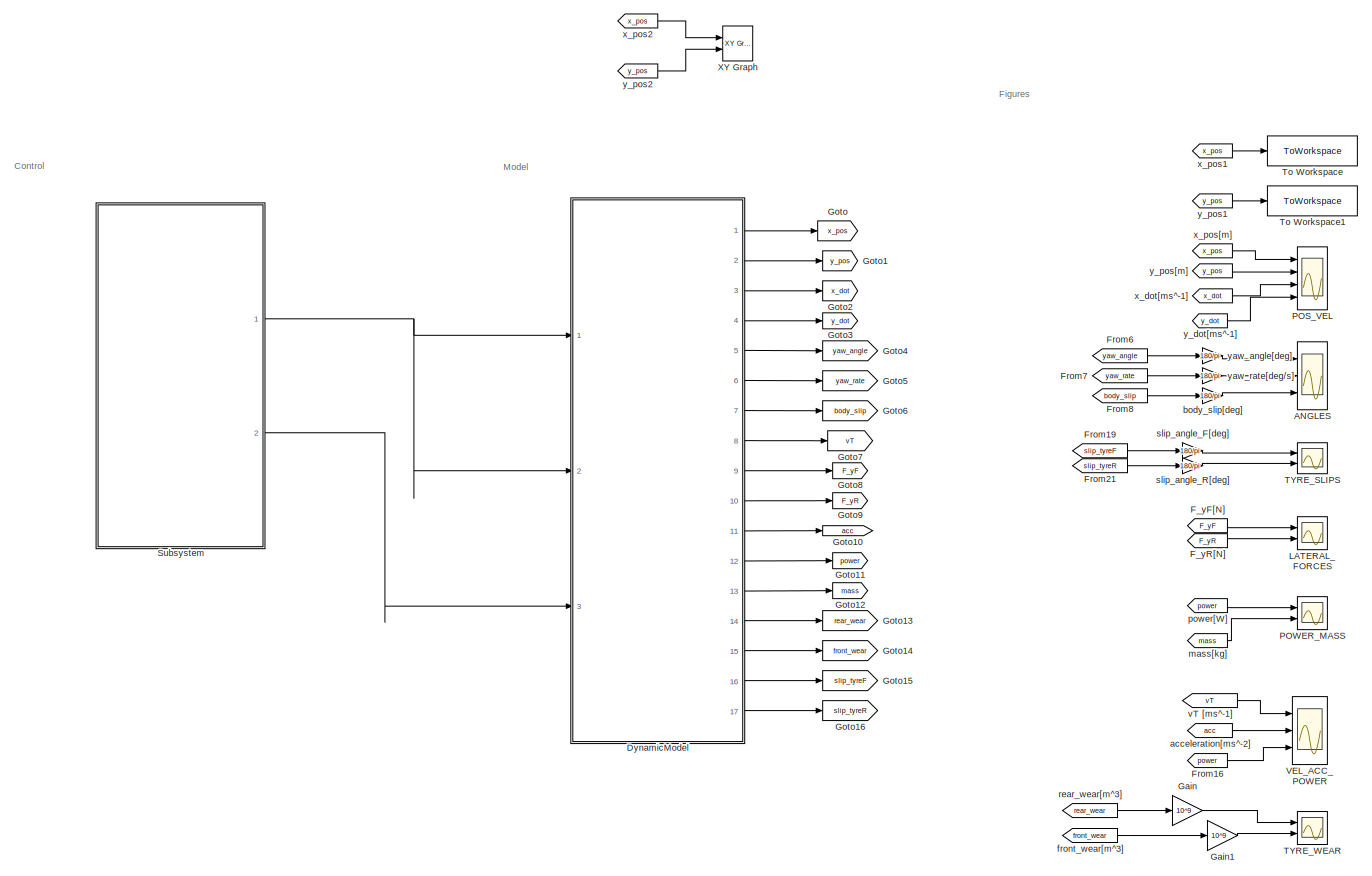
[diagram: root canvas - part 1/1, most of the canvas]
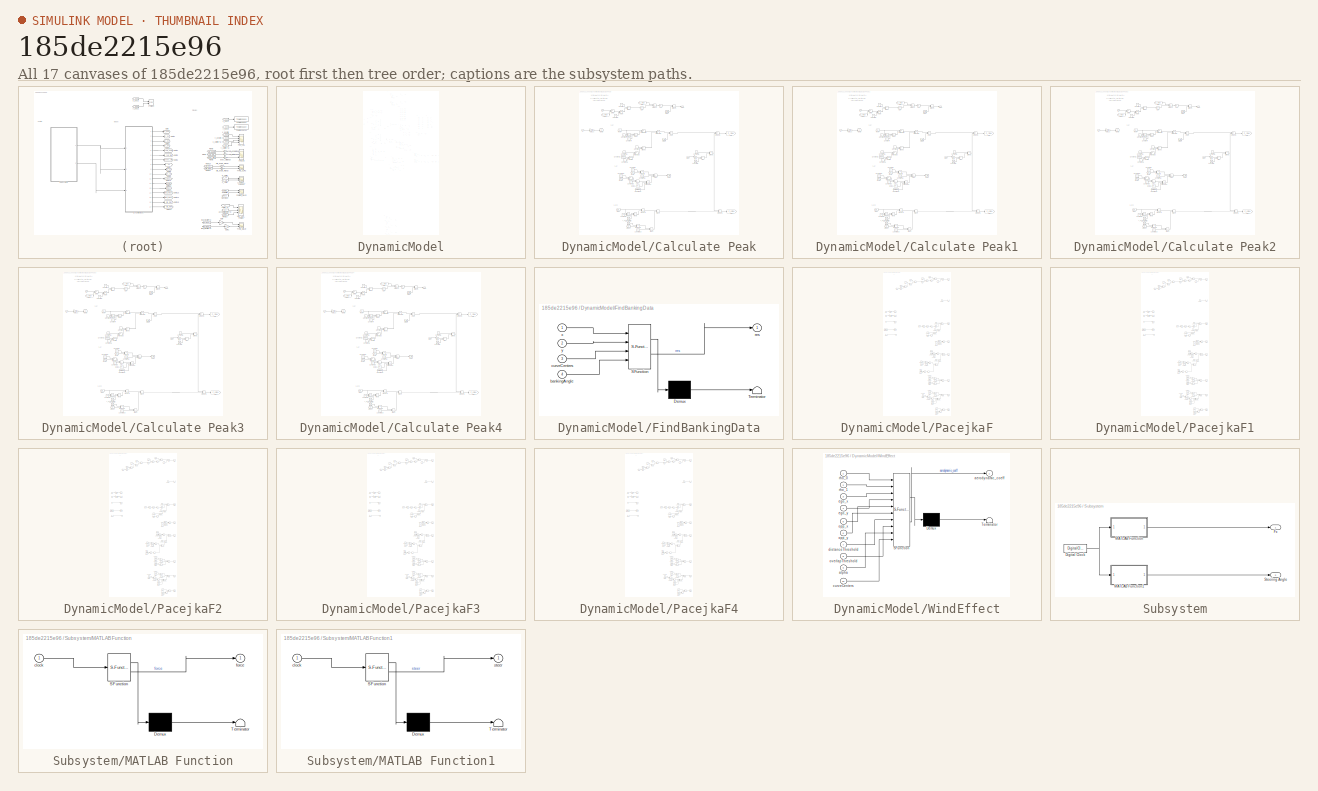
[diagram: thumbnail index - all 17 canvases of the model, root first then tree order]
MODEL slx_185de2215e96
KIND model
CONFIG AbsTol = auto
CONFIG EnableMultiTasking = off
CONFIG FixedStep = auto
CONFIG MaxStep = auto
CONFIG MinStep = auto
CONFIG RelTol = 1e-3
CONFIG SampleTimeConstraint = Unconstrained
CONFIG Solver = VariableStepAuto
CONFIG SolverName = VariableStepAuto
CONFIG StartTime = 0.0
CONFIG StopTime = 80
BLOCK [Scope] ANGLES
  Floating = off
  NumInputPorts = 3
  Ports = [3]
  ScopeSpecificationString = Simulink.scopes.TimeScopeBlockCfg('CurrentConfiguration', extmgr.ConfigurationSet(extmgr.Configuration('Core','General UI',true),extmgr.Configuration('Core','Source UI',true),extmgr.Configuration('Sources','WiredSimulink',true,'DataLoggingVariableName','ScopeData3'),extmgr.Configuration('Visuals','Time Domain',true,'SerializedDisplays',{struct('MinYLimReal','-22.63888','MaxYLimReal','203.74993','Y...<+3107ch>
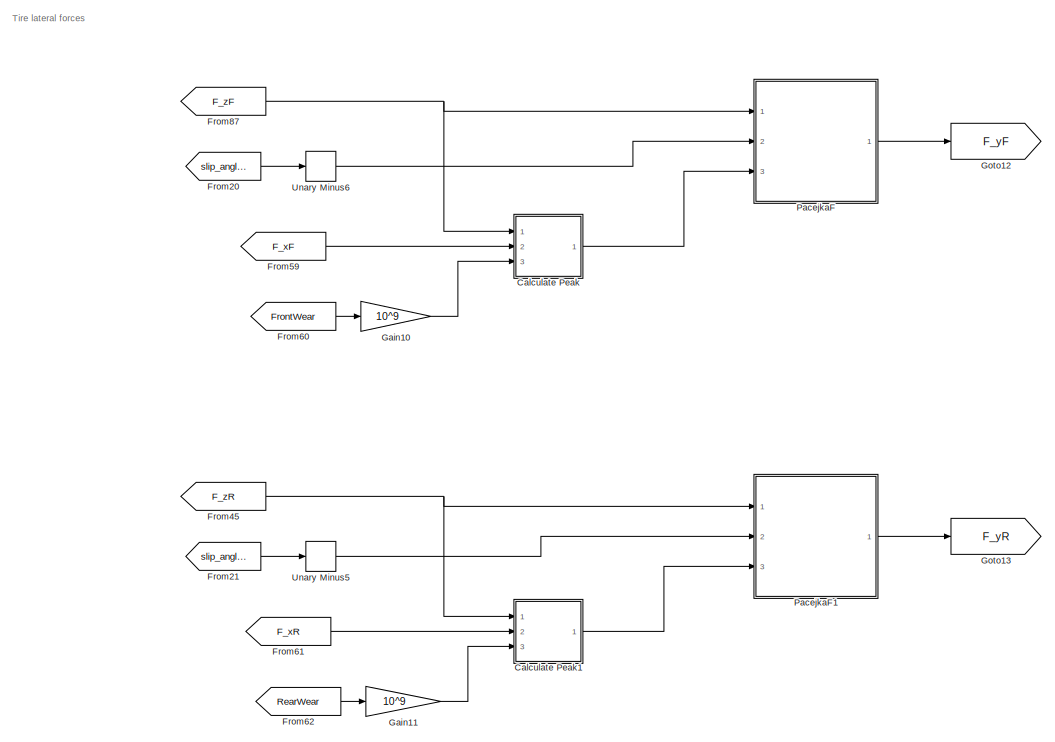
[diagram: DynamicModel - part 1/12, top center region]
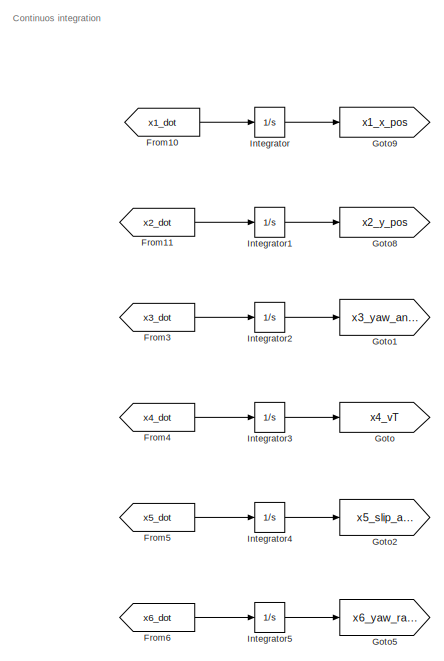
[diagram: DynamicModel - part 2/12, top center region]
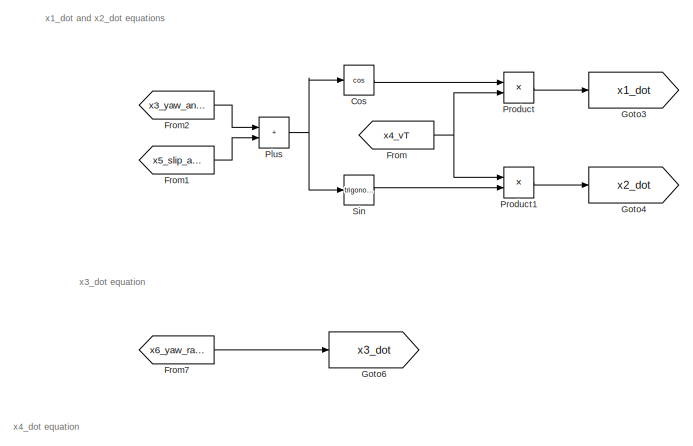
[diagram: DynamicModel - part 3/12, top left region]
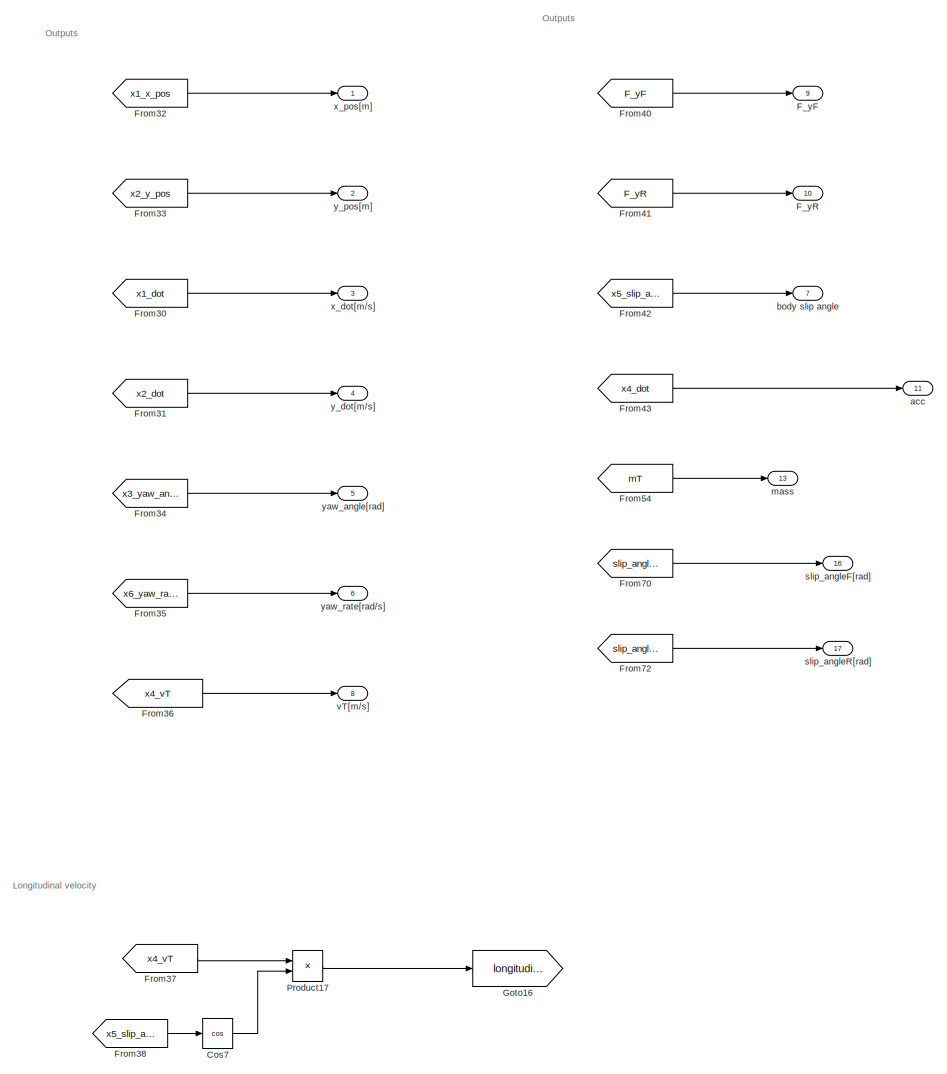
[diagram: DynamicModel - part 4/12, top right region]
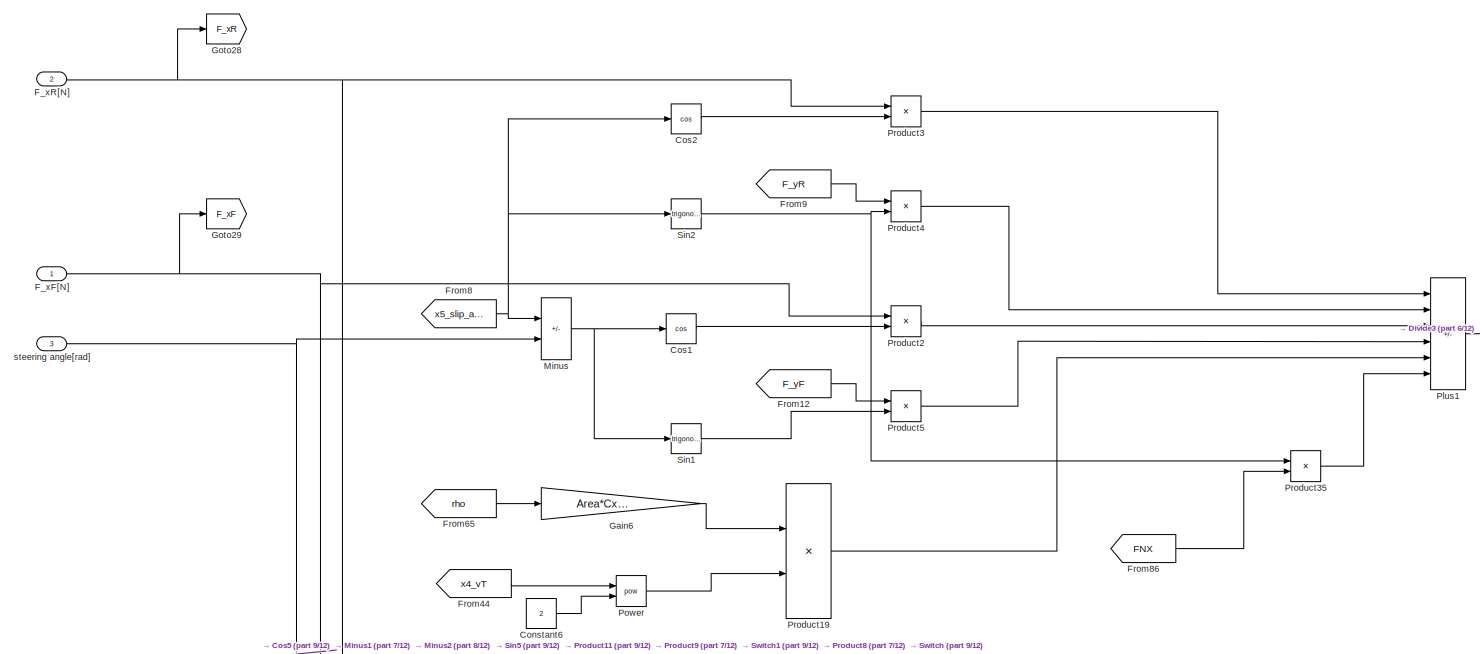
[diagram: DynamicModel - part 5/12, top left region]
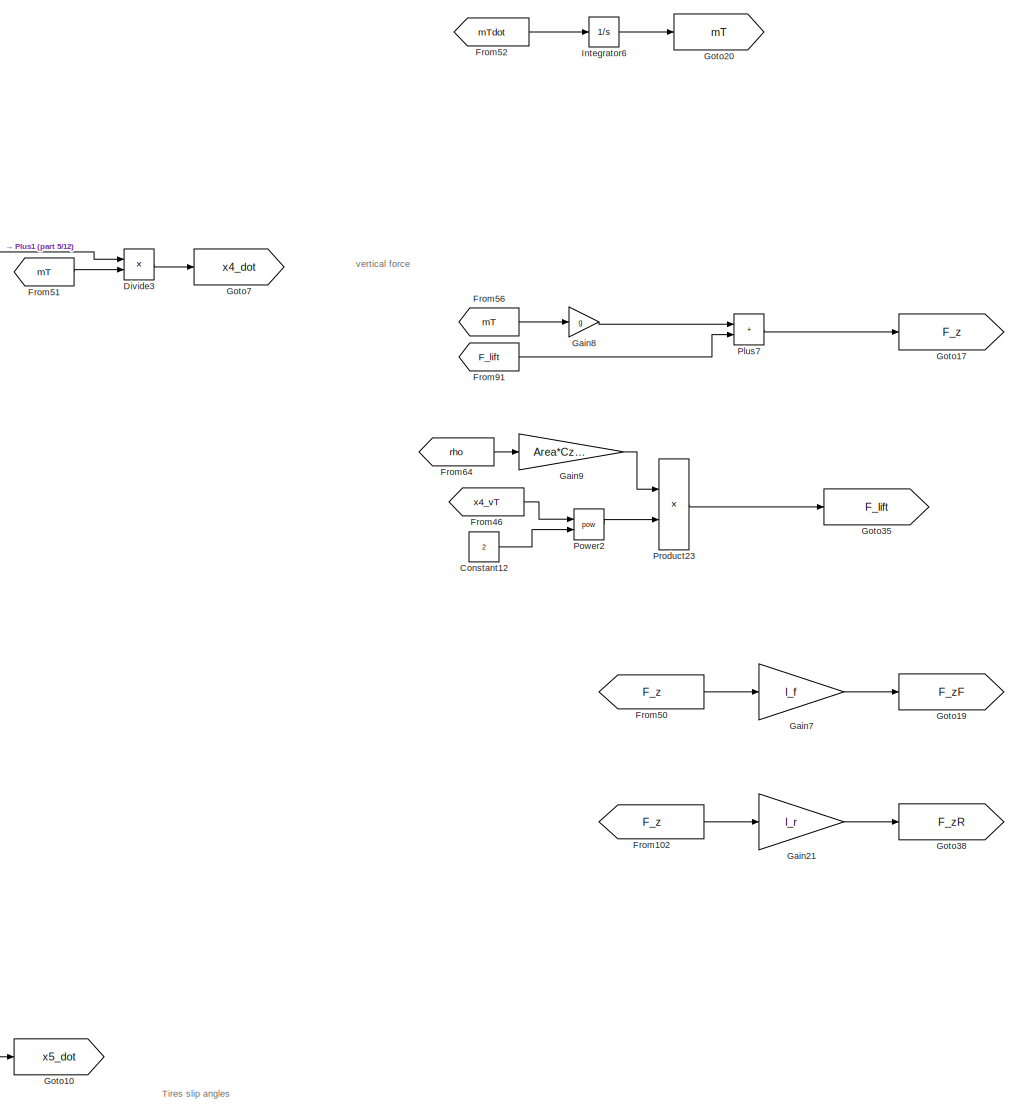
[diagram: DynamicModel - part 6/12, top center region]
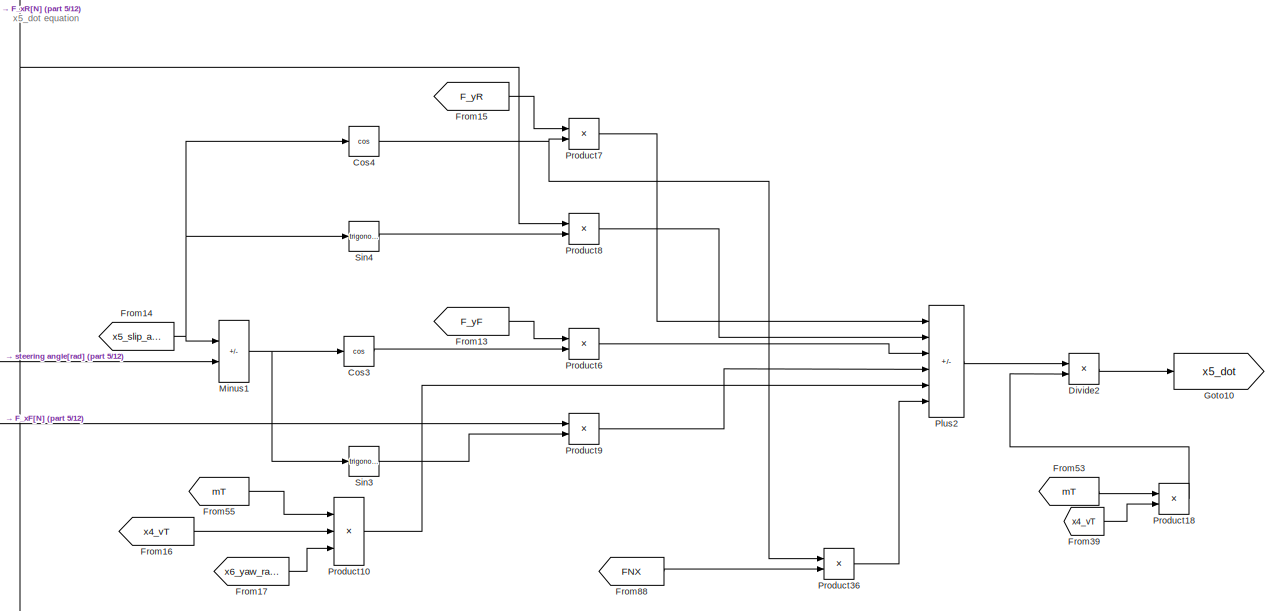
[diagram: DynamicModel - part 7/12, top left region]
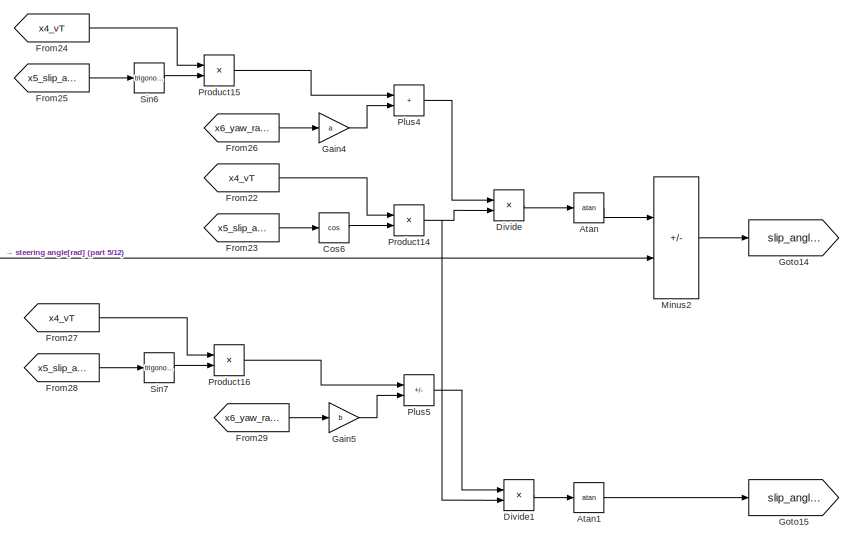
[diagram: DynamicModel - part 8/12, central region]
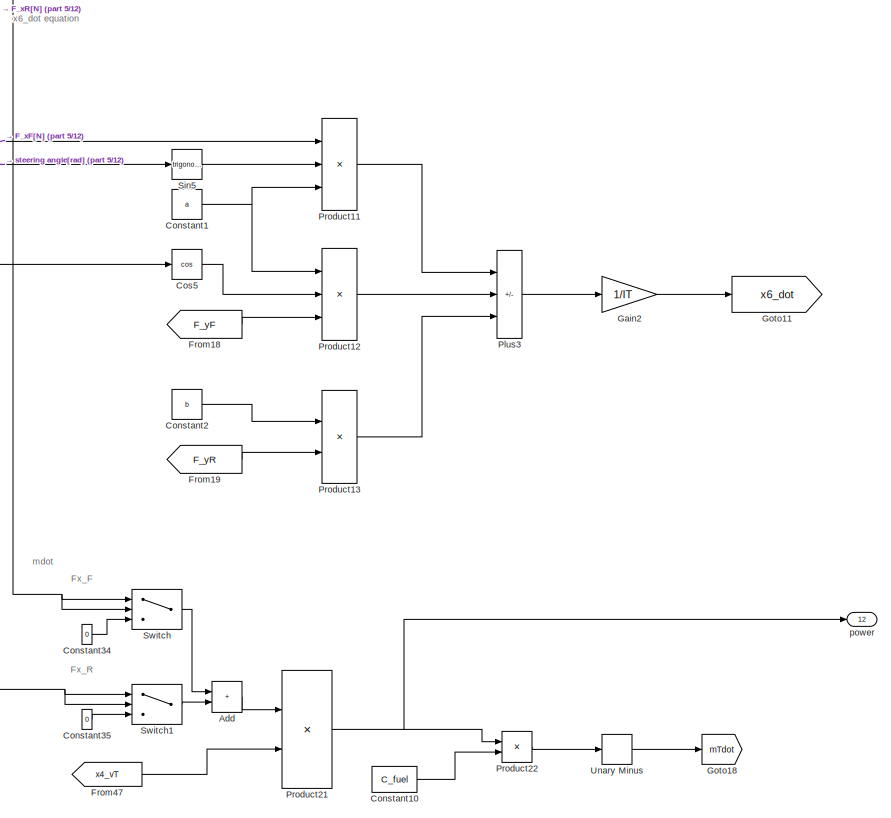
[diagram: DynamicModel - part 9/12, middle left region]
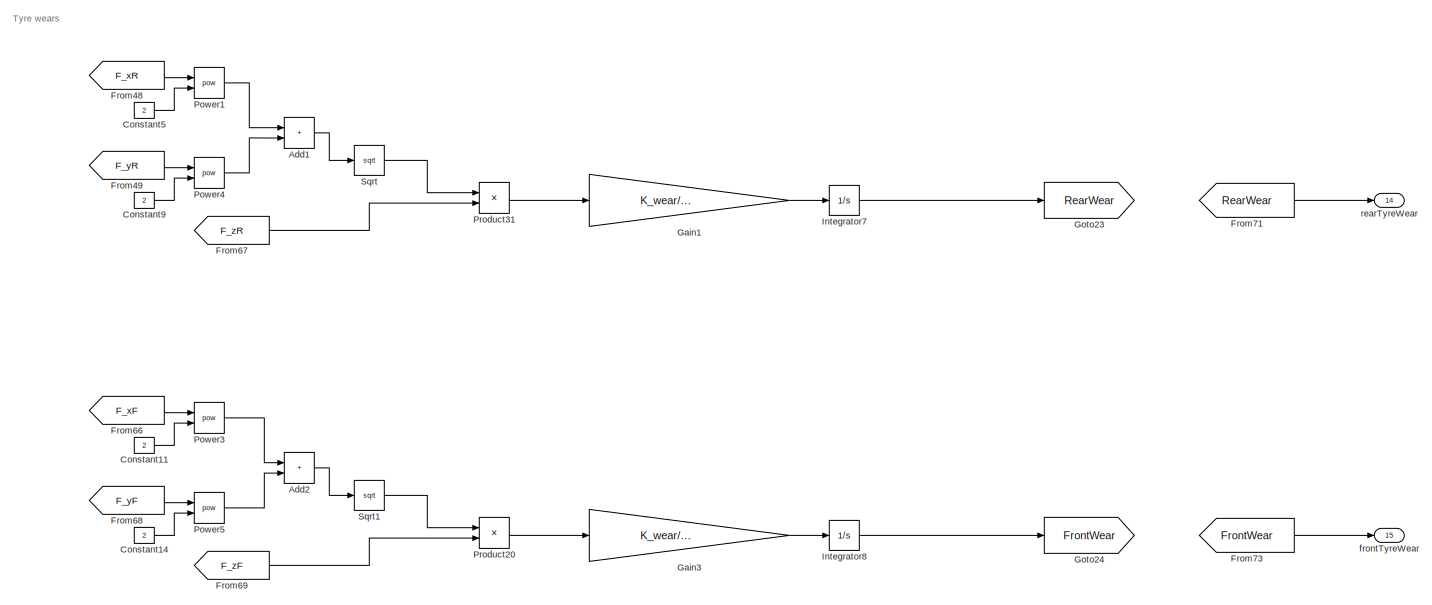
[diagram: DynamicModel - part 10/12, middle right region]
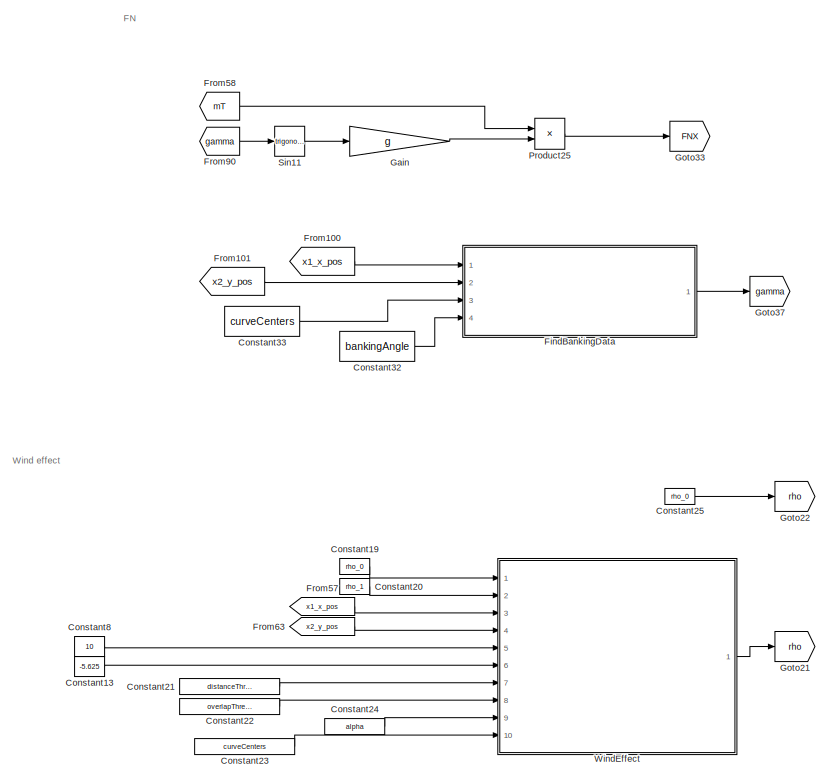
[diagram: DynamicModel - part 11/12, central region]
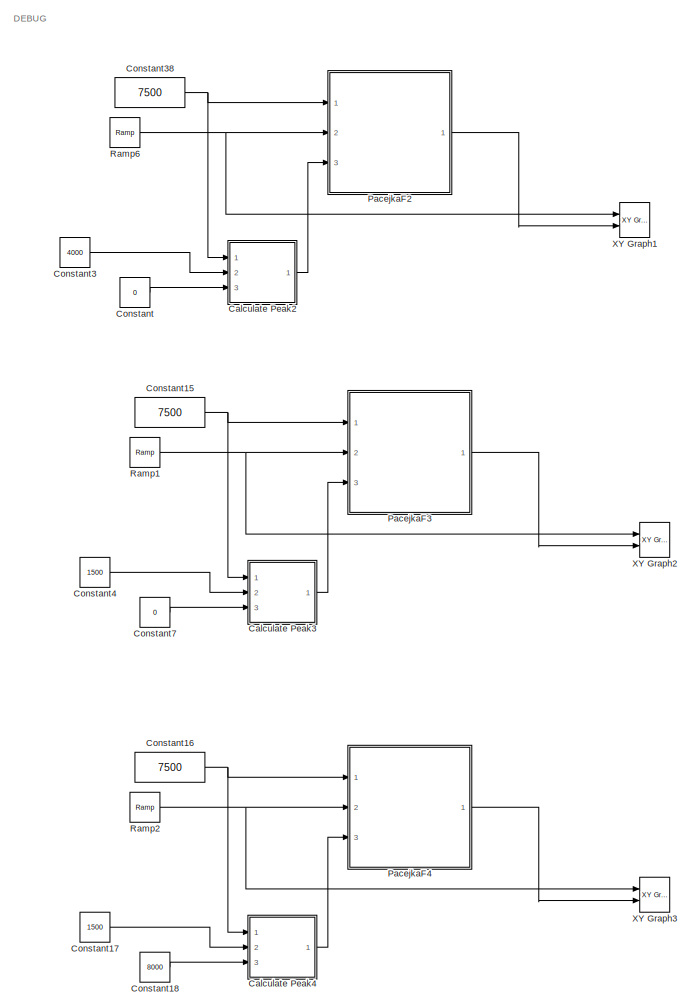
[diagram: DynamicModel - part 12/12, bottom center region]
BLOCK [SubSystem] DynamicModel
  Ports = [3, 17]
  RequestExecContextInheritance = off
BLOCK [Sum] DynamicModel/Add
  IconShape = rectangular
  Ports = [2, 1]
BLOCK [Sum] DynamicModel/Add1
  IconShape = rectangular
  Ports = [2, 1]
BLOCK [Sum] DynamicModel/Add2
  IconShape = rectangular
  Ports = [2, 1]
BLOCK [Trigonometry] DynamicModel/Atan
  Operator = atan
  Ports = [1, 1]
BLOCK [Trigonometry] DynamicModel/Atan1
  Operator = atan
  Ports = [1, 1]
BLOCK [SubSystem] DynamicModel/Calculate Peak
  Ports = [3, 1]
  RequestExecContextInheritance = off
BLOCK [Abs] DynamicModel/Calculate Peak/Abs
  SaturateOnIntegerOverflow = off
BLOCK [Constant] DynamicModel/Calculate Peak/Constant
BLOCK [Constant] DynamicModel/Calculate Peak/Constant1
  Value = 2
BLOCK [Constant] DynamicModel/Calculate Peak/Constant10
  Value = a12
BLOCK [Constant] DynamicModel/Calculate Peak/Constant11
  Value = camber
BLOCK [Constant] DynamicModel/Calculate Peak/Constant15
  Value = a15
BLOCK [Constant] DynamicModel/Calculate Peak/Constant16
  Value = 2
BLOCK [Constant] DynamicModel/Calculate Peak/Constant17
  Value = b11
BLOCK [Constant] DynamicModel/Calculate Peak/Constant18
  Value = b12
BLOCK [Constant] DynamicModel/Calculate Peak/Constant19
  Value = a13
BLOCK [Constant] DynamicModel/Calculate Peak/Constant2
  Value = b1
BLOCK [Constant] DynamicModel/Calculate Peak/Constant20
  Value = a14
BLOCK [Constant] DynamicModel/Calculate Peak/Constant21
  Value = camber
BLOCK [Constant] DynamicModel/Calculate Peak/Constant3
  Value = a1
BLOCK [Constant] DynamicModel/Calculate Peak/Constant4
  Value = a2
BLOCK [Constant] DynamicModel/Calculate Peak/Constant5
  Value = b2
BLOCK [Constant] DynamicModel/Calculate Peak/Constant6
BLOCK [Constant] DynamicModel/Calculate Peak/Constant7
BLOCK [Constant] DynamicModel/Calculate Peak/Constant8
  Value = w2
BLOCK [Constant] DynamicModel/Calculate Peak/Constant9
  Value = a11
BLOCK [Product] DynamicModel/Calculate Peak/Divide
  Inputs = */
  Ports = [2, 1]
BLOCK [Product] DynamicModel/Calculate Peak/Divide1
  Inputs = */
  Ports = [2, 1]
BLOCK [From] DynamicModel/Calculate Peak/From
  GotoTag = F_ymax
BLOCK [From] DynamicModel/Calculate Peak/From1
  GotoTag = F_xmax
BLOCK [From] DynamicModel/Calculate Peak/From2
  GotoTag = Fz
BLOCK [From] DynamicModel/Calculate Peak/From20
  GotoTag = Fz
BLOCK [From] DynamicModel/Calculate Peak/From21
  GotoTag = Fz
BLOCK [From] DynamicModel/Calculate Peak/From22
  GotoTag = Fz
BLOCK [From] DynamicModel/Calculate Peak/From3
  GotoTag = Fz
BLOCK [From] DynamicModel/Calculate Peak/From4
  GotoTag = Fz
BLOCK [From] DynamicModel/Calculate Peak/From5
  GotoTag = V_lat
BLOCK [From] DynamicModel/Calculate Peak/From6
  GotoTag = V_lat
BLOCK [Inport] DynamicModel/Calculate Peak/Fx
  Port = 2
  Unit = N
BLOCK [Inport] DynamicModel/Calculate Peak/Fz
  Unit = N
BLOCK [Gain] DynamicModel/Calculate Peak/Gain
  Gain = w1
BLOCK [Gain] DynamicModel/Calculate Peak/Gain10
  Gain = 10^-3
BLOCK [Goto] DynamicModel/Calculate Peak/Goto
  GotoTag = F_ymax
BLOCK [Goto] DynamicModel/Calculate Peak/Goto1
  GotoTag = F_xmax
BLOCK [Goto] DynamicModel/Calculate Peak/Goto2
  GotoTag = Fz
BLOCK [Goto] DynamicModel/Calculate Peak/Goto3
  GotoTag = V_lat
BLOCK [Sum] DynamicModel/Calculate Peak/Minus
  IconShape = rectangular
  Inputs = +-
  Ports = [2, 1]
BLOCK [Sum] DynamicModel/Calculate Peak/Minus1
  IconShape = rectangular
  Inputs = +-
  Ports = [2, 1]
BLOCK [Sum] DynamicModel/Calculate Peak/Minus3
  IconShape = rectangular
  Inputs = +-
  Ports = [2, 1]
BLOCK [Outport] DynamicModel/Calculate Peak/Peak
BLOCK [Sum] DynamicModel/Calculate Peak/Plus
  IconShape = rectangular
  Ports = [2, 1]
BLOCK [Sum] DynamicModel/Calculate Peak/Plus1
  IconShape = rectangular
  Ports = [2, 1]
BLOCK [Sum] DynamicModel/Calculate Peak/Plus2
  IconShape = rectangular
  Ports = [2, 1]
BLOCK [Sum] DynamicModel/Calculate Peak/Plus3
  IconShape = rectangular
  Ports = [2, 1]
BLOCK [Sum] DynamicModel/Calculate Peak/Plus4
  IconShape = rectangular
  Ports = [2, 1]
BLOCK [Sum] DynamicModel/Calculate Peak/Plus5
  IconShape = rectangular
  Inputs = +++
  Ports = [3, 1]
BLOCK [Sum] DynamicModel/Calculate Peak/Plus6
  IconShape = rectangular
  Ports = [2, 1]
BLOCK [Sum] DynamicModel/Calculate Peak/Plus7
  IconShape = rectangular
  Ports = [2, 1]
BLOCK [Math] DynamicModel/Calculate Peak/Power
  Operator = pow
  Ports = [2, 1]
BLOCK [Math] DynamicModel/Calculate Peak/Power6
  Operator = pow
  Ports = [2, 1]
BLOCK [Product] DynamicModel/Calculate Peak/Product
  Ports = [2, 1]
BLOCK [Product] DynamicModel/Calculate Peak/Product1
  Ports = [2, 1]
BLOCK [Product] DynamicModel/Calculate Peak/Product16
  Ports = [2, 1]
BLOCK [Product] DynamicModel/Calculate Peak/Product17
  Ports = [2, 1]
BLOCK [Product] DynamicModel/Calculate Peak/Product18
  Inputs = 3
  Ports = [3, 1]
BLOCK [Product] DynamicModel/Calculate Peak/Product2
  Ports = [2, 1]
BLOCK [Product] DynamicModel/Calculate Peak/Product26
  Ports = [2, 1]
BLOCK [Product] DynamicModel/Calculate Peak/Product27
  Ports = [2, 1]
BLOCK [Product] DynamicModel/Calculate Peak/Product28
  Ports = [2, 1]
BLOCK [Product] DynamicModel/Calculate Peak/Product29
  Ports = [2, 1]
BLOCK [Product] DynamicModel/Calculate Peak/Product3
  Ports = [2, 1]
BLOCK [Product] DynamicModel/Calculate Peak/Product4
  Ports = [2, 1]
BLOCK [Product] DynamicModel/Calculate Peak/Product5
  Ports = [2, 1]
BLOCK [Sqrt] DynamicModel/Calculate Peak/Sqrt
BLOCK [Inport] DynamicModel/Calculate Peak/Wear
  Port = 3
BLOCK [SubSystem] DynamicModel/Calculate Peak1
  Ports = [3, 1]
  RequestExecContextInheritance = off
BLOCK [Abs] DynamicModel/Calculate Peak1/Abs
  SaturateOnIntegerOverflow = off
BLOCK [Constant] DynamicModel/Calculate Peak1/Constant
BLOCK [Constant] DynamicModel/Calculate Peak1/Constant1
  Value = 2
BLOCK [Constant] DynamicModel/Calculate Peak1/Constant10
  Value = a12
BLOCK [Constant] DynamicModel/Calculate Peak1/Constant11
  Value = camber
BLOCK [Constant] DynamicModel/Calculate Peak1/Constant15
  Value = a15
BLOCK [Constant] DynamicModel/Calculate Peak1/Constant16
  Value = 2
BLOCK [Constant] DynamicModel/Calculate Peak1/Constant17
  Value = b11
BLOCK [Constant] DynamicModel/Calculate Peak1/Constant18
  Value = b12
BLOCK [Constant] DynamicModel/Calculate Peak1/Constant19
  Value = a13
BLOCK [Constant] DynamicModel/Calculate Peak1/Constant2
  Value = b1
BLOCK [Constant] DynamicModel/Calculate Peak1/Constant20
  Value = a14
BLOCK [Constant] DynamicModel/Calculate Peak1/Constant21
  Value = camber
BLOCK [Constant] DynamicModel/Calculate Peak1/Constant3
  Value = a1
BLOCK [Constant] DynamicModel/Calculate Peak1/Constant4
  Value = a2
BLOCK [Constant] DynamicModel/Calculate Peak1/Constant5
  Value = b2
BLOCK [Constant] DynamicModel/Calculate Peak1/Constant6
BLOCK [Constant] DynamicModel/Calculate Peak1/Constant7
BLOCK [Constant] DynamicModel/Calculate Peak1/Constant8
  Value = w2
BLOCK [Constant] DynamicModel/Calculate Peak1/Constant9
  Value = a11
BLOCK [Product] DynamicModel/Calculate Peak1/Divide
  Inputs = */
  Ports = [2, 1]
BLOCK [Product] DynamicModel/Calculate Peak1/Divide1
  Inputs = */
  Ports = [2, 1]
BLOCK [From] DynamicModel/Calculate Peak1/From
  GotoTag = F_ymax
BLOCK [From] DynamicModel/Calculate Peak1/From1
  GotoTag = F_xmax
BLOCK [From] DynamicModel/Calculate Peak1/From2
  GotoTag = Fz
BLOCK [From] DynamicModel/Calculate Peak1/From20
  GotoTag = Fz
BLOCK [From] DynamicModel/Calculate Peak1/From21
  GotoTag = Fz
BLOCK [From] DynamicModel/Calculate Peak1/From22
  GotoTag = Fz
BLOCK [From] DynamicModel/Calculate Peak1/From3
  GotoTag = Fz
BLOCK [From] DynamicModel/Calculate Peak1/From4
  GotoTag = Fz
BLOCK [From] DynamicModel/Calculate Peak1/From5
  GotoTag = V_lat
BLOCK [From] DynamicModel/Calculate Peak1/From6
  GotoTag = V_lat
BLOCK [Inport] DynamicModel/Calculate Peak1/Fx
  Port = 2
  Unit = N
BLOCK [Inport] DynamicModel/Calculate Peak1/Fz
  Unit = N
BLOCK [Gain] DynamicModel/Calculate Peak1/Gain
  Gain = w1
BLOCK [Gain] DynamicModel/Calculate Peak1/Gain10
  Gain = 10^-3
BLOCK [Goto] DynamicModel/Calculate Peak1/Goto
  GotoTag = F_ymax
BLOCK [Goto] DynamicModel/Calculate Peak1/Goto1
  GotoTag = F_xmax
BLOCK [Goto] DynamicModel/Calculate Peak1/Goto2
  GotoTag = Fz
BLOCK [Goto] DynamicModel/Calculate Peak1/Goto3
  GotoTag = V_lat
BLOCK [Sum] DynamicModel/Calculate Peak1/Minus
  IconShape = rectangular
  Inputs = +-
  Ports = [2, 1]
BLOCK [Sum] DynamicModel/Calculate Peak1/Minus1
  IconShape = rectangular
  Inputs = +-
  Ports = [2, 1]
BLOCK [Sum] DynamicModel/Calculate Peak1/Minus3
  IconShape = rectangular
  Inputs = +-
  Ports = [2, 1]
BLOCK [Outport] DynamicModel/Calculate Peak1/Peak
BLOCK [Sum] DynamicModel/Calculate Peak1/Plus
  IconShape = rectangular
  Ports = [2, 1]
BLOCK [Sum] DynamicModel/Calculate Peak1/Plus1
  IconShape = rectangular
  Ports = [2, 1]
BLOCK [Sum] DynamicModel/Calculate Peak1/Plus2
  IconShape = rectangular
  Ports = [2, 1]
BLOCK [Sum] DynamicModel/Calculate Peak1/Plus3
  IconShape = rectangular
  Ports = [2, 1]
BLOCK [Sum] DynamicModel/Calculate Peak1/Plus4
  IconShape = rectangular
  Ports = [2, 1]
BLOCK [Sum] DynamicModel/Calculate Peak1/Plus5
  IconShape = rectangular
  Inputs = +++
  Ports = [3, 1]
BLOCK [Sum] DynamicModel/Calculate Peak1/Plus6
  IconShape = rectangular
  Ports = [2, 1]
BLOCK [Sum] DynamicModel/Calculate Peak1/Plus7
  IconShape = rectangular
  Ports = [2, 1]
BLOCK [Math] DynamicModel/Calculate Peak1/Power
  Operator = pow
  Ports = [2, 1]
BLOCK [Math] DynamicModel/Calculate Peak1/Power6
  Operator = pow
  Ports = [2, 1]
BLOCK [Product] DynamicModel/Calculate Peak1/Product
  Ports = [2, 1]
BLOCK [Product] DynamicModel/Calculate Peak1/Product1
  Ports = [2, 1]
BLOCK [Product] DynamicModel/Calculate Peak1/Product16
  Ports = [2, 1]
BLOCK [Product] DynamicModel/Calculate Peak1/Product17
  Ports = [2, 1]
BLOCK [Product] DynamicModel/Calculate Peak1/Product18
  Inputs = 3
  Ports = [3, 1]
BLOCK [Product] DynamicModel/Calculate Peak1/Product2
  Ports = [2, 1]
BLOCK [Product] DynamicModel/Calculate Peak1/Product26
  Ports = [2, 1]
BLOCK [Product] DynamicModel/Calculate Peak1/Product27
  Ports = [2, 1]
BLOCK [Product] DynamicModel/Calculate Peak1/Product28
  Ports = [2, 1]
BLOCK [Product] DynamicModel/Calculate Peak1/Product29
  Ports = [2, 1]
BLOCK [Product] DynamicModel/Calculate Peak1/Product3
  Ports = [2, 1]
BLOCK [Product] DynamicModel/Calculate Peak1/Product4
  Ports = [2, 1]
BLOCK [Product] DynamicModel/Calculate Peak1/Product5
  Ports = [2, 1]
BLOCK [Sqrt] DynamicModel/Calculate Peak1/Sqrt
BLOCK [Inport] DynamicModel/Calculate Peak1/Wear
  Port = 3
BLOCK [SubSystem] DynamicModel/Calculate Peak2
  Commented = on
  Ports = [3, 1]
  RequestExecContextInheritance = off
BLOCK [Abs] DynamicModel/Calculate Peak2/Abs
  SaturateOnIntegerOverflow = off
BLOCK [Constant] DynamicModel/Calculate Peak2/Constant
BLOCK [Constant] DynamicModel/Calculate Peak2/Constant1
  Value = 2
BLOCK [Constant] DynamicModel/Calculate Peak2/Constant10
  Value = a12
BLOCK [Constant] DynamicModel/Calculate Peak2/Constant11
  Value = camber
BLOCK [Constant] DynamicModel/Calculate Peak2/Constant15
  Value = a15
BLOCK [Constant] DynamicModel/Calculate Peak2/Constant16
  Value = 2
BLOCK [Constant] DynamicModel/Calculate Peak2/Constant17
  Value = b11
BLOCK [Constant] DynamicModel/Calculate Peak2/Constant18
  Value = b12
BLOCK [Constant] DynamicModel/Calculate Peak2/Constant19
  Value = a13
BLOCK [Constant] DynamicModel/Calculate Peak2/Constant2
  Value = b1
BLOCK [Constant] DynamicModel/Calculate Peak2/Constant20
  Value = a14
BLOCK [Constant] DynamicModel/Calculate Peak2/Constant21
  Value = camber
BLOCK [Constant] DynamicModel/Calculate Peak2/Constant3
  Value = a1
BLOCK [Constant] DynamicModel/Calculate Peak2/Constant4
  Value = a2
BLOCK [Constant] DynamicModel/Calculate Peak2/Constant5
  Value = b2
BLOCK [Constant] DynamicModel/Calculate Peak2/Constant6
BLOCK [Constant] DynamicModel/Calculate Peak2/Constant7
BLOCK [Constant] DynamicModel/Calculate Peak2/Constant8
  Value = w2
BLOCK [Constant] DynamicModel/Calculate Peak2/Constant9
  Value = a11
BLOCK [Product] DynamicModel/Calculate Peak2/Divide
  Inputs = */
  Ports = [2, 1]
BLOCK [Product] DynamicModel/Calculate Peak2/Divide1
  Inputs = */
  Ports = [2, 1]
BLOCK [From] DynamicModel/Calculate Peak2/From
  GotoTag = F_ymax
BLOCK [From] DynamicModel/Calculate Peak2/From1
  GotoTag = F_xmax
BLOCK [From] DynamicModel/Calculate Peak2/From2
  GotoTag = Fz
BLOCK [From] DynamicModel/Calculate Peak2/From20
  GotoTag = Fz
BLOCK [From] DynamicModel/Calculate Peak2/From21
  GotoTag = Fz
BLOCK [From] DynamicModel/Calculate Peak2/From22
  GotoTag = Fz
BLOCK [From] DynamicModel/Calculate Peak2/From3
  GotoTag = Fz
BLOCK [From] DynamicModel/Calculate Peak2/From4
  GotoTag = Fz
BLOCK [From] DynamicModel/Calculate Peak2/From5
  GotoTag = V_lat
BLOCK [From] DynamicModel/Calculate Peak2/From6
  GotoTag = V_lat
BLOCK [Inport] DynamicModel/Calculate Peak2/Fx
  Port = 2
  Unit = N
BLOCK [Inport] DynamicModel/Calculate Peak2/Fz
  Unit = N
BLOCK [Gain] DynamicModel/Calculate Peak2/Gain
  Gain = w1
BLOCK [Gain] DynamicModel/Calculate Peak2/Gain10
  Gain = 10^-3
BLOCK [Goto] DynamicModel/Calculate Peak2/Goto
  GotoTag = F_ymax
BLOCK [Goto] DynamicModel/Calculate Peak2/Goto1
  GotoTag = F_xmax
BLOCK [Goto] DynamicModel/Calculate Peak2/Goto2
  GotoTag = Fz
BLOCK [Goto] DynamicModel/Calculate Peak2/Goto3
  GotoTag = V_lat
BLOCK [Sum] DynamicModel/Calculate Peak2/Minus
  IconShape = rectangular
  Inputs = +-
  Ports = [2, 1]
BLOCK [Sum] DynamicModel/Calculate Peak2/Minus1
  IconShape = rectangular
  Inputs = +-
  Ports = [2, 1]
BLOCK [Sum] DynamicModel/Calculate Peak2/Minus3
  IconShape = rectangular
  Inputs = +-
  Ports = [2, 1]
BLOCK [Outport] DynamicModel/Calculate Peak2/Peak
BLOCK [Sum] DynamicModel/Calculate Peak2/Plus
  IconShape = rectangular
  Ports = [2, 1]
BLOCK [Sum] DynamicModel/Calculate Peak2/Plus1
  IconShape = rectangular
  Ports = [2, 1]
BLOCK [Sum] DynamicModel/Calculate Peak2/Plus2
  IconShape = rectangular
  Ports = [2, 1]
BLOCK [Sum] DynamicModel/Calculate Peak2/Plus3
  IconShape = rectangular
  Ports = [2, 1]
BLOCK [Sum] DynamicModel/Calculate Peak2/Plus4
  IconShape = rectangular
  Ports = [2, 1]
BLOCK [Sum] DynamicModel/Calculate Peak2/Plus5
  IconShape = rectangular
  Inputs = +++
  Ports = [3, 1]
BLOCK [Sum] DynamicModel/Calculate Peak2/Plus6
  IconShape = rectangular
  Ports = [2, 1]
BLOCK [Sum] DynamicModel/Calculate Peak2/Plus7
  IconShape = rectangular
  Ports = [2, 1]
BLOCK [Math] DynamicModel/Calculate Peak2/Power
  Operator = pow
  Ports = [2, 1]
BLOCK [Math] DynamicModel/Calculate Peak2/Power6
  Operator = pow
  Ports = [2, 1]
BLOCK [Product] DynamicModel/Calculate Peak2/Product
  Ports = [2, 1]
BLOCK [Product] DynamicModel/Calculate Peak2/Product1
  Ports = [2, 1]
BLOCK [Product] DynamicModel/Calculate Peak2/Product16
  Ports = [2, 1]
BLOCK [Product] DynamicModel/Calculate Peak2/Product17
  Ports = [2, 1]
BLOCK [Product] DynamicModel/Calculate Peak2/Product18
  Inputs = 3
  Ports = [3, 1]
BLOCK [Product] DynamicModel/Calculate Peak2/Product2
  Ports = [2, 1]
BLOCK [Product] DynamicModel/Calculate Peak2/Product26
  Ports = [2, 1]
BLOCK [Product] DynamicModel/Calculate Peak2/Product27
  Ports = [2, 1]
BLOCK [Product] DynamicModel/Calculate Peak2/Product28
  Ports = [2, 1]
BLOCK [Product] DynamicModel/Calculate Peak2/Product29
  Ports = [2, 1]
BLOCK [Product] DynamicModel/Calculate Peak2/Product3
  Ports = [2, 1]
BLOCK [Product] DynamicModel/Calculate Peak2/Product4
  Ports = [2, 1]
BLOCK [Product] DynamicModel/Calculate Peak2/Product5
  Ports = [2, 1]
BLOCK [Sqrt] DynamicModel/Calculate Peak2/Sqrt
BLOCK [Inport] DynamicModel/Calculate Peak2/Wear
  Port = 3
BLOCK [SubSystem] DynamicModel/Calculate Peak3
  Commented = on
  Ports = [3, 1]
  RequestExecContextInheritance = off
BLOCK [Abs] DynamicModel/Calculate Peak3/Abs
  SaturateOnIntegerOverflow = off
BLOCK [Constant] DynamicModel/Calculate Peak3/Constant
BLOCK [Constant] DynamicModel/Calculate Peak3/Constant1
  Value = 2
BLOCK [Constant] DynamicModel/Calculate Peak3/Constant10
  Value = a12
BLOCK [Constant] DynamicModel/Calculate Peak3/Constant11
  Value = camber
BLOCK [Constant] DynamicModel/Calculate Peak3/Constant15
  Value = a15
BLOCK [Constant] DynamicModel/Calculate Peak3/Constant16
  Value = 2
BLOCK [Constant] DynamicModel/Calculate Peak3/Constant17
  Value = b11
BLOCK [Constant] DynamicModel/Calculate Peak3/Constant18
  Value = b12
BLOCK [Constant] DynamicModel/Calculate Peak3/Constant19
  Value = a13
BLOCK [Constant] DynamicModel/Calculate Peak3/Constant2
  Value = b1
BLOCK [Constant] DynamicModel/Calculate Peak3/Constant20
  Value = a14
BLOCK [Constant] DynamicModel/Calculate Peak3/Constant21
  Value = camber
BLOCK [Constant] DynamicModel/Calculate Peak3/Constant3
  Value = a1
BLOCK [Constant] DynamicModel/Calculate Peak3/Constant4
  Value = a2
BLOCK [Constant] DynamicModel/Calculate Peak3/Constant5
  Value = b2
BLOCK [Constant] DynamicModel/Calculate Peak3/Constant6
BLOCK [Constant] DynamicModel/Calculate Peak3/Constant7
BLOCK [Constant] DynamicModel/Calculate Peak3/Constant8
  Value = w2
BLOCK [Constant] DynamicModel/Calculate Peak3/Constant9
  Value = a11
BLOCK [Product] DynamicModel/Calculate Peak3/Divide
  Inputs = */
  Ports = [2, 1]
BLOCK [Product] DynamicModel/Calculate Peak3/Divide1
  Inputs = */
  Ports = [2, 1]
BLOCK [From] DynamicModel/Calculate Peak3/From
  GotoTag = F_ymax
BLOCK [From] DynamicModel/Calculate Peak3/From1
  GotoTag = F_xmax
BLOCK [From] DynamicModel/Calculate Peak3/From2
  GotoTag = Fz
BLOCK [From] DynamicModel/Calculate Peak3/From20
  GotoTag = Fz
BLOCK [From] DynamicModel/Calculate Peak3/From21
  GotoTag = Fz
BLOCK [From] DynamicModel/Calculate Peak3/From22
  GotoTag = Fz
BLOCK [From] DynamicModel/Calculate Peak3/From3
  GotoTag = Fz
BLOCK [From] DynamicModel/Calculate Peak3/From4
  GotoTag = Fz
BLOCK [From] DynamicModel/Calculate Peak3/From5
  GotoTag = V_lat
BLOCK [From] DynamicModel/Calculate Peak3/From6
  GotoTag = V_lat
BLOCK [Inport] DynamicModel/Calculate Peak3/Fx
  Port = 2
  Unit = N
BLOCK [Inport] DynamicModel/Calculate Peak3/Fz
  Unit = N
BLOCK [Gain] DynamicModel/Calculate Peak3/Gain
  Gain = w1
BLOCK [Gain] DynamicModel/Calculate Peak3/Gain10
  Gain = 10^-3
BLOCK [Goto] DynamicModel/Calculate Peak3/Goto
  GotoTag = F_ymax
BLOCK [Goto] DynamicModel/Calculate Peak3/Goto1
  GotoTag = F_xmax
BLOCK [Goto] DynamicModel/Calculate Peak3/Goto2
  GotoTag = Fz
BLOCK [Goto] DynamicModel/Calculate Peak3/Goto3
  GotoTag = V_lat
BLOCK [Sum] DynamicModel/Calculate Peak3/Minus
  IconShape = rectangular
  Inputs = +-
  Ports = [2, 1]
BLOCK [Sum] DynamicModel/Calculate Peak3/Minus1
  IconShape = rectangular
  Inputs = +-
  Ports = [2, 1]
BLOCK [Sum] DynamicModel/Calculate Peak3/Minus3
  IconShape = rectangular
  Inputs = +-
  Ports = [2, 1]
BLOCK [Outport] DynamicModel/Calculate Peak3/Peak
BLOCK [Sum] DynamicModel/Calculate Peak3/Plus
  IconShape = rectangular
  Ports = [2, 1]
BLOCK [Sum] DynamicModel/Calculate Peak3/Plus1
  IconShape = rectangular
  Ports = [2, 1]
BLOCK [Sum] DynamicModel/Calculate Peak3/Plus2
  IconShape = rectangular
  Ports = [2, 1]
BLOCK [Sum] DynamicModel/Calculate Peak3/Plus3
  IconShape = rectangular
  Ports = [2, 1]
BLOCK [Sum] DynamicModel/Calculate Peak3/Plus4
  IconShape = rectangular
  Ports = [2, 1]
BLOCK [Sum] DynamicModel/Calculate Peak3/Plus5
  IconShape = rectangular
  Inputs = +++
  Ports = [3, 1]
BLOCK [Sum] DynamicModel/Calculate Peak3/Plus6
  IconShape = rectangular
  Ports = [2, 1]
BLOCK [Sum] DynamicModel/Calculate Peak3/Plus7
  IconShape = rectangular
  Ports = [2, 1]
BLOCK [Math] DynamicModel/Calculate Peak3/Power
  Operator = pow
  Ports = [2, 1]
BLOCK [Math] DynamicModel/Calculate Peak3/Power6
  Operator = pow
  Ports = [2, 1]
BLOCK [Product] DynamicModel/Calculate Peak3/Product
  Ports = [2, 1]
BLOCK [Product] DynamicModel/Calculate Peak3/Product1
  Ports = [2, 1]
BLOCK [Product] DynamicModel/Calculate Peak3/Product16
  Ports = [2, 1]
BLOCK [Product] DynamicModel/Calculate Peak3/Product17
  Ports = [2, 1]
BLOCK [Product] DynamicModel/Calculate Peak3/Product18
  Inputs = 3
  Ports = [3, 1]
BLOCK [Product] DynamicModel/Calculate Peak3/Product2
  Ports = [2, 1]
BLOCK [Product] DynamicModel/Calculate Peak3/Product26
  Ports = [2, 1]
BLOCK [Product] DynamicModel/Calculate Peak3/Product27
  Ports = [2, 1]
BLOCK [Product] DynamicModel/Calculate Peak3/Product28
  Ports = [2, 1]
BLOCK [Product] DynamicModel/Calculate Peak3/Product29
  Ports = [2, 1]
BLOCK [Product] DynamicModel/Calculate Peak3/Product3
  Ports = [2, 1]
BLOCK [Product] DynamicModel/Calculate Peak3/Product4
  Ports = [2, 1]
BLOCK [Product] DynamicModel/Calculate Peak3/Product5
  Ports = [2, 1]
BLOCK [Sqrt] DynamicModel/Calculate Peak3/Sqrt
BLOCK [Inport] DynamicModel/Calculate Peak3/Wear
  Port = 3
BLOCK [SubSystem] DynamicModel/Calculate Peak4
  Commented = on
  Ports = [3, 1]
  RequestExecContextInheritance = off
BLOCK [Abs] DynamicModel/Calculate Peak4/Abs
  SaturateOnIntegerOverflow = off
BLOCK [Constant] DynamicModel/Calculate Peak4/Constant
BLOCK [Constant] DynamicModel/Calculate Peak4/Constant1
  Value = 2
BLOCK [Constant] DynamicModel/Calculate Peak4/Constant10
  Value = a12
BLOCK [Constant] DynamicModel/Calculate Peak4/Constant11
  Value = camber
BLOCK [Constant] DynamicModel/Calculate Peak4/Constant15
  Value = a15
BLOCK [Constant] DynamicModel/Calculate Peak4/Constant16
  Value = 2
BLOCK [Constant] DynamicModel/Calculate Peak4/Constant17
  Value = b11
BLOCK [Constant] DynamicModel/Calculate Peak4/Constant18
  Value = b12
BLOCK [Constant] DynamicModel/Calculate Peak4/Constant19
  Value = a13
BLOCK [Constant] DynamicModel/Calculate Peak4/Constant2
  Value = b1
BLOCK [Constant] DynamicModel/Calculate Peak4/Constant20
  Value = a14
BLOCK [Constant] DynamicModel/Calculate Peak4/Constant21
  Value = camber
BLOCK [Constant] DynamicModel/Calculate Peak4/Constant3
  Value = a1
BLOCK [Constant] DynamicModel/Calculate Peak4/Constant4
  Value = a2
BLOCK [Constant] DynamicModel/Calculate Peak4/Constant5
  Value = b2
BLOCK [Constant] DynamicModel/Calculate Peak4/Constant6
BLOCK [Constant] DynamicModel/Calculate Peak4/Constant7
BLOCK [Constant] DynamicModel/Calculate Peak4/Constant8
  Value = w2
BLOCK [Constant] DynamicModel/Calculate Peak4/Constant9
  Value = a11
BLOCK [Product] DynamicModel/Calculate Peak4/Divide
  Inputs = */
  Ports = [2, 1]
BLOCK [Product] DynamicModel/Calculate Peak4/Divide1
  Inputs = */
  Ports = [2, 1]
BLOCK [From] DynamicModel/Calculate Peak4/From
  GotoTag = F_ymax
BLOCK [From] DynamicModel/Calculate Peak4/From1
  GotoTag = F_xmax
BLOCK [From] DynamicModel/Calculate Peak4/From2
  GotoTag = Fz
BLOCK [From] DynamicModel/Calculate Peak4/From20
  GotoTag = Fz
BLOCK [From] DynamicModel/Calculate Peak4/From21
  GotoTag = Fz
BLOCK [From] DynamicModel/Calculate Peak4/From22
  GotoTag = Fz
BLOCK [From] DynamicModel/Calculate Peak4/From3
  GotoTag = Fz
BLOCK [From] DynamicModel/Calculate Peak4/From4
  GotoTag = Fz
BLOCK [From] DynamicModel/Calculate Peak4/From5
  GotoTag = V_lat
BLOCK [From] DynamicModel/Calculate Peak4/From6
  GotoTag = V_lat
BLOCK [Inport] DynamicModel/Calculate Peak4/Fx
  Port = 2
  Unit = N
BLOCK [Inport] DynamicModel/Calculate Peak4/Fz
  Unit = N
BLOCK [Gain] DynamicModel/Calculate Peak4/Gain
  Gain = w1
BLOCK [Gain] DynamicModel/Calculate Peak4/Gain10
  Gain = 10^-3
BLOCK [Goto] DynamicModel/Calculate Peak4/Goto
  GotoTag = F_ymax
BLOCK [Goto] DynamicModel/Calculate Peak4/Goto1
  GotoTag = F_xmax
BLOCK [Goto] DynamicModel/Calculate Peak4/Goto2
  GotoTag = Fz
BLOCK [Goto] DynamicModel/Calculate Peak4/Goto3
  GotoTag = V_lat
BLOCK [Sum] DynamicModel/Calculate Peak4/Minus
  IconShape = rectangular
  Inputs = +-
  Ports = [2, 1]
BLOCK [Sum] DynamicModel/Calculate Peak4/Minus1
  IconShape = rectangular
  Inputs = +-
  Ports = [2, 1]
BLOCK [Sum] DynamicModel/Calculate Peak4/Minus3
  IconShape = rectangular
  Inputs = +-
  Ports = [2, 1]
BLOCK [Outport] DynamicModel/Calculate Peak4/Peak
BLOCK [Sum] DynamicModel/Calculate Peak4/Plus
  IconShape = rectangular
  Ports = [2, 1]
BLOCK [Sum] DynamicModel/Calculate Peak4/Plus1
  IconShape = rectangular
  Ports = [2, 1]
BLOCK [Sum] DynamicModel/Calculate Peak4/Plus2
  IconShape = rectangular
  Ports = [2, 1]
BLOCK [Sum] DynamicModel/Calculate Peak4/Plus3
  IconShape = rectangular
  Ports = [2, 1]
BLOCK [Sum] DynamicModel/Calculate Peak4/Plus4
  IconShape = rectangular
  Ports = [2, 1]
BLOCK [Sum] DynamicModel/Calculate Peak4/Plus5
  IconShape = rectangular
  Inputs = +++
  Ports = [3, 1]
BLOCK [Sum] DynamicModel/Calculate Peak4/Plus6
  IconShape = rectangular
  Ports = [2, 1]
BLOCK [Sum] DynamicModel/Calculate Peak4/Plus7
  IconShape = rectangular
  Ports = [2, 1]
BLOCK [Math] DynamicModel/Calculate Peak4/Power
  Operator = pow
  Ports = [2, 1]
BLOCK [Math] DynamicModel/Calculate Peak4/Power6
  Operator = pow
  Ports = [2, 1]
BLOCK [Product] DynamicModel/Calculate Peak4/Product
  Ports = [2, 1]
BLOCK [Product] DynamicModel/Calculate Peak4/Product1
  Ports = [2, 1]
BLOCK [Product] DynamicModel/Calculate Peak4/Product16
  Ports = [2, 1]
BLOCK [Product] DynamicModel/Calculate Peak4/Product17
  Ports = [2, 1]
BLOCK [Product] DynamicModel/Calculate Peak4/Product18
  Inputs = 3
  Ports = [3, 1]
BLOCK [Product] DynamicModel/Calculate Peak4/Product2
  Ports = [2, 1]
BLOCK [Product] DynamicModel/Calculate Peak4/Product26
  Ports = [2, 1]
BLOCK [Product] DynamicModel/Calculate Peak4/Product27
  Ports = [2, 1]
BLOCK [Product] DynamicModel/Calculate Peak4/Product28
  Ports = [2, 1]
BLOCK [Product] DynamicModel/Calculate Peak4/Product29
  Ports = [2, 1]
BLOCK [Product] DynamicModel/Calculate Peak4/Product3
  Ports = [2, 1]
BLOCK [Product] DynamicModel/Calculate Peak4/Product4
  Ports = [2, 1]
BLOCK [Product] DynamicModel/Calculate Peak4/Product5
  Ports = [2, 1]
BLOCK [Sqrt] DynamicModel/Calculate Peak4/Sqrt
BLOCK [Inport] DynamicModel/Calculate Peak4/Wear
  Port = 3
BLOCK [Constant] DynamicModel/Constant
  Commented = on
  Value = 0
BLOCK [Constant] DynamicModel/Constant1
  Value = a
BLOCK [Constant] DynamicModel/Constant10
  Value = C_fuel
BLOCK [Constant] DynamicModel/Constant11
  Value = 2
BLOCK [Constant] DynamicModel/Constant12
  Value = 2
BLOCK [Constant] DynamicModel/Constant13
  Value = -5.625
BLOCK [Constant] DynamicModel/Constant14
  Value = 2
BLOCK [Constant] DynamicModel/Constant15
  Commented = on
  Value = 7500
BLOCK [Constant] DynamicModel/Constant16
  Commented = on
  Value = 7500
BLOCK [Constant] DynamicModel/Constant17
  Commented = on
  Value = 1500
BLOCK [Constant] DynamicModel/Constant18
  Commented = on
  Value = 8000
BLOCK [Constant] DynamicModel/Constant19
  Value = rho_0
BLOCK [Constant] DynamicModel/Constant2
  Value = b
BLOCK [Constant] DynamicModel/Constant20
  Value = rho_1
BLOCK [Constant] DynamicModel/Constant21
  Value = distanceThreshold
BLOCK [Constant] DynamicModel/Constant22
  Value = overlapThreshold
BLOCK [Constant] DynamicModel/Constant23
  Value = curveCenters
BLOCK [Constant] DynamicModel/Constant24
  Value = alpha
BLOCK [Constant] DynamicModel/Constant25
  Commented = on
  Value = rho_0
BLOCK [Constant] DynamicModel/Constant3
  Commented = on
  Value = 4000
BLOCK [Constant] DynamicModel/Constant32
  Value = bankingAngle
BLOCK [Constant] DynamicModel/Constant33
  Value = curveCenters
BLOCK [Constant] DynamicModel/Constant34
  Value = 0
BLOCK [Constant] DynamicModel/Constant35
  Value = 0
BLOCK [Constant] DynamicModel/Constant38
  Commented = on
  Value = 7500
BLOCK [Constant] DynamicModel/Constant4
  Commented = on
  Value = 1500
BLOCK [Constant] DynamicModel/Constant5
  Value = 2
BLOCK [Constant] DynamicModel/Constant6
  Value = 2
BLOCK [Constant] DynamicModel/Constant7
  Commented = on
  Value = 0
BLOCK [Constant] DynamicModel/Constant8
  Value = 10
BLOCK [Constant] DynamicModel/Constant9
  Value = 2
BLOCK [Trigonometry] DynamicModel/Cos
  Operator = cos
  Ports = [1, 1]
BLOCK [Trigonometry] DynamicModel/Cos1
  Operator = cos
  Ports = [1, 1]
BLOCK [Trigonometry] DynamicModel/Cos2
  Operator = cos
  Ports = [1, 1]
BLOCK [Trigonometry] DynamicModel/Cos3
  Operator = cos
  Ports = [1, 1]
BLOCK [Trigonometry] DynamicModel/Cos4
  Operator = cos
  Ports = [1, 1]
BLOCK [Trigonometry] DynamicModel/Cos5
  Operator = cos
  Ports = [1, 1]
BLOCK [Trigonometry] DynamicModel/Cos6
  Operator = cos
  Ports = [1, 1]
BLOCK [Trigonometry] DynamicModel/Cos7
  Commented = on
  Operator = cos
  Ports = [1, 1]
BLOCK [Product] DynamicModel/Divide
  Inputs = */
  Ports = [2, 1]
BLOCK [Product] DynamicModel/Divide1
  Inputs = */
  Ports = [2, 1]
BLOCK [Product] DynamicModel/Divide2
  Inputs = */
  Ports = [2, 1]
BLOCK [Product] DynamicModel/Divide3
  Inputs = */
  Ports = [2, 1]
BLOCK [Inport] DynamicModel/F_xF[N]
  Unit = N
BLOCK [Inport] DynamicModel/F_xR[N]
  Port = 2
  Unit = N
BLOCK [Outport] DynamicModel/F_yF
  Port = 9
  Unit = N
BLOCK [Outport] DynamicModel/F_yR
  Port = 10
  Unit = N
BLOCK [SubSystem] DynamicModel/FindBankingData
  ErrorFcn = Stateflow.Translate.translate
  PermitHierarchicalResolution = ExplicitOnly
  Ports = [4, 1]
  RequestExecContextInheritance = off
  SFBlockType = MATLAB Function
  TreatAsAtomicUnit = on
BLOCK [Demux] DynamicModel/FindBankingData/ Demux 
  Outputs = 1
  Ports = [1, 1]
BLOCK [S-Function] DynamicModel/FindBankingData/ SFunction 
  EnableBusSupport = on
  FunctionName = sf_sfun
  PortCounts = [4 2]
  Ports = [4, 2]
  SFcnIsStateOwnerBlock = off
  SFunctionDeploymentMode = off
  Tag = Stateflow S-Function 4
BLOCK [Terminator] DynamicModel/FindBankingData/ Terminator 
BLOCK [Inport] DynamicModel/FindBankingData/bankingAngle
  Port = 4
BLOCK [Inport] DynamicModel/FindBankingData/curveCenters
  Port = 3
BLOCK [Outport] DynamicModel/FindBankingData/res
BLOCK [Inport] DynamicModel/FindBankingData/x
BLOCK [Inport] DynamicModel/FindBankingData/y
  Port = 2
BLOCK [From] DynamicModel/From
  GotoTag = x4_vT
BLOCK [From] DynamicModel/From1
  GotoTag = x5_slip_angle
BLOCK [From] DynamicModel/From10
  GotoTag = x1_dot
BLOCK [From] DynamicModel/From100
  GotoTag = x1_x_pos
BLOCK [From] DynamicModel/From101
  GotoTag = x2_y_pos
BLOCK [From] DynamicModel/From102
  GotoTag = F_z
BLOCK [From] DynamicModel/From11
  GotoTag = x2_dot
BLOCK [From] DynamicModel/From12
  GotoTag = F_yF
BLOCK [From] DynamicModel/From13
  GotoTag = F_yF
BLOCK [From] DynamicModel/From14
  GotoTag = x5_slip_angle
BLOCK [From] DynamicModel/From15
  GotoTag = F_yR
BLOCK [From] DynamicModel/From16
  GotoTag = x4_vT
BLOCK [From] DynamicModel/From17
  GotoTag = x6_yaw_rate
BLOCK [From] DynamicModel/From18
  GotoTag = F_yF
BLOCK [From] DynamicModel/From19
  GotoTag = F_yR
BLOCK [From] DynamicModel/From2
  GotoTag = x3_yaw_angle
BLOCK [From] DynamicModel/From20
  GotoTag = slip_angle_F
BLOCK [From] DynamicModel/From21
  GotoTag = slip_angle_R
BLOCK [From] DynamicModel/From22
  GotoTag = x4_vT
BLOCK [From] DynamicModel/From23
  GotoTag = x5_slip_angle
BLOCK [From] DynamicModel/From24
  GotoTag = x4_vT
BLOCK [From] DynamicModel/From25
  GotoTag = x5_slip_angle
BLOCK [From] DynamicModel/From26
  GotoTag = x6_yaw_rate
BLOCK [From] DynamicModel/From27
  GotoTag = x4_vT
BLOCK [From] DynamicModel/From28
  GotoTag = x5_slip_angle
BLOCK [From] DynamicModel/From29
  GotoTag = x6_yaw_rate
BLOCK [From] DynamicModel/From3
  GotoTag = x3_dot
BLOCK [From] DynamicModel/From30
  GotoTag = x1_dot
BLOCK [From] DynamicModel/From31
  GotoTag = x2_dot
BLOCK [From] DynamicModel/From32
  GotoTag = x1_x_pos
BLOCK [From] DynamicModel/From33
  GotoTag = x2_y_pos
BLOCK [From] DynamicModel/From34
  GotoTag = x3_yaw_angle
BLOCK [From] DynamicModel/From35
  GotoTag = x6_yaw_rate
BLOCK [From] DynamicModel/From36
  GotoTag = x4_vT
BLOCK [From] DynamicModel/From37
  Commented = on
  GotoTag = x4_vT
BLOCK [From] DynamicModel/From38
  Commented = on
  GotoTag = x5_slip_angle
BLOCK [From] DynamicModel/From39
  GotoTag = x4_vT
BLOCK [From] DynamicModel/From4
  GotoTag = x4_dot
BLOCK [From] DynamicModel/From40
  GotoTag = F_yF
BLOCK [From] DynamicModel/From41
  GotoTag = F_yR
BLOCK [From] DynamicModel/From42
  GotoTag = x5_slip_angle
BLOCK [From] DynamicModel/From43
  GotoTag = x4_dot
BLOCK [From] DynamicModel/From44
  GotoTag = x4_vT
BLOCK [From] DynamicModel/From45
  GotoTag = F_zR
BLOCK [From] DynamicModel/From46
  GotoTag = x4_vT
BLOCK [From] DynamicModel/From47
  GotoTag = x4_vT
BLOCK [From] DynamicModel/From48
  GotoTag = F_xR
BLOCK [From] DynamicModel/From49
  GotoTag = F_yR
BLOCK [From] DynamicModel/From5
  GotoTag = x5_dot
BLOCK [From] DynamicModel/From50
  GotoTag = F_z
BLOCK [From] DynamicModel/From51
  GotoTag = mT
BLOCK [From] DynamicModel/From52
  GotoTag = mTdot
BLOCK [From] DynamicModel/From53
  GotoTag = mT
BLOCK [From] DynamicModel/From54
  GotoTag = mT
BLOCK [From] DynamicModel/From55
  GotoTag = mT
BLOCK [From] DynamicModel/From56
  GotoTag = mT
BLOCK [From] DynamicModel/From57
  GotoTag = x1_x_pos
BLOCK [From] DynamicModel/From58
  GotoTag = mT
BLOCK [From] DynamicModel/From59
  GotoTag = F_xF
BLOCK [From] DynamicModel/From6
  GotoTag = x6_dot
BLOCK [From] DynamicModel/From60
  GotoTag = FrontWear
BLOCK [From] DynamicModel/From61
  GotoTag = F_xR
BLOCK [From] DynamicModel/From62
  GotoTag = RearWear
BLOCK [From] DynamicModel/From63
  GotoTag = x2_y_pos
BLOCK [From] DynamicModel/From64
  GotoTag = rho
BLOCK [From] DynamicModel/From65
  GotoTag = rho
BLOCK [From] DynamicModel/From66
  GotoTag = F_xF
BLOCK [From] DynamicModel/From67
  GotoTag = F_zR
BLOCK [From] DynamicModel/From68
  GotoTag = F_yF
BLOCK [From] DynamicModel/From69
  GotoTag = F_zF
BLOCK [From] DynamicModel/From7
  GotoTag = x6_yaw_rate
BLOCK [From] DynamicModel/From70
  GotoTag = slip_angle_F
BLOCK [From] DynamicModel/From71
  GotoTag = RearWear
BLOCK [From] DynamicModel/From72
  GotoTag = slip_angle_R
BLOCK [From] DynamicModel/From73
  GotoTag = FrontWear
BLOCK [From] DynamicModel/From8
  GotoTag = x5_slip_angle
BLOCK [From] DynamicModel/From86
  GotoTag = FNX
BLOCK [From] DynamicModel/From87
  GotoTag = F_zF
BLOCK [From] DynamicModel/From88
  GotoTag = FNX
BLOCK [From] DynamicModel/From9
  GotoTag = F_yR
BLOCK [From] DynamicModel/From90
  GotoTag = gamma
BLOCK [From] DynamicModel/From91
  GotoTag = F_lift
BLOCK [Gain] DynamicModel/Gain
  Gain = g
BLOCK [Gain] DynamicModel/Gain1
  Gain = K_wear/TyreContactArea
BLOCK [Gain] DynamicModel/Gain10
  Gain = 10^9
BLOCK [Gain] DynamicModel/Gain11
  Gain = 10^9
BLOCK [Gain] DynamicModel/Gain2
  Gain = 1/IT
BLOCK [Gain] DynamicModel/Gain21
  Gain = l_r
BLOCK [Gain] DynamicModel/Gain3
  Gain = K_wear/TyreContactArea
BLOCK [Gain] DynamicModel/Gain4
  Gain = a
BLOCK [Gain] DynamicModel/Gain5
  Gain = b
BLOCK [Gain] DynamicModel/Gain6
  Gain = Area*Cx*0.5
BLOCK [Gain] DynamicModel/Gain7
  Gain = l_f
BLOCK [Gain] DynamicModel/Gain8
  Gain = g
BLOCK [Gain] DynamicModel/Gain9
  Gain = Area*Cz*0.5
BLOCK [Goto] DynamicModel/Goto
  GotoTag = x4_vT
BLOCK [Goto] DynamicModel/Goto1
  GotoTag = x3_yaw_angle
BLOCK [Goto] DynamicModel/Goto10
  GotoTag = x5_dot
BLOCK [Goto] DynamicModel/Goto11
  GotoTag = x6_dot
BLOCK [Goto] DynamicModel/Goto12
  GotoTag = F_yF
BLOCK [Goto] DynamicModel/Goto13
  GotoTag = F_yR
BLOCK [Goto] DynamicModel/Goto14
  GotoTag = slip_angle_F
BLOCK [Goto] DynamicModel/Goto15
  GotoTag = slip_angle_R
BLOCK [Goto] DynamicModel/Goto16
  Commented = on
  GotoTag = longitudinal_vel
BLOCK [Goto] DynamicModel/Goto17
  GotoTag = F_z
BLOCK [Goto] DynamicModel/Goto18
  GotoTag = mTdot
BLOCK [Goto] DynamicModel/Goto19
  GotoTag = F_zF
BLOCK [Goto] DynamicModel/Goto2
  GotoTag = x5_slip_angle
BLOCK [Goto] DynamicModel/Goto20
  GotoTag = mT
BLOCK [Goto] DynamicModel/Goto21
  GotoTag = rho
BLOCK [Goto] DynamicModel/Goto22
  Commented = on
  GotoTag = rho
BLOCK [Goto] DynamicModel/Goto23
  GotoTag = RearWear
BLOCK [Goto] DynamicModel/Goto24
  GotoTag = FrontWear
BLOCK [Goto] DynamicModel/Goto28
  GotoTag = F_xR
BLOCK [Goto] DynamicModel/Goto29
  GotoTag = F_xF
BLOCK [Goto] DynamicModel/Goto3
  GotoTag = x1_dot
BLOCK [Goto] DynamicModel/Goto33
  GotoTag = FNX
BLOCK [Goto] DynamicModel/Goto35
  GotoTag = F_lift
BLOCK [Goto] DynamicModel/Goto37
  GotoTag = gamma
BLOCK [Goto] DynamicModel/Goto38
  GotoTag = F_zR
BLOCK [Goto] DynamicModel/Goto4
  GotoTag = x2_dot
BLOCK [Goto] DynamicModel/Goto5
  GotoTag = x6_yaw_rate
BLOCK [Goto] DynamicModel/Goto6
  GotoTag = x3_dot
BLOCK [Goto] DynamicModel/Goto7
  GotoTag = x4_dot
BLOCK [Goto] DynamicModel/Goto8
  GotoTag = x2_y_pos
BLOCK [Goto] DynamicModel/Goto9
  GotoTag = x1_x_pos
BLOCK [Integrator] DynamicModel/Integrator
  Ports = [1, 1]
BLOCK [Integrator] DynamicModel/Integrator1
  InitialCondition = init_y_pos
  Ports = [1, 1]
BLOCK [Integrator] DynamicModel/Integrator2
  Ports = [1, 1]
BLOCK [Integrator] DynamicModel/Integrator3
  InitialCondition = init_vel
  Ports = [1, 1]
BLOCK [Integrator] DynamicModel/Integrator4
  Ports = [1, 1]
BLOCK [Integrator] DynamicModel/Integrator5
  Ports = [1, 1]
BLOCK [Integrator] DynamicModel/Integrator6
  InitialCondition = mT
  LimitOutput = on
  LowerSaturationLimit = mT - m_fuel
  Ports = [1, 1]
  UpperSaturationLimit = mT
BLOCK [Integrator] DynamicModel/Integrator7
  Ports = [1, 1]
BLOCK [Integrator] DynamicModel/Integrator8
  Ports = [1, 1]
BLOCK [Sum] DynamicModel/Minus
  IconShape = rectangular
  Inputs = +-
  Ports = [2, 1]
BLOCK [Sum] DynamicModel/Minus1
  IconShape = rectangular
  Inputs = +-
  Ports = [2, 1]
BLOCK [Sum] DynamicModel/Minus2
  IconShape = rectangular
  Inputs = +-
  Ports = [2, 1]
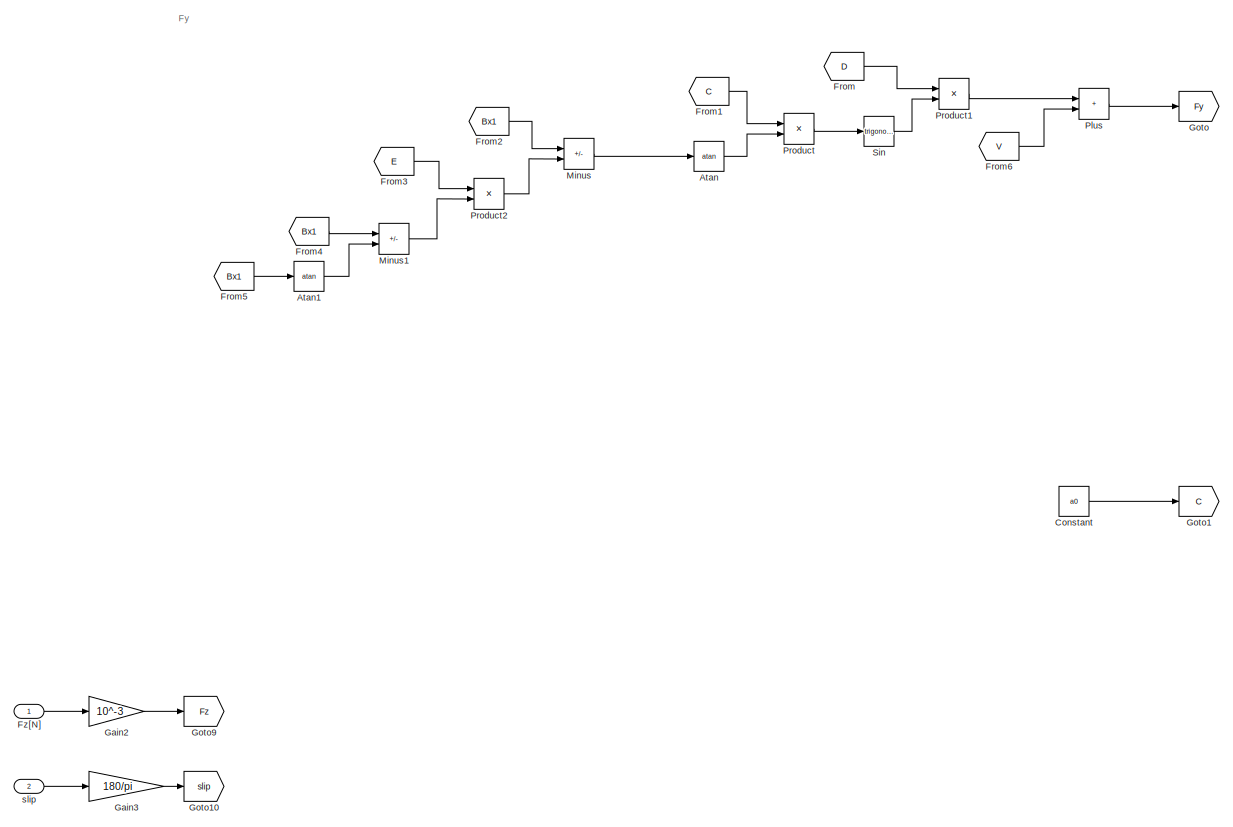
[diagram: DynamicModel/PacejkaF - part 1/3, full width, top band]
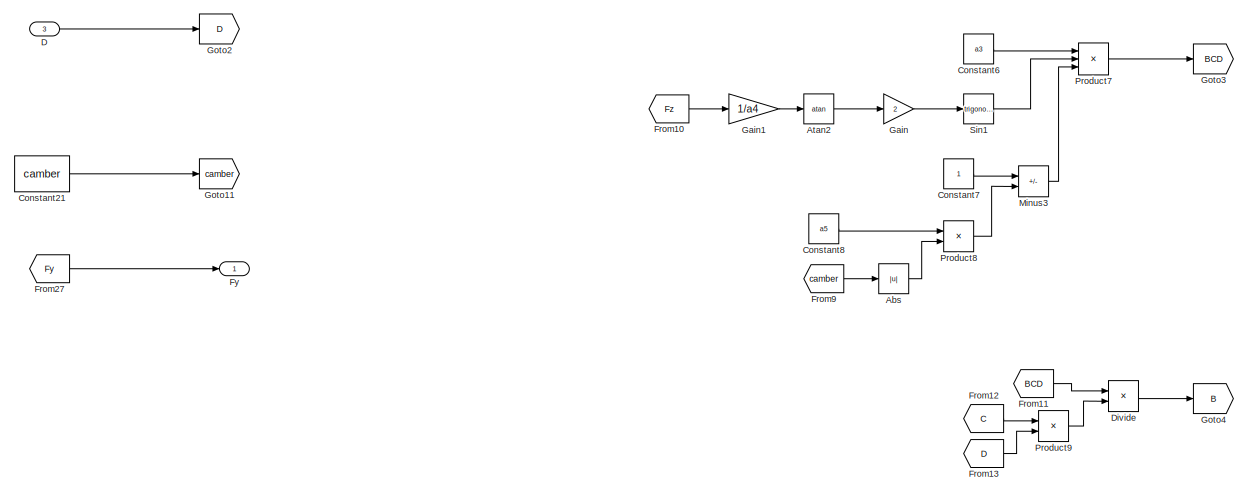
[diagram: DynamicModel/PacejkaF - part 2/3, full width, middle band]
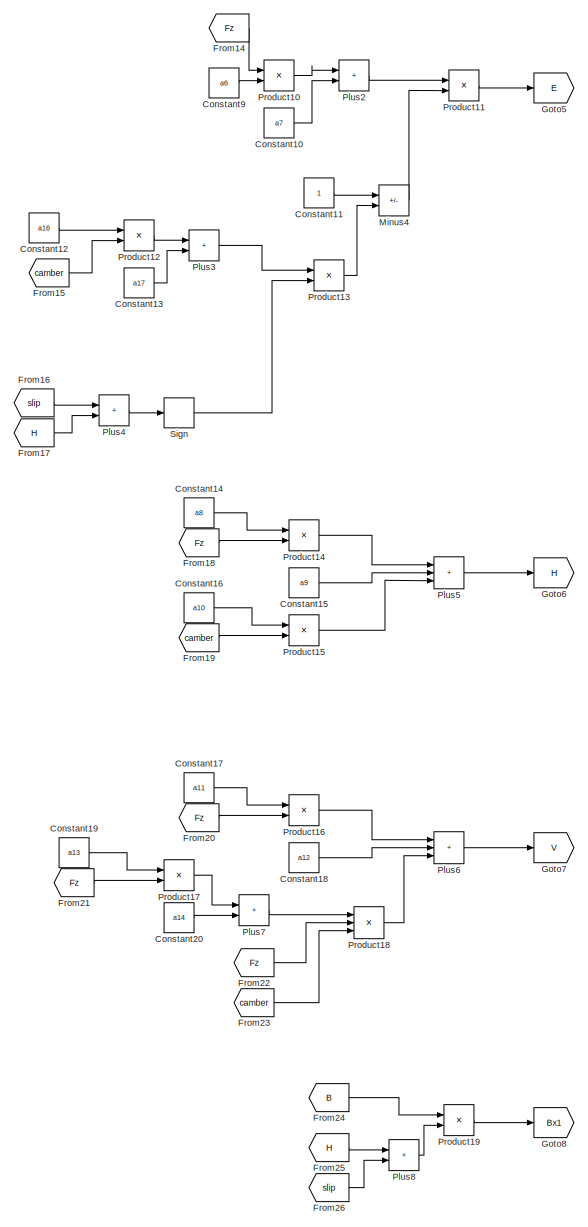
[diagram: DynamicModel/PacejkaF - part 3/3, bottom right region]
BLOCK [SubSystem] DynamicModel/PacejkaF
  Ports = [3, 1]
  RequestExecContextInheritance = off
BLOCK [Abs] DynamicModel/PacejkaF/Abs
  SaturateOnIntegerOverflow = off
BLOCK [Trigonometry] DynamicModel/PacejkaF/Atan
  Operator = atan
  Ports = [1, 1]
BLOCK [Trigonometry] DynamicModel/PacejkaF/Atan1
  Operator = atan
  Ports = [1, 1]
BLOCK [Trigonometry] DynamicModel/PacejkaF/Atan2
  Operator = atan
  Ports = [1, 1]
BLOCK [Constant] DynamicModel/PacejkaF/Constant
  Value = a0
BLOCK [Constant] DynamicModel/PacejkaF/Constant10
  Value = a7
BLOCK [Constant] DynamicModel/PacejkaF/Constant11
BLOCK [Constant] DynamicModel/PacejkaF/Constant12
  Value = a16
BLOCK [Constant] DynamicModel/PacejkaF/Constant13
  Value = a17
BLOCK [Constant] DynamicModel/PacejkaF/Constant14
  Value = a8
BLOCK [Constant] DynamicModel/PacejkaF/Constant15
  Value = a9
BLOCK [Constant] DynamicModel/PacejkaF/Constant16
  Value = a10
BLOCK [Constant] DynamicModel/PacejkaF/Constant17
  Value = a11
BLOCK [Constant] DynamicModel/PacejkaF/Constant18
  Value = a12
BLOCK [Constant] DynamicModel/PacejkaF/Constant19
  Value = a13
BLOCK [Constant] DynamicModel/PacejkaF/Constant20
  Value = a14
BLOCK [Constant] DynamicModel/PacejkaF/Constant21
  Value = camber
BLOCK [Constant] DynamicModel/PacejkaF/Constant6
  Value = a3
BLOCK [Constant] DynamicModel/PacejkaF/Constant7
BLOCK [Constant] DynamicModel/PacejkaF/Constant8
  Value = a5
BLOCK [Constant] DynamicModel/PacejkaF/Constant9
  Value = a6
BLOCK [Inport] DynamicModel/PacejkaF/D
  Port = 3
BLOCK [Product] DynamicModel/PacejkaF/Divide
  Inputs = */
  Ports = [2, 1]
BLOCK [From] DynamicModel/PacejkaF/From
  GotoTag = D
BLOCK [From] DynamicModel/PacejkaF/From1
  GotoTag = C
BLOCK [From] DynamicModel/PacejkaF/From10
  GotoTag = Fz
BLOCK [From] DynamicModel/PacejkaF/From11
  GotoTag = BCD
BLOCK [From] DynamicModel/PacejkaF/From12
  GotoTag = C
BLOCK [From] DynamicModel/PacejkaF/From13
  GotoTag = D
BLOCK [From] DynamicModel/PacejkaF/From14
  GotoTag = Fz
BLOCK [From] DynamicModel/PacejkaF/From15
  GotoTag = camber
BLOCK [From] DynamicModel/PacejkaF/From16
  GotoTag = slip
BLOCK [From] DynamicModel/PacejkaF/From17
  GotoTag = H
BLOCK [From] DynamicModel/PacejkaF/From18
  GotoTag = Fz
BLOCK [From] DynamicModel/PacejkaF/From19
  GotoTag = camber
BLOCK [From] DynamicModel/PacejkaF/From2
  GotoTag = Bx1
BLOCK [From] DynamicModel/PacejkaF/From20
  GotoTag = Fz
BLOCK [From] DynamicModel/PacejkaF/From21
  GotoTag = Fz
BLOCK [From] DynamicModel/PacejkaF/From22
  GotoTag = Fz
BLOCK [From] DynamicModel/PacejkaF/From23
  GotoTag = camber
BLOCK [From] DynamicModel/PacejkaF/From24
  GotoTag = B
BLOCK [From] DynamicModel/PacejkaF/From25
  GotoTag = H
BLOCK [From] DynamicModel/PacejkaF/From26
  GotoTag = slip
BLOCK [From] DynamicModel/PacejkaF/From27
  GotoTag = Fy
BLOCK [From] DynamicModel/PacejkaF/From3
  GotoTag = E
BLOCK [From] DynamicModel/PacejkaF/From4
  GotoTag = Bx1
BLOCK [From] DynamicModel/PacejkaF/From5
  GotoTag = Bx1
BLOCK [From] DynamicModel/PacejkaF/From6
  GotoTag = V
BLOCK [From] DynamicModel/PacejkaF/From9
  GotoTag = camber
BLOCK [Outport] DynamicModel/PacejkaF/Fy
  Unit = N
BLOCK [Inport] DynamicModel/PacejkaF/Fz[N]
  Unit = N
BLOCK [Gain] DynamicModel/PacejkaF/Gain
  Gain = 2
BLOCK [Gain] DynamicModel/PacejkaF/Gain1
  Gain = 1/a4
BLOCK [Gain] DynamicModel/PacejkaF/Gain2
  Gain = 10^-3
BLOCK [Gain] DynamicModel/PacejkaF/Gain3
  Gain = 180/pi
BLOCK [Goto] DynamicModel/PacejkaF/Goto
  GotoTag = Fy
BLOCK [Goto] DynamicModel/PacejkaF/Goto1
  GotoTag = C
BLOCK [Goto] DynamicModel/PacejkaF/Goto10
  GotoTag = slip
BLOCK [Goto] DynamicModel/PacejkaF/Goto11
  GotoTag = camber
BLOCK [Goto] DynamicModel/PacejkaF/Goto2
  GotoTag = D
BLOCK [Goto] DynamicModel/PacejkaF/Goto3
  GotoTag = BCD
BLOCK [Goto] DynamicModel/PacejkaF/Goto4
  GotoTag = B
BLOCK [Goto] DynamicModel/PacejkaF/Goto5
  GotoTag = E
BLOCK [Goto] DynamicModel/PacejkaF/Goto6
  GotoTag = H
BLOCK [Goto] DynamicModel/PacejkaF/Goto7
  GotoTag = V
BLOCK [Goto] DynamicModel/PacejkaF/Goto8
  GotoTag = Bx1
BLOCK [Goto] DynamicModel/PacejkaF/Goto9
  GotoTag = Fz
BLOCK [Sum] DynamicModel/PacejkaF/Minus
  IconShape = rectangular
  Inputs = +-
  Ports = [2, 1]
BLOCK [Sum] DynamicModel/PacejkaF/Minus1
  IconShape = rectangular
  Inputs = +-
  Ports = [2, 1]
BLOCK [Sum] DynamicModel/PacejkaF/Minus3
  IconShape = rectangular
  Inputs = +-
  Ports = [2, 1]
BLOCK [Sum] DynamicModel/PacejkaF/Minus4
  IconShape = rectangular
  Inputs = +-
  Ports = [2, 1]
BLOCK [Sum] DynamicModel/PacejkaF/Plus
  IconShape = rectangular
  Ports = [2, 1]
BLOCK [Sum] DynamicModel/PacejkaF/Plus2
  IconShape = rectangular
  Ports = [2, 1]
BLOCK [Sum] DynamicModel/PacejkaF/Plus3
  IconShape = rectangular
  Ports = [2, 1]
BLOCK [Sum] DynamicModel/PacejkaF/Plus4
  IconShape = rectangular
  Ports = [2, 1]
BLOCK [Sum] DynamicModel/PacejkaF/Plus5
  IconShape = rectangular
  Inputs = +++
  Ports = [3, 1]
BLOCK [Sum] DynamicModel/PacejkaF/Plus6
  IconShape = rectangular
  Inputs = +++
  Ports = [3, 1]
BLOCK [Sum] DynamicModel/PacejkaF/Plus7
  IconShape = rectangular
  Ports = [2, 1]
BLOCK [Sum] DynamicModel/PacejkaF/Plus8
  IconShape = rectangular
  Ports = [2, 1]
BLOCK [Product] DynamicModel/PacejkaF/Product
  Ports = [2, 1]
BLOCK [Product] DynamicModel/PacejkaF/Product1
  Ports = [2, 1]
BLOCK [Product] DynamicModel/PacejkaF/Product10
  Ports = [2, 1]
BLOCK [Product] DynamicModel/PacejkaF/Product11
  Ports = [2, 1]
BLOCK [Product] DynamicModel/PacejkaF/Product12
  Ports = [2, 1]
BLOCK [Product] DynamicModel/PacejkaF/Product13
  Ports = [2, 1]
BLOCK [Product] DynamicModel/PacejkaF/Product14
  Ports = [2, 1]
BLOCK [Product] DynamicModel/PacejkaF/Product15
  Ports = [2, 1]
BLOCK [Product] DynamicModel/PacejkaF/Product16
  Ports = [2, 1]
BLOCK [Product] DynamicModel/PacejkaF/Product17
  Ports = [2, 1]
BLOCK [Product] DynamicModel/PacejkaF/Product18
  Inputs = 3
  Ports = [3, 1]
BLOCK [Product] DynamicModel/PacejkaF/Product19
  Ports = [2, 1]
BLOCK [Product] DynamicModel/PacejkaF/Product2
  Ports = [2, 1]
BLOCK [Product] DynamicModel/PacejkaF/Product7
  Inputs = 3
  Ports = [3, 1]
BLOCK [Product] DynamicModel/PacejkaF/Product8
  Ports = [2, 1]
BLOCK [Product] DynamicModel/PacejkaF/Product9
  Ports = [2, 1]
BLOCK [Signum] DynamicModel/PacejkaF/Sign
  ZeroCross = off
BLOCK [Trigonometry] DynamicModel/PacejkaF/Sin
  Ports = [1, 1]
BLOCK [Trigonometry] DynamicModel/PacejkaF/Sin1
  Ports = [1, 1]
BLOCK [Inport] DynamicModel/PacejkaF/slip
  Port = 2
  Unit = rad
BLOCK [SubSystem] DynamicModel/PacejkaF1
  Ports = [3, 1]
  RequestExecContextInheritance = off
BLOCK [Abs] DynamicModel/PacejkaF1/Abs
  SaturateOnIntegerOverflow = off
BLOCK [Trigonometry] DynamicModel/PacejkaF1/Atan
  Operator = atan
  Ports = [1, 1]
BLOCK [Trigonometry] DynamicModel/PacejkaF1/Atan1
  Operator = atan
  Ports = [1, 1]
BLOCK [Trigonometry] DynamicModel/PacejkaF1/Atan2
  Operator = atan
  Ports = [1, 1]
BLOCK [Constant] DynamicModel/PacejkaF1/Constant
  Value = a0
BLOCK [Constant] DynamicModel/PacejkaF1/Constant10
  Value = a7
BLOCK [Constant] DynamicModel/PacejkaF1/Constant11
BLOCK [Constant] DynamicModel/PacejkaF1/Constant12
  Value = a16
BLOCK [Constant] DynamicModel/PacejkaF1/Constant13
  Value = a17
BLOCK [Constant] DynamicModel/PacejkaF1/Constant14
  Value = a8
BLOCK [Constant] DynamicModel/PacejkaF1/Constant15
  Value = a9
BLOCK [Constant] DynamicModel/PacejkaF1/Constant16
  Value = a10
BLOCK [Constant] DynamicModel/PacejkaF1/Constant17
  Value = a11
BLOCK [Constant] DynamicModel/PacejkaF1/Constant18
  Value = a12
BLOCK [Constant] DynamicModel/PacejkaF1/Constant19
  Value = a13
BLOCK [Constant] DynamicModel/PacejkaF1/Constant20
  Value = a14
BLOCK [Constant] DynamicModel/PacejkaF1/Constant21
  Value = camber
BLOCK [Constant] DynamicModel/PacejkaF1/Constant6
  Value = a3
BLOCK [Constant] DynamicModel/PacejkaF1/Constant7
BLOCK [Constant] DynamicModel/PacejkaF1/Constant8
  Value = a5
BLOCK [Constant] DynamicModel/PacejkaF1/Constant9
  Value = a6
BLOCK [Inport] DynamicModel/PacejkaF1/D
  Port = 3
BLOCK [Product] DynamicModel/PacejkaF1/Divide
  Inputs = */
  Ports = [2, 1]
BLOCK [From] DynamicModel/PacejkaF1/From
  GotoTag = D
BLOCK [From] DynamicModel/PacejkaF1/From1
  GotoTag = C
BLOCK [From] DynamicModel/PacejkaF1/From10
  GotoTag = Fz
BLOCK [From] DynamicModel/PacejkaF1/From11
  GotoTag = BCD
BLOCK [From] DynamicModel/PacejkaF1/From12
  GotoTag = C
BLOCK [From] DynamicModel/PacejkaF1/From13
  GotoTag = D
BLOCK [From] DynamicModel/PacejkaF1/From14
  GotoTag = Fz
BLOCK [From] DynamicModel/PacejkaF1/From15
  GotoTag = camber
BLOCK [From] DynamicModel/PacejkaF1/From16
  GotoTag = slip
BLOCK [From] DynamicModel/PacejkaF1/From17
  GotoTag = H
BLOCK [From] DynamicModel/PacejkaF1/From18
  GotoTag = Fz
BLOCK [From] DynamicModel/PacejkaF1/From19
  GotoTag = camber
BLOCK [From] DynamicModel/PacejkaF1/From2
  GotoTag = Bx1
BLOCK [From] DynamicModel/PacejkaF1/From20
  GotoTag = Fz
BLOCK [From] DynamicModel/PacejkaF1/From21
  GotoTag = Fz
BLOCK [From] DynamicModel/PacejkaF1/From22
  GotoTag = Fz
BLOCK [From] DynamicModel/PacejkaF1/From23
  GotoTag = camber
BLOCK [From] DynamicModel/PacejkaF1/From24
  GotoTag = B
BLOCK [From] DynamicModel/PacejkaF1/From25
  GotoTag = H
BLOCK [From] DynamicModel/PacejkaF1/From26
  GotoTag = slip
BLOCK [From] DynamicModel/PacejkaF1/From27
  GotoTag = Fy
BLOCK [From] DynamicModel/PacejkaF1/From3
  GotoTag = E
BLOCK [From] DynamicModel/PacejkaF1/From4
  GotoTag = Bx1
BLOCK [From] DynamicModel/PacejkaF1/From5
  GotoTag = Bx1
BLOCK [From] DynamicModel/PacejkaF1/From6
  GotoTag = V
BLOCK [From] DynamicModel/PacejkaF1/From9
  GotoTag = camber
BLOCK [Outport] DynamicModel/PacejkaF1/Fy
  Unit = N
BLOCK [Inport] DynamicModel/PacejkaF1/Fz[N]
  Unit = N
BLOCK [Gain] DynamicModel/PacejkaF1/Gain
  Gain = 2
BLOCK [Gain] DynamicModel/PacejkaF1/Gain1
  Gain = 1/a4
BLOCK [Gain] DynamicModel/PacejkaF1/Gain2
  Gain = 10^-3
BLOCK [Gain] DynamicModel/PacejkaF1/Gain3
  Gain = 180/pi
BLOCK [Goto] DynamicModel/PacejkaF1/Goto
  GotoTag = Fy
BLOCK [Goto] DynamicModel/PacejkaF1/Goto1
  GotoTag = C
BLOCK [Goto] DynamicModel/PacejkaF1/Goto10
  GotoTag = slip
BLOCK [Goto] DynamicModel/PacejkaF1/Goto11
  GotoTag = camber
BLOCK [Goto] DynamicModel/PacejkaF1/Goto2
  GotoTag = D
BLOCK [Goto] DynamicModel/PacejkaF1/Goto3
  GotoTag = BCD
BLOCK [Goto] DynamicModel/PacejkaF1/Goto4
  GotoTag = B
BLOCK [Goto] DynamicModel/PacejkaF1/Goto5
  GotoTag = E
BLOCK [Goto] DynamicModel/PacejkaF1/Goto6
  GotoTag = H
BLOCK [Goto] DynamicModel/PacejkaF1/Goto7
  GotoTag = V
BLOCK [Goto] DynamicModel/PacejkaF1/Goto8
  GotoTag = Bx1
BLOCK [Goto] DynamicModel/PacejkaF1/Goto9
  GotoTag = Fz
BLOCK [Sum] DynamicModel/PacejkaF1/Minus
  IconShape = rectangular
  Inputs = +-
  Ports = [2, 1]
BLOCK [Sum] DynamicModel/PacejkaF1/Minus1
  IconShape = rectangular
  Inputs = +-
  Ports = [2, 1]
BLOCK [Sum] DynamicModel/PacejkaF1/Minus3
  IconShape = rectangular
  Inputs = +-
  Ports = [2, 1]
BLOCK [Sum] DynamicModel/PacejkaF1/Minus4
  IconShape = rectangular
  Inputs = +-
  Ports = [2, 1]
BLOCK [Sum] DynamicModel/PacejkaF1/Plus
  IconShape = rectangular
  Ports = [2, 1]
BLOCK [Sum] DynamicModel/PacejkaF1/Plus2
  IconShape = rectangular
  Ports = [2, 1]
BLOCK [Sum] DynamicModel/PacejkaF1/Plus3
  IconShape = rectangular
  Ports = [2, 1]
BLOCK [Sum] DynamicModel/PacejkaF1/Plus4
  IconShape = rectangular
  Ports = [2, 1]
BLOCK [Sum] DynamicModel/PacejkaF1/Plus5
  IconShape = rectangular
  Inputs = +++
  Ports = [3, 1]
BLOCK [Sum] DynamicModel/PacejkaF1/Plus6
  IconShape = rectangular
  Inputs = +++
  Ports = [3, 1]
BLOCK [Sum] DynamicModel/PacejkaF1/Plus7
  IconShape = rectangular
  Ports = [2, 1]
BLOCK [Sum] DynamicModel/PacejkaF1/Plus8
  IconShape = rectangular
  Ports = [2, 1]
BLOCK [Product] DynamicModel/PacejkaF1/Product
  Ports = [2, 1]
BLOCK [Product] DynamicModel/PacejkaF1/Product1
  Ports = [2, 1]
BLOCK [Product] DynamicModel/PacejkaF1/Product10
  Ports = [2, 1]
BLOCK [Product] DynamicModel/PacejkaF1/Product11
  Ports = [2, 1]
BLOCK [Product] DynamicModel/PacejkaF1/Product12
  Ports = [2, 1]
BLOCK [Product] DynamicModel/PacejkaF1/Product13
  Ports = [2, 1]
BLOCK [Product] DynamicModel/PacejkaF1/Product14
  Ports = [2, 1]
BLOCK [Product] DynamicModel/PacejkaF1/Product15
  Ports = [2, 1]
BLOCK [Product] DynamicModel/PacejkaF1/Product16
  Ports = [2, 1]
BLOCK [Product] DynamicModel/PacejkaF1/Product17
  Ports = [2, 1]
BLOCK [Product] DynamicModel/PacejkaF1/Product18
  Inputs = 3
  Ports = [3, 1]
BLOCK [Product] DynamicModel/PacejkaF1/Product19
  Ports = [2, 1]
BLOCK [Product] DynamicModel/PacejkaF1/Product2
  Ports = [2, 1]
BLOCK [Product] DynamicModel/PacejkaF1/Product7
  Inputs = 3
  Ports = [3, 1]
BLOCK [Product] DynamicModel/PacejkaF1/Product8
  Ports = [2, 1]
BLOCK [Product] DynamicModel/PacejkaF1/Product9
  Ports = [2, 1]
BLOCK [Signum] DynamicModel/PacejkaF1/Sign
  ZeroCross = off
BLOCK [Trigonometry] DynamicModel/PacejkaF1/Sin
  Ports = [1, 1]
BLOCK [Trigonometry] DynamicModel/PacejkaF1/Sin1
  Ports = [1, 1]
BLOCK [Inport] DynamicModel/PacejkaF1/slip
  Port = 2
  Unit = rad
BLOCK [SubSystem] DynamicModel/PacejkaF2
  Commented = on
  Ports = [3, 1]
  RequestExecContextInheritance = off
BLOCK [Abs] DynamicModel/PacejkaF2/Abs
  SaturateOnIntegerOverflow = off
BLOCK [Trigonometry] DynamicModel/PacejkaF2/Atan
  Operator = atan
  Ports = [1, 1]
BLOCK [Trigonometry] DynamicModel/PacejkaF2/Atan1
  Operator = atan
  Ports = [1, 1]
BLOCK [Trigonometry] DynamicModel/PacejkaF2/Atan2
  Operator = atan
  Ports = [1, 1]
BLOCK [Constant] DynamicModel/PacejkaF2/Constant
  Value = a0
BLOCK [Constant] DynamicModel/PacejkaF2/Constant10
  Value = a7
BLOCK [Constant] DynamicModel/PacejkaF2/Constant11
BLOCK [Constant] DynamicModel/PacejkaF2/Constant12
  Value = a16
BLOCK [Constant] DynamicModel/PacejkaF2/Constant13
  Value = a17
BLOCK [Constant] DynamicModel/PacejkaF2/Constant14
  Value = a8
BLOCK [Constant] DynamicModel/PacejkaF2/Constant15
  Value = a9
BLOCK [Constant] DynamicModel/PacejkaF2/Constant16
  Value = a10
BLOCK [Constant] DynamicModel/PacejkaF2/Constant17
  Value = a11
BLOCK [Constant] DynamicModel/PacejkaF2/Constant18
  Value = a12
BLOCK [Constant] DynamicModel/PacejkaF2/Constant19
  Value = a13
BLOCK [Constant] DynamicModel/PacejkaF2/Constant20
  Value = a14
BLOCK [Constant] DynamicModel/PacejkaF2/Constant21
  Value = camber
BLOCK [Constant] DynamicModel/PacejkaF2/Constant6
  Value = a3
BLOCK [Constant] DynamicModel/PacejkaF2/Constant7
BLOCK [Constant] DynamicModel/PacejkaF2/Constant8
  Value = a5
BLOCK [Constant] DynamicModel/PacejkaF2/Constant9
  Value = a6
BLOCK [Inport] DynamicModel/PacejkaF2/D
  Port = 3
BLOCK [Product] DynamicModel/PacejkaF2/Divide
  Inputs = */
  Ports = [2, 1]
BLOCK [From] DynamicModel/PacejkaF2/From
  GotoTag = D
BLOCK [From] DynamicModel/PacejkaF2/From1
  GotoTag = C
BLOCK [From] DynamicModel/PacejkaF2/From10
  GotoTag = Fz
BLOCK [From] DynamicModel/PacejkaF2/From11
  GotoTag = BCD
BLOCK [From] DynamicModel/PacejkaF2/From12
  GotoTag = C
BLOCK [From] DynamicModel/PacejkaF2/From13
  GotoTag = D
BLOCK [From] DynamicModel/PacejkaF2/From14
  GotoTag = Fz
BLOCK [From] DynamicModel/PacejkaF2/From15
  GotoTag = camber
BLOCK [From] DynamicModel/PacejkaF2/From16
  GotoTag = slip
BLOCK [From] DynamicModel/PacejkaF2/From17
  GotoTag = H
BLOCK [From] DynamicModel/PacejkaF2/From18
  GotoTag = Fz
BLOCK [From] DynamicModel/PacejkaF2/From19
  GotoTag = camber
BLOCK [From] DynamicModel/PacejkaF2/From2
  GotoTag = Bx1
BLOCK [From] DynamicModel/PacejkaF2/From20
  GotoTag = Fz
BLOCK [From] DynamicModel/PacejkaF2/From21
  GotoTag = Fz
BLOCK [From] DynamicModel/PacejkaF2/From22
  GotoTag = Fz
BLOCK [From] DynamicModel/PacejkaF2/From23
  GotoTag = camber
BLOCK [From] DynamicModel/PacejkaF2/From24
  GotoTag = B
BLOCK [From] DynamicModel/PacejkaF2/From25
  GotoTag = H
BLOCK [From] DynamicModel/PacejkaF2/From26
  GotoTag = slip
BLOCK [From] DynamicModel/PacejkaF2/From27
  GotoTag = Fy
BLOCK [From] DynamicModel/PacejkaF2/From3
  GotoTag = E
BLOCK [From] DynamicModel/PacejkaF2/From4
  GotoTag = Bx1
BLOCK [From] DynamicModel/PacejkaF2/From5
  GotoTag = Bx1
BLOCK [From] DynamicModel/PacejkaF2/From6
  GotoTag = V
BLOCK [From] DynamicModel/PacejkaF2/From9
  GotoTag = camber
BLOCK [Outport] DynamicModel/PacejkaF2/Fy
  Unit = N
BLOCK [Inport] DynamicModel/PacejkaF2/Fz[N]
  Unit = N
BLOCK [Gain] DynamicModel/PacejkaF2/Gain
  Gain = 2
BLOCK [Gain] DynamicModel/PacejkaF2/Gain1
  Gain = 1/a4
BLOCK [Gain] DynamicModel/PacejkaF2/Gain2
  Gain = 10^-3
BLOCK [Gain] DynamicModel/PacejkaF2/Gain3
  Gain = 180/pi
BLOCK [Goto] DynamicModel/PacejkaF2/Goto
  GotoTag = Fy
BLOCK [Goto] DynamicModel/PacejkaF2/Goto1
  GotoTag = C
BLOCK [Goto] DynamicModel/PacejkaF2/Goto10
  GotoTag = slip
BLOCK [Goto] DynamicModel/PacejkaF2/Goto11
  GotoTag = camber
BLOCK [Goto] DynamicModel/PacejkaF2/Goto2
  GotoTag = D
BLOCK [Goto] DynamicModel/PacejkaF2/Goto3
  GotoTag = BCD
BLOCK [Goto] DynamicModel/PacejkaF2/Goto4
  GotoTag = B
BLOCK [Goto] DynamicModel/PacejkaF2/Goto5
  GotoTag = E
BLOCK [Goto] DynamicModel/PacejkaF2/Goto6
  GotoTag = H
BLOCK [Goto] DynamicModel/PacejkaF2/Goto7
  GotoTag = V
BLOCK [Goto] DynamicModel/PacejkaF2/Goto8
  GotoTag = Bx1
BLOCK [Goto] DynamicModel/PacejkaF2/Goto9
  GotoTag = Fz
BLOCK [Sum] DynamicModel/PacejkaF2/Minus
  IconShape = rectangular
  Inputs = +-
  Ports = [2, 1]
BLOCK [Sum] DynamicModel/PacejkaF2/Minus1
  IconShape = rectangular
  Inputs = +-
  Ports = [2, 1]
BLOCK [Sum] DynamicModel/PacejkaF2/Minus3
  IconShape = rectangular
  Inputs = +-
  Ports = [2, 1]
BLOCK [Sum] DynamicModel/PacejkaF2/Minus4
  IconShape = rectangular
  Inputs = +-
  Ports = [2, 1]
BLOCK [Sum] DynamicModel/PacejkaF2/Plus
  IconShape = rectangular
  Ports = [2, 1]
BLOCK [Sum] DynamicModel/PacejkaF2/Plus2
  IconShape = rectangular
  Ports = [2, 1]
BLOCK [Sum] DynamicModel/PacejkaF2/Plus3
  IconShape = rectangular
  Ports = [2, 1]
BLOCK [Sum] DynamicModel/PacejkaF2/Plus4
  IconShape = rectangular
  Ports = [2, 1]
BLOCK [Sum] DynamicModel/PacejkaF2/Plus5
  IconShape = rectangular
  Inputs = +++
  Ports = [3, 1]
BLOCK [Sum] DynamicModel/PacejkaF2/Plus6
  IconShape = rectangular
  Inputs = +++
  Ports = [3, 1]
BLOCK [Sum] DynamicModel/PacejkaF2/Plus7
  IconShape = rectangular
  Ports = [2, 1]
BLOCK [Sum] DynamicModel/PacejkaF2/Plus8
  IconShape = rectangular
  Ports = [2, 1]
BLOCK [Product] DynamicModel/PacejkaF2/Product
  Ports = [2, 1]
BLOCK [Product] DynamicModel/PacejkaF2/Product1
  Ports = [2, 1]
BLOCK [Product] DynamicModel/PacejkaF2/Product10
  Ports = [2, 1]
BLOCK [Product] DynamicModel/PacejkaF2/Product11
  Ports = [2, 1]
BLOCK [Product] DynamicModel/PacejkaF2/Product12
  Ports = [2, 1]
BLOCK [Product] DynamicModel/PacejkaF2/Product13
  Ports = [2, 1]
BLOCK [Product] DynamicModel/PacejkaF2/Product14
  Ports = [2, 1]
BLOCK [Product] DynamicModel/PacejkaF2/Product15
  Ports = [2, 1]
BLOCK [Product] DynamicModel/PacejkaF2/Product16
  Ports = [2, 1]
BLOCK [Product] DynamicModel/PacejkaF2/Product17
  Ports = [2, 1]
BLOCK [Product] DynamicModel/PacejkaF2/Product18
  Inputs = 3
  Ports = [3, 1]
BLOCK [Product] DynamicModel/PacejkaF2/Product19
  Ports = [2, 1]
BLOCK [Product] DynamicModel/PacejkaF2/Product2
  Ports = [2, 1]
BLOCK [Product] DynamicModel/PacejkaF2/Product7
  Inputs = 3
  Ports = [3, 1]
BLOCK [Product] DynamicModel/PacejkaF2/Product8
  Ports = [2, 1]
BLOCK [Product] DynamicModel/PacejkaF2/Product9
  Ports = [2, 1]
BLOCK [Signum] DynamicModel/PacejkaF2/Sign
  ZeroCross = off
BLOCK [Trigonometry] DynamicModel/PacejkaF2/Sin
  Ports = [1, 1]
BLOCK [Trigonometry] DynamicModel/PacejkaF2/Sin1
  Ports = [1, 1]
BLOCK [Inport] DynamicModel/PacejkaF2/slip
  Port = 2
  Unit = rad
BLOCK [SubSystem] DynamicModel/PacejkaF3
  Commented = on
  Ports = [3, 1]
  RequestExecContextInheritance = off
BLOCK [Abs] DynamicModel/PacejkaF3/Abs
  SaturateOnIntegerOverflow = off
BLOCK [Trigonometry] DynamicModel/PacejkaF3/Atan
  Operator = atan
  Ports = [1, 1]
BLOCK [Trigonometry] DynamicModel/PacejkaF3/Atan1
  Operator = atan
  Ports = [1, 1]
BLOCK [Trigonometry] DynamicModel/PacejkaF3/Atan2
  Operator = atan
  Ports = [1, 1]
BLOCK [Constant] DynamicModel/PacejkaF3/Constant
  Value = a0
BLOCK [Constant] DynamicModel/PacejkaF3/Constant10
  Value = a7
BLOCK [Constant] DynamicModel/PacejkaF3/Constant11
BLOCK [Constant] DynamicModel/PacejkaF3/Constant12
  Value = a16
BLOCK [Constant] DynamicModel/PacejkaF3/Constant13
  Value = a17
BLOCK [Constant] DynamicModel/PacejkaF3/Constant14
  Value = a8
BLOCK [Constant] DynamicModel/PacejkaF3/Constant15
  Value = a9
BLOCK [Constant] DynamicModel/PacejkaF3/Constant16
  Value = a10
BLOCK [Constant] DynamicModel/PacejkaF3/Constant17
  Value = a11
BLOCK [Constant] DynamicModel/PacejkaF3/Constant18
  Value = a12
BLOCK [Constant] DynamicModel/PacejkaF3/Constant19
  Value = a13
BLOCK [Constant] DynamicModel/PacejkaF3/Constant20
  Value = a14
BLOCK [Constant] DynamicModel/PacejkaF3/Constant21
  Value = camber
BLOCK [Constant] DynamicModel/PacejkaF3/Constant6
  Value = a3
BLOCK [Constant] DynamicModel/PacejkaF3/Constant7
BLOCK [Constant] DynamicModel/PacejkaF3/Constant8
  Value = a5
BLOCK [Constant] DynamicModel/PacejkaF3/Constant9
  Value = a6
BLOCK [Inport] DynamicModel/PacejkaF3/D
  Port = 3
BLOCK [Product] DynamicModel/PacejkaF3/Divide
  Inputs = */
  Ports = [2, 1]
BLOCK [From] DynamicModel/PacejkaF3/From
  GotoTag = D
BLOCK [From] DynamicModel/PacejkaF3/From1
  GotoTag = C
BLOCK [From] DynamicModel/PacejkaF3/From10
  GotoTag = Fz
BLOCK [From] DynamicModel/PacejkaF3/From11
  GotoTag = BCD
BLOCK [From] DynamicModel/PacejkaF3/From12
  GotoTag = C
BLOCK [From] DynamicModel/PacejkaF3/From13
  GotoTag = D
BLOCK [From] DynamicModel/PacejkaF3/From14
  GotoTag = Fz
BLOCK [From] DynamicModel/PacejkaF3/From15
  GotoTag = camber
BLOCK [From] DynamicModel/PacejkaF3/From16
  GotoTag = slip
BLOCK [From] DynamicModel/PacejkaF3/From17
  GotoTag = H
BLOCK [From] DynamicModel/PacejkaF3/From18
  GotoTag = Fz
BLOCK [From] DynamicModel/PacejkaF3/From19
  GotoTag = camber
BLOCK [From] DynamicModel/PacejkaF3/From2
  GotoTag = Bx1
BLOCK [From] DynamicModel/PacejkaF3/From20
  GotoTag = Fz
BLOCK [From] DynamicModel/PacejkaF3/From21
  GotoTag = Fz
BLOCK [From] DynamicModel/PacejkaF3/From22
  GotoTag = Fz
BLOCK [From] DynamicModel/PacejkaF3/From23
  GotoTag = camber
BLOCK [From] DynamicModel/PacejkaF3/From24
  GotoTag = B
BLOCK [From] DynamicModel/PacejkaF3/From25
  GotoTag = H
BLOCK [From] DynamicModel/PacejkaF3/From26
  GotoTag = slip
BLOCK [From] DynamicModel/PacejkaF3/From27
  GotoTag = Fy
BLOCK [From] DynamicModel/PacejkaF3/From3
  GotoTag = E
BLOCK [From] DynamicModel/PacejkaF3/From4
  GotoTag = Bx1
BLOCK [From] DynamicModel/PacejkaF3/From5
  GotoTag = Bx1
BLOCK [From] DynamicModel/PacejkaF3/From6
  GotoTag = V
BLOCK [From] DynamicModel/PacejkaF3/From9
  GotoTag = camber
BLOCK [Outport] DynamicModel/PacejkaF3/Fy
  Unit = N
BLOCK [Inport] DynamicModel/PacejkaF3/Fz[N]
  Unit = N
BLOCK [Gain] DynamicModel/PacejkaF3/Gain
  Gain = 2
BLOCK [Gain] DynamicModel/PacejkaF3/Gain1
  Gain = 1/a4
BLOCK [Gain] DynamicModel/PacejkaF3/Gain2
  Gain = 10^-3
BLOCK [Gain] DynamicModel/PacejkaF3/Gain3
  Gain = 180/pi
BLOCK [Goto] DynamicModel/PacejkaF3/Goto
  GotoTag = Fy
BLOCK [Goto] DynamicModel/PacejkaF3/Goto1
  GotoTag = C
BLOCK [Goto] DynamicModel/PacejkaF3/Goto10
  GotoTag = slip
BLOCK [Goto] DynamicModel/PacejkaF3/Goto11
  GotoTag = camber
BLOCK [Goto] DynamicModel/PacejkaF3/Goto2
  GotoTag = D
BLOCK [Goto] DynamicModel/PacejkaF3/Goto3
  GotoTag = BCD
BLOCK [Goto] DynamicModel/PacejkaF3/Goto4
  GotoTag = B
BLOCK [Goto] DynamicModel/PacejkaF3/Goto5
  GotoTag = E
BLOCK [Goto] DynamicModel/PacejkaF3/Goto6
  GotoTag = H
BLOCK [Goto] DynamicModel/PacejkaF3/Goto7
  GotoTag = V
BLOCK [Goto] DynamicModel/PacejkaF3/Goto8
  GotoTag = Bx1
BLOCK [Goto] DynamicModel/PacejkaF3/Goto9
  GotoTag = Fz
BLOCK [Sum] DynamicModel/PacejkaF3/Minus
  IconShape = rectangular
  Inputs = +-
  Ports = [2, 1]
BLOCK [Sum] DynamicModel/PacejkaF3/Minus1
  IconShape = rectangular
  Inputs = +-
  Ports = [2, 1]
BLOCK [Sum] DynamicModel/PacejkaF3/Minus3
  IconShape = rectangular
  Inputs = +-
  Ports = [2, 1]
BLOCK [Sum] DynamicModel/PacejkaF3/Minus4
  IconShape = rectangular
  Inputs = +-
  Ports = [2, 1]
BLOCK [Sum] DynamicModel/PacejkaF3/Plus
  IconShape = rectangular
  Ports = [2, 1]
BLOCK [Sum] DynamicModel/PacejkaF3/Plus2
  IconShape = rectangular
  Ports = [2, 1]
BLOCK [Sum] DynamicModel/PacejkaF3/Plus3
  IconShape = rectangular
  Ports = [2, 1]
BLOCK [Sum] DynamicModel/PacejkaF3/Plus4
  IconShape = rectangular
  Ports = [2, 1]
BLOCK [Sum] DynamicModel/PacejkaF3/Plus5
  IconShape = rectangular
  Inputs = +++
  Ports = [3, 1]
BLOCK [Sum] DynamicModel/PacejkaF3/Plus6
  IconShape = rectangular
  Inputs = +++
  Ports = [3, 1]
BLOCK [Sum] DynamicModel/PacejkaF3/Plus7
  IconShape = rectangular
  Ports = [2, 1]
BLOCK [Sum] DynamicModel/PacejkaF3/Plus8
  IconShape = rectangular
  Ports = [2, 1]
BLOCK [Product] DynamicModel/PacejkaF3/Product
  Ports = [2, 1]
BLOCK [Product] DynamicModel/PacejkaF3/Product1
  Ports = [2, 1]
BLOCK [Product] DynamicModel/PacejkaF3/Product10
  Ports = [2, 1]
BLOCK [Product] DynamicModel/PacejkaF3/Product11
  Ports = [2, 1]
BLOCK [Product] DynamicModel/PacejkaF3/Product12
  Ports = [2, 1]
BLOCK [Product] DynamicModel/PacejkaF3/Product13
  Ports = [2, 1]
BLOCK [Product] DynamicModel/PacejkaF3/Product14
  Ports = [2, 1]
BLOCK [Product] DynamicModel/PacejkaF3/Product15
  Ports = [2, 1]
BLOCK [Product] DynamicModel/PacejkaF3/Product16
  Ports = [2, 1]
BLOCK [Product] DynamicModel/PacejkaF3/Product17
  Ports = [2, 1]
BLOCK [Product] DynamicModel/PacejkaF3/Product18
  Inputs = 3
  Ports = [3, 1]
BLOCK [Product] DynamicModel/PacejkaF3/Product19
  Ports = [2, 1]
BLOCK [Product] DynamicModel/PacejkaF3/Product2
  Ports = [2, 1]
BLOCK [Product] DynamicModel/PacejkaF3/Product7
  Inputs = 3
  Ports = [3, 1]
BLOCK [Product] DynamicModel/PacejkaF3/Product8
  Ports = [2, 1]
BLOCK [Product] DynamicModel/PacejkaF3/Product9
  Ports = [2, 1]
BLOCK [Signum] DynamicModel/PacejkaF3/Sign
  ZeroCross = off
BLOCK [Trigonometry] DynamicModel/PacejkaF3/Sin
  Ports = [1, 1]
BLOCK [Trigonometry] DynamicModel/PacejkaF3/Sin1
  Ports = [1, 1]
BLOCK [Inport] DynamicModel/PacejkaF3/slip
  Port = 2
  Unit = rad
BLOCK [SubSystem] DynamicModel/PacejkaF4
  Commented = on
  Ports = [3, 1]
  RequestExecContextInheritance = off
BLOCK [Abs] DynamicModel/PacejkaF4/Abs
  SaturateOnIntegerOverflow = off
BLOCK [Trigonometry] DynamicModel/PacejkaF4/Atan
  Operator = atan
  Ports = [1, 1]
BLOCK [Trigonometry] DynamicModel/PacejkaF4/Atan1
  Operator = atan
  Ports = [1, 1]
BLOCK [Trigonometry] DynamicModel/PacejkaF4/Atan2
  Operator = atan
  Ports = [1, 1]
BLOCK [Constant] DynamicModel/PacejkaF4/Constant
  Value = a0
BLOCK [Constant] DynamicModel/PacejkaF4/Constant10
  Value = a7
BLOCK [Constant] DynamicModel/PacejkaF4/Constant11
BLOCK [Constant] DynamicModel/PacejkaF4/Constant12
  Value = a16
BLOCK [Constant] DynamicModel/PacejkaF4/Constant13
  Value = a17
BLOCK [Constant] DynamicModel/PacejkaF4/Constant14
  Value = a8
BLOCK [Constant] DynamicModel/PacejkaF4/Constant15
  Value = a9
BLOCK [Constant] DynamicModel/PacejkaF4/Constant16
  Value = a10
BLOCK [Constant] DynamicModel/PacejkaF4/Constant17
  Value = a11
BLOCK [Constant] DynamicModel/PacejkaF4/Constant18
  Value = a12
BLOCK [Constant] DynamicModel/PacejkaF4/Constant19
  Value = a13
BLOCK [Constant] DynamicModel/PacejkaF4/Constant20
  Value = a14
BLOCK [Constant] DynamicModel/PacejkaF4/Constant21
  Value = camber
BLOCK [Constant] DynamicModel/PacejkaF4/Constant6
  Value = a3
BLOCK [Constant] DynamicModel/PacejkaF4/Constant7
BLOCK [Constant] DynamicModel/PacejkaF4/Constant8
  Value = a5
BLOCK [Constant] DynamicModel/PacejkaF4/Constant9
  Value = a6
BLOCK [Inport] DynamicModel/PacejkaF4/D
  Port = 3
BLOCK [Product] DynamicModel/PacejkaF4/Divide
  Inputs = */
  Ports = [2, 1]
BLOCK [From] DynamicModel/PacejkaF4/From
  GotoTag = D
BLOCK [From] DynamicModel/PacejkaF4/From1
  GotoTag = C
BLOCK [From] DynamicModel/PacejkaF4/From10
  GotoTag = Fz
BLOCK [From] DynamicModel/PacejkaF4/From11
  GotoTag = BCD
BLOCK [From] DynamicModel/PacejkaF4/From12
  GotoTag = C
BLOCK [From] DynamicModel/PacejkaF4/From13
  GotoTag = D
BLOCK [From] DynamicModel/PacejkaF4/From14
  GotoTag = Fz
BLOCK [From] DynamicModel/PacejkaF4/From15
  GotoTag = camber
BLOCK [From] DynamicModel/PacejkaF4/From16
  GotoTag = slip
BLOCK [From] DynamicModel/PacejkaF4/From17
  GotoTag = H
BLOCK [From] DynamicModel/PacejkaF4/From18
  GotoTag = Fz
BLOCK [From] DynamicModel/PacejkaF4/From19
  GotoTag = camber
BLOCK [From] DynamicModel/PacejkaF4/From2
  GotoTag = Bx1
BLOCK [From] DynamicModel/PacejkaF4/From20
  GotoTag = Fz
BLOCK [From] DynamicModel/PacejkaF4/From21
  GotoTag = Fz
BLOCK [From] DynamicModel/PacejkaF4/From22
  GotoTag = Fz
BLOCK [From] DynamicModel/PacejkaF4/From23
  GotoTag = camber
BLOCK [From] DynamicModel/PacejkaF4/From24
  GotoTag = B
BLOCK [From] DynamicModel/PacejkaF4/From25
  GotoTag = H
BLOCK [From] DynamicModel/PacejkaF4/From26
  GotoTag = slip
BLOCK [From] DynamicModel/PacejkaF4/From27
  GotoTag = Fy
BLOCK [From] DynamicModel/PacejkaF4/From3
  GotoTag = E
BLOCK [From] DynamicModel/PacejkaF4/From4
  GotoTag = Bx1
BLOCK [From] DynamicModel/PacejkaF4/From5
  GotoTag = Bx1
BLOCK [From] DynamicModel/PacejkaF4/From6
  GotoTag = V
BLOCK [From] DynamicModel/PacejkaF4/From9
  GotoTag = camber
BLOCK [Outport] DynamicModel/PacejkaF4/Fy
  Unit = N
BLOCK [Inport] DynamicModel/PacejkaF4/Fz[N]
  Unit = N
BLOCK [Gain] DynamicModel/PacejkaF4/Gain
  Gain = 2
BLOCK [Gain] DynamicModel/PacejkaF4/Gain1
  Gain = 1/a4
BLOCK [Gain] DynamicModel/PacejkaF4/Gain2
  Gain = 10^-3
BLOCK [Gain] DynamicModel/PacejkaF4/Gain3
  Gain = 180/pi
BLOCK [Goto] DynamicModel/PacejkaF4/Goto
  GotoTag = Fy
BLOCK [Goto] DynamicModel/PacejkaF4/Goto1
  GotoTag = C
BLOCK [Goto] DynamicModel/PacejkaF4/Goto10
  GotoTag = slip
BLOCK [Goto] DynamicModel/PacejkaF4/Goto11
  GotoTag = camber
BLOCK [Goto] DynamicModel/PacejkaF4/Goto2
  GotoTag = D
BLOCK [Goto] DynamicModel/PacejkaF4/Goto3
  GotoTag = BCD
BLOCK [Goto] DynamicModel/PacejkaF4/Goto4
  GotoTag = B
BLOCK [Goto] DynamicModel/PacejkaF4/Goto5
  GotoTag = E
BLOCK [Goto] DynamicModel/PacejkaF4/Goto6
  GotoTag = H
BLOCK [Goto] DynamicModel/PacejkaF4/Goto7
  GotoTag = V
BLOCK [Goto] DynamicModel/PacejkaF4/Goto8
  GotoTag = Bx1
BLOCK [Goto] DynamicModel/PacejkaF4/Goto9
  GotoTag = Fz
BLOCK [Sum] DynamicModel/PacejkaF4/Minus
  IconShape = rectangular
  Inputs = +-
  Ports = [2, 1]
BLOCK [Sum] DynamicModel/PacejkaF4/Minus1
  IconShape = rectangular
  Inputs = +-
  Ports = [2, 1]
BLOCK [Sum] DynamicModel/PacejkaF4/Minus3
  IconShape = rectangular
  Inputs = +-
  Ports = [2, 1]
BLOCK [Sum] DynamicModel/PacejkaF4/Minus4
  IconShape = rectangular
  Inputs = +-
  Ports = [2, 1]
BLOCK [Sum] DynamicModel/PacejkaF4/Plus
  IconShape = rectangular
  Ports = [2, 1]
BLOCK [Sum] DynamicModel/PacejkaF4/Plus2
  IconShape = rectangular
  Ports = [2, 1]
BLOCK [Sum] DynamicModel/PacejkaF4/Plus3
  IconShape = rectangular
  Ports = [2, 1]
BLOCK [Sum] DynamicModel/PacejkaF4/Plus4
  IconShape = rectangular
  Ports = [2, 1]
BLOCK [Sum] DynamicModel/PacejkaF4/Plus5
  IconShape = rectangular
  Inputs = +++
  Ports = [3, 1]
BLOCK [Sum] DynamicModel/PacejkaF4/Plus6
  IconShape = rectangular
  Inputs = +++
  Ports = [3, 1]
BLOCK [Sum] DynamicModel/PacejkaF4/Plus7
  IconShape = rectangular
  Ports = [2, 1]
BLOCK [Sum] DynamicModel/PacejkaF4/Plus8
  IconShape = rectangular
  Ports = [2, 1]
BLOCK [Product] DynamicModel/PacejkaF4/Product
  Ports = [2, 1]
BLOCK [Product] DynamicModel/PacejkaF4/Product1
  Ports = [2, 1]
BLOCK [Product] DynamicModel/PacejkaF4/Product10
  Ports = [2, 1]
BLOCK [Product] DynamicModel/PacejkaF4/Product11
  Ports = [2, 1]
BLOCK [Product] DynamicModel/PacejkaF4/Product12
  Ports = [2, 1]
BLOCK [Product] DynamicModel/PacejkaF4/Product13
  Ports = [2, 1]
BLOCK [Product] DynamicModel/PacejkaF4/Product14
  Ports = [2, 1]
BLOCK [Product] DynamicModel/PacejkaF4/Product15
  Ports = [2, 1]
BLOCK [Product] DynamicModel/PacejkaF4/Product16
  Ports = [2, 1]
BLOCK [Product] DynamicModel/PacejkaF4/Product17
  Ports = [2, 1]
BLOCK [Product] DynamicModel/PacejkaF4/Product18
  Inputs = 3
  Ports = [3, 1]
BLOCK [Product] DynamicModel/PacejkaF4/Product19
  Ports = [2, 1]
BLOCK [Product] DynamicModel/PacejkaF4/Product2
  Ports = [2, 1]
BLOCK [Product] DynamicModel/PacejkaF4/Product7
  Inputs = 3
  Ports = [3, 1]
BLOCK [Product] DynamicModel/PacejkaF4/Product8
  Ports = [2, 1]
BLOCK [Product] DynamicModel/PacejkaF4/Product9
  Ports = [2, 1]
BLOCK [Signum] DynamicModel/PacejkaF4/Sign
  ZeroCross = off
BLOCK [Trigonometry] DynamicModel/PacejkaF4/Sin
  Ports = [1, 1]
BLOCK [Trigonometry] DynamicModel/PacejkaF4/Sin1
  Ports = [1, 1]
BLOCK [Inport] DynamicModel/PacejkaF4/slip
  Port = 2
  Unit = rad
BLOCK [Sum] DynamicModel/Plus
  IconShape = rectangular
  Ports = [2, 1]
BLOCK [Sum] DynamicModel/Plus1
  IconShape = rectangular
  Inputs = ++++-+
  Ports = [6, 1]
BLOCK [Sum] DynamicModel/Plus2
  IconShape = rectangular
  Inputs = +-+--+
  Ports = [6, 1]
BLOCK [Sum] DynamicModel/Plus3
  IconShape = rectangular
  Inputs = ++-
  Ports = [3, 1]
BLOCK [Sum] DynamicModel/Plus4
  IconShape = rectangular
  Ports = [2, 1]
BLOCK [Sum] DynamicModel/Plus5
  IconShape = rectangular
  Inputs = +-
  Ports = [2, 1]
BLOCK [Sum] DynamicModel/Plus7
  IconShape = rectangular
  Ports = [2, 1]
BLOCK [Math] DynamicModel/Power
  Operator = pow
  Ports = [2, 1]
BLOCK [Math] DynamicModel/Power1
  Operator = pow
  Ports = [2, 1]
BLOCK [Math] DynamicModel/Power2
  Operator = pow
  Ports = [2, 1]
BLOCK [Math] DynamicModel/Power3
  Operator = pow
  Ports = [2, 1]
BLOCK [Math] DynamicModel/Power4
  Operator = pow
  Ports = [2, 1]
BLOCK [Math] DynamicModel/Power5
  Operator = pow
  Ports = [2, 1]
BLOCK [Product] DynamicModel/Product
  Ports = [2, 1]
BLOCK [Product] DynamicModel/Product1
  Ports = [2, 1]
BLOCK [Product] DynamicModel/Product10
  Inputs = 3
  Ports = [3, 1]
BLOCK [Product] DynamicModel/Product11
  Inputs = 3
  Ports = [3, 1]
BLOCK [Product] DynamicModel/Product12
  Inputs = 3
  Ports = [3, 1]
BLOCK [Product] DynamicModel/Product13
  Ports = [2, 1]
BLOCK [Product] DynamicModel/Product14
  Ports = [2, 1]
BLOCK [Product] DynamicModel/Product15
  Ports = [2, 1]
BLOCK [Product] DynamicModel/Product16
  Ports = [2, 1]
BLOCK [Product] DynamicModel/Product17
  Commented = on
  Ports = [2, 1]
BLOCK [Product] DynamicModel/Product18
  Ports = [2, 1]
BLOCK [Product] DynamicModel/Product19
  Ports = [2, 1]
BLOCK [Product] DynamicModel/Product2
  Ports = [2, 1]
BLOCK [Product] DynamicModel/Product20
  Ports = [2, 1]
BLOCK [Product] DynamicModel/Product21
  Ports = [2, 1]
BLOCK [Product] DynamicModel/Product22
  Ports = [2, 1]
BLOCK [Product] DynamicModel/Product23
  Ports = [2, 1]
BLOCK [Product] DynamicModel/Product25
  Ports = [2, 1]
BLOCK [Product] DynamicModel/Product3
  Ports = [2, 1]
BLOCK [Product] DynamicModel/Product31
  Ports = [2, 1]
BLOCK [Product] DynamicModel/Product35
  Ports = [2, 1]
BLOCK [Product] DynamicModel/Product36
  Ports = [2, 1]
BLOCK [Product] DynamicModel/Product4
  Ports = [2, 1]
BLOCK [Product] DynamicModel/Product5
  Ports = [2, 1]
BLOCK [Product] DynamicModel/Product6
  Ports = [2, 1]
BLOCK [Product] DynamicModel/Product7
  Ports = [2, 1]
BLOCK [Product] DynamicModel/Product8
  Ports = [2, 1]
BLOCK [Product] DynamicModel/Product9
  Ports = [2, 1]
BLOCK [Reference] DynamicModel/Ramp1  REF=simulink/Sources/Ramp
  Commented = on
  Ports = [0, 1]
  SourceBlock = simulink/Sources/Ramp
  SourceProductBaseCode = SL
  SourceType = Ramp
BLOCK [Reference] DynamicModel/Ramp2  REF=simulink/Sources/Ramp
  Commented = on
  Ports = [0, 1]
  SourceBlock = simulink/Sources/Ramp
  SourceProductBaseCode = SL
  SourceType = Ramp
BLOCK [Reference] DynamicModel/Ramp6  REF=simulink/Sources/Ramp
  Commented = on
  Ports = [0, 1]
  SourceBlock = simulink/Sources/Ramp
  SourceProductBaseCode = SL
  SourceType = Ramp
BLOCK [Trigonometry] DynamicModel/Sin
  Ports = [1, 1]
BLOCK [Trigonometry] DynamicModel/Sin1
  Ports = [1, 1]
BLOCK [Trigonometry] DynamicModel/Sin11
  Ports = [1, 1]
BLOCK [Trigonometry] DynamicModel/Sin2
  Ports = [1, 1]
BLOCK [Trigonometry] DynamicModel/Sin3
  Ports = [1, 1]
BLOCK [Trigonometry] DynamicModel/Sin4
  Ports = [1, 1]
BLOCK [Trigonometry] DynamicModel/Sin5
  Ports = [1, 1]
BLOCK [Trigonometry] DynamicModel/Sin6
  Ports = [1, 1]
BLOCK [Trigonometry] DynamicModel/Sin7
  Ports = [1, 1]
BLOCK [Sqrt] DynamicModel/Sqrt
BLOCK [Sqrt] DynamicModel/Sqrt1
BLOCK [Switch] DynamicModel/Switch
  InputSameDT = off
  SaturateOnIntegerOverflow = off
BLOCK [Switch] DynamicModel/Switch1
  InputSameDT = off
  SaturateOnIntegerOverflow = off
BLOCK [UnaryMinus] DynamicModel/Unary Minus
BLOCK [UnaryMinus] DynamicModel/Unary Minus5
BLOCK [UnaryMinus] DynamicModel/Unary Minus6
BLOCK [SubSystem] DynamicModel/WindEffect
  ErrorFcn = Stateflow.Translate.translate
  PermitHierarchicalResolution = ExplicitOnly
  Ports = [10, 1]
  RequestExecContextInheritance = off
  SFBlockType = MATLAB Function
  TreatAsAtomicUnit = on
BLOCK [Demux] DynamicModel/WindEffect/ Demux 
  Outputs = 1
  Ports = [1, 1]
BLOCK [S-Function] DynamicModel/WindEffect/ SFunction 
  EnableBusSupport = on
  FunctionName = sf_sfun
  PortCounts = [10 2]
  Ports = [10, 2]
  SFcnIsStateOwnerBlock = off
  SFunctionDeploymentMode = off
  Tag = Stateflow S-Function 5
BLOCK [Terminator] DynamicModel/WindEffect/ Terminator 
BLOCK [Outport] DynamicModel/WindEffect/aerodynamic_coeff
BLOCK [Inport] DynamicModel/WindEffect/alpha
  Port = 9
BLOCK [Inport] DynamicModel/WindEffect/curveCenters
  Port = 10
BLOCK [Inport] DynamicModel/WindEffect/distanceThreshold
  Port = 7
BLOCK [Inport] DynamicModel/WindEffect/ego_x
  Port = 3
BLOCK [Inport] DynamicModel/WindEffect/ego_y
  Port = 4
BLOCK [Inport] DynamicModel/WindEffect/opp_x
  Port = 5
BLOCK [Inport] DynamicModel/WindEffect/opp_y
  Port = 6
BLOCK [Inport] DynamicModel/WindEffect/overlapThreshold
  Port = 8
BLOCK [Inport] DynamicModel/WindEffect/rho_0
BLOCK [Inport] DynamicModel/WindEffect/rho_1
  Port = 2
BLOCK [Reference] DynamicModel/XY Graph1  REF=simulink/Sinks/XY Graph
  Commented = on
  Ports = [2]
  SourceBlock = simulink/Sinks/XY Graph
  SourceProductBaseCode = SL
  SourceType = XY scope.
BLOCK [Reference] DynamicModel/XY Graph2  REF=simulink/Sinks/XY Graph
  Commented = on
  Ports = [2]
  SourceBlock = simulink/Sinks/XY Graph
  SourceProductBaseCode = SL
  SourceType = XY scope.
BLOCK [Reference] DynamicModel/XY Graph3  REF=simulink/Sinks/XY Graph
  Commented = on
  Ports = [2]
  SourceBlock = simulink/Sinks/XY Graph
  SourceProductBaseCode = SL
  SourceType = XY scope.
BLOCK [Outport] DynamicModel/acc
  Port = 11
  Unit = m/s^2
BLOCK [Outport] DynamicModel/body slip angle
  Port = 7
  Unit = rad
BLOCK [Outport] DynamicModel/frontTyreWear
  Port = 15
  Unit = m^3
BLOCK [Outport] DynamicModel/mass
  Port = 13
  Unit = kg
BLOCK [Outport] DynamicModel/power
  Port = 12
  Unit = watt
BLOCK [Outport] DynamicModel/rearTyreWear
  Port = 14
  Unit = m^3
BLOCK [Outport] DynamicModel/slip_angleF[rad]
  Port = 16
  Unit = rad
BLOCK [Outport] DynamicModel/slip_angleR[rad]
  Port = 17
  Unit = rad
BLOCK [Inport] DynamicModel/steering angle[rad]
  Port = 3
  Unit = rad
BLOCK [Outport] DynamicModel/vT[m//s]
  Port = 8
  Unit = m/s
BLOCK [Outport] DynamicModel/x_dot[m//s]
  Port = 3
  Unit = m/s
BLOCK [Outport] DynamicModel/x_pos[m]
  Unit = m
BLOCK [Outport] DynamicModel/y_dot[m//s]
  Port = 4
  Unit = m/s
BLOCK [Outport] DynamicModel/y_pos[m]
  Port = 2
  Unit = m
BLOCK [Outport] DynamicModel/yaw_angle[rad]
  Port = 5
  Unit = rad
BLOCK [Outport] DynamicModel/yaw_rate[rad//s]
  Port = 6
  Unit = rad/s
BLOCK [From] F_yF[N]
  GotoTag = F_yF
BLOCK [From] F_yR[N]
  GotoTag = F_yR
BLOCK [From] From16
  GotoTag = power
BLOCK [From] From19
  GotoTag = slip_tyreF
BLOCK [From] From21
  GotoTag = slip_tyreR
BLOCK [From] From6
  GotoTag = yaw_angle
BLOCK [From] From7
  GotoTag = yaw_rate
BLOCK [From] From8
  GotoTag = body_slip
BLOCK [Gain] Gain
  Gain = 10^9
BLOCK [Gain] Gain1
  Gain = 10^9
BLOCK [Goto] Goto
  GotoTag = x_pos
BLOCK [Goto] Goto1
  GotoTag = y_pos
BLOCK [Goto] Goto10
  GotoTag = acc
BLOCK [Goto] Goto11
  GotoTag = power
BLOCK [Goto] Goto12
  GotoTag = mass
BLOCK [Goto] Goto13
  GotoTag = rear_wear
BLOCK [Goto] Goto14
  GotoTag = front_wear
BLOCK [Goto] Goto15
  GotoTag = slip_tyreF
BLOCK [Goto] Goto16
  GotoTag = slip_tyreR
BLOCK [Goto] Goto2
  GotoTag = x_dot
BLOCK [Goto] Goto3
  GotoTag = y_dot
BLOCK [Goto] Goto4
  GotoTag = yaw_angle
BLOCK [Goto] Goto5
  GotoTag = yaw_rate
BLOCK [Goto] Goto6
  GotoTag = body_slip
BLOCK [Goto] Goto7
  GotoTag = vT
BLOCK [Goto] Goto8
  GotoTag = F_yF
BLOCK [Goto] Goto9
  GotoTag = F_yR
BLOCK [Scope] LATERAL_FORCES
  Floating = off
  NumInputPorts = 2
  Ports = [2]
  ScopeSpecificationString = Simulink.scopes.TimeScopeBlockCfg('CurrentConfiguration', extmgr.ConfigurationSet(extmgr.Configuration('Core','General UI',true),extmgr.Configuration('Core','Source UI',true),extmgr.Configuration('Sources','WiredSimulink',true,'DataLoggingVariableName','ScopeData4'),extmgr.Configuration('Visuals','Time Domain',true,'SerializedDisplays',{struct('MinYLimReal','-1219.35814','MaxYLimReal','2342.42887'...<+2278ch>
BLOCK [Scope] POS_VEL
  Floating = off
  NumInputPorts = 4
  Ports = [4]
  ScopeSpecificationString = Simulink.scopes.TimeScopeBlockCfg('CurrentConfiguration', extmgr.ConfigurationSet(extmgr.Configuration('Core','General UI',true),extmgr.Configuration('Core','Source UI',true),extmgr.Configuration('Sources','WiredSimulink',true,'DataLoggingVariableName','ScopeData6'),extmgr.Configuration('Visuals','Time Domain',true,'SerializedDisplays',{struct('MinYLimReal','-62.71785','MaxYLimReal','564.46067','Y...<+3968ch>
BLOCK [Scope] POWER_MASS
  Floating = off
  NumInputPorts = 2
  Ports = [2]
  ScopeSpecificationString = Simulink.scopes.TimeScopeBlockCfg('CurrentConfiguration', extmgr.ConfigurationSet(extmgr.Configuration('Core','General UI',true),extmgr.Configuration('Core','Source UI',true),extmgr.Configuration('Sources','WiredSimulink',true,'DataLoggingVariableName','ScopeData7'),extmgr.Configuration('Visuals','Time Domain',true,'SerializedDisplays',{struct('MinYLimReal','-22410.39324','MaxYLimReal','201693.539...<+2006ch>
BLOCK [SubSystem] Subsystem
  Ports = [0, 2]
  RequestExecContextInheritance = off
BLOCK [DigitalClock] Subsystem/Digital Clock
BLOCK [Outport] Subsystem/Fx
  Unit = N
BLOCK [SubSystem] Subsystem/MATLAB Function
  ErrorFcn = Stateflow.Translate.translate
  PermitHierarchicalResolution = ExplicitOnly
  Ports = [1, 1]
  RequestExecContextInheritance = off
  SFBlockType = MATLAB Function
  TreatAsAtomicUnit = on
BLOCK [Demux] Subsystem/MATLAB Function/ Demux 
  Outputs = 1
  Ports = [1, 1]
BLOCK [S-Function] Subsystem/MATLAB Function/ SFunction 
  EnableBusSupport = on
  FunctionName = sf_sfun
  PortCounts = [1 2]
  Ports = [1, 2]
  SFcnIsStateOwnerBlock = off
  SFunctionDeploymentMode = off
  Tag = Stateflow S-Function 2
BLOCK [Terminator] Subsystem/MATLAB Function/ Terminator 
BLOCK [Inport] Subsystem/MATLAB Function/clock
BLOCK [Outport] Subsystem/MATLAB Function/force
BLOCK [SubSystem] Subsystem/MATLAB Function1
  ErrorFcn = Stateflow.Translate.translate
  PermitHierarchicalResolution = ExplicitOnly
  Ports = [1, 1]
  RequestExecContextInheritance = off
  SFBlockType = MATLAB Function
  TreatAsAtomicUnit = on
BLOCK [Demux] Subsystem/MATLAB Function1/ Demux 
  Outputs = 1
  Ports = [1, 1]
BLOCK [S-Function] Subsystem/MATLAB Function1/ SFunction 
  EnableBusSupport = on
  FunctionName = sf_sfun
  PortCounts = [1 2]
  Ports = [1, 2]
  SFcnIsStateOwnerBlock = off
  SFunctionDeploymentMode = off
  Tag = Stateflow S-Function 1
BLOCK [Terminator] Subsystem/MATLAB Function1/ Terminator 
BLOCK [Inport] Subsystem/MATLAB Function1/clock
BLOCK [Outport] Subsystem/MATLAB Function1/steer
BLOCK [Outport] Subsystem/Steering Angle
  Port = 2
  Unit = rad
BLOCK [Scope] TYRE_SLIPS
  Floating = off
  NumInputPorts = 2
  Ports = [2]
  ScopeSpecificationString = Simulink.scopes.TimeScopeBlockCfg('CurrentConfiguration', extmgr.ConfigurationSet(extmgr.Configuration('Core','General UI',true),extmgr.Configuration('Core','Source UI',true),extmgr.Configuration('Sources','WiredSimulink',true,'DataLoggingVariableName','ScopeData1'),extmgr.Configuration('Visuals','Time Domain',true,'SerializedDisplays',{struct('MinYLimReal','-2.89387','MaxYLimReal','1.7502','YLabe...<+2261ch>
BLOCK [Scope] TYRE_WEAR
  Floating = off
  NumInputPorts = 2
  Ports = [2]
  ScopeSpecificationString = Simulink.scopes.TimeScopeBlockCfg('CurrentConfiguration', extmgr.ConfigurationSet(extmgr.Configuration('Core','General UI',true),extmgr.Configuration('Core','Source UI',true),extmgr.Configuration('Sources','WiredSimulink',true),extmgr.Configuration('Visuals','Time Domain',true,'SerializedDisplays',{struct('MinYLimReal','-12.63421','MaxYLimReal','113.70789','YLabelReal','REAR WEAR [mm^3]','MinYLimM...<+2204ch>
BLOCK [ToWorkspace] To Workspace
  Decimation = 3
  FixptAsFi = on
  MaxDataPoints = inf
  Ports = [1]
  SampleTime = -1
  VariableName = egoX_Pos
BLOCK [ToWorkspace] To Workspace1
  Decimation = 3
  FixptAsFi = on
  MaxDataPoints = inf
  Ports = [1]
  SampleTime = -1
  VariableName = egoY_Pos
BLOCK [Scope] VEL_ACC_POWER
  Floating = off
  NumInputPorts = 3
  Ports = [3]
  ScopeSpecificationString = Simulink.scopes.TimeScopeBlockCfg('CurrentConfiguration', extmgr.ConfigurationSet(extmgr.Configuration('Core','General UI',true),extmgr.Configuration('Core','Source UI',true),extmgr.Configuration('Sources','WiredSimulink',true,'DataLoggingVariableName','ScopeData2'),extmgr.Configuration('Visuals','Time Domain',true,'SerializedDisplays',{struct('MinYLimReal','9.93346','MaxYLimReal','21.1185','YLabe...<+3065ch>
BLOCK [Reference] XY Graph  REF=simulink/Sinks/XY Graph
  Commented = on
  Ports = [2]
  SourceBlock = simulink/Sinks/XY Graph
  SourceProductBaseCode = SL
  SourceType = XY scope.
BLOCK [From] acceleration[ms^-2]
  GotoTag = acc
BLOCK [Gain] body_slip[deg]
  Gain = 180/pi
BLOCK [From] front_wear[m^3]
  GotoTag = front_wear
BLOCK [From] mass[kg]
  GotoTag = mass
BLOCK [From] power[W]
  GotoTag = power
BLOCK [From] rear_wear[m^3]
  GotoTag = rear_wear
BLOCK [Gain] slip_angle_F[deg]
  Gain = 180/pi
BLOCK [Gain] slip_angle_R[deg]
  Gain = 180/pi
BLOCK [From] vT [ms^-1]
  GotoTag = vT
BLOCK [From] x_dot[ms^-1]
  GotoTag = x_dot
BLOCK [From] x_pos1
  GotoTag = x_pos
BLOCK [From] x_pos2
  Commented = on
  GotoTag = x_pos
BLOCK [From] x_pos[m]
  GotoTag = x_pos
BLOCK [From] y_dot[ms^-1]
  GotoTag = y_dot
BLOCK [From] y_pos1
  GotoTag = y_pos
BLOCK [From] y_pos2
  Commented = on
  GotoTag = y_pos
BLOCK [From] y_pos[m]
  GotoTag = y_pos
BLOCK [Gain] yaw_angle[deg]
  Gain = 180/pi
BLOCK [Gain] yaw_rate[deg//s]
  Gain = 180/pi
ANNOTATION (root): Control
ANNOTATION (root): Figures
ANNOTATION (root): Model
ANNOTATION DynamicModel: Continuos integration
ANNOTATION DynamicModel: DEBUG
ANNOTATION DynamicModel: FN
ANNOTATION DynamicModel: Fx_F
ANNOTATION DynamicModel: Fx_R
ANNOTATION DynamicModel: Longitudinal velocity
ANNOTATION DynamicModel: Outputs
ANNOTATION DynamicModel: Tire lateral forces
ANNOTATION DynamicModel: Tires slip angles
ANNOTATION DynamicModel: Tyre wears
ANNOTATION DynamicModel: Wind effect
ANNOTATION DynamicModel: mdot
ANNOTATION DynamicModel: vertical force
ANNOTATION DynamicModel: x1_dot and x2_dot equations
ANNOTATION DynamicModel: x3_dot equation
ANNOTATION DynamicModel: x4_dot equation
ANNOTATION DynamicModel: x5_dot equation
ANNOTATION DynamicModel: x6_dot equation
ANNOTATION DynamicModel/Calculate Peak: D_lat
ANNOTATION DynamicModel/Calculate Peak: D_long
ANNOTATION DynamicModel/Calculate Peak: Fx^2/Fxmax^2 + Fy^2/Fymax^2 = 1
ANNOTATION DynamicModel/Calculate Peak: Fy = sqrt(1 - Fx^2/Fx_max^2) * Fymax This Fy is the new peak
ANNOTATION DynamicModel/Calculate Peak: V_lat
ANNOTATION DynamicModel/Calculate Peak: V_long
ANNOTATION DynamicModel/Calculate Peak1: D_lat
ANNOTATION DynamicModel/Calculate Peak1: D_long
ANNOTATION DynamicModel/Calculate Peak1: Fx^2/Fxmax^2 + Fy^2/Fymax^2 = 1
ANNOTATION DynamicModel/Calculate Peak1: Fy = sqrt(1 - Fx^2/Fx_max^2) * Fymax This Fy is the new peak
ANNOTATION DynamicModel/Calculate Peak1: V_lat
ANNOTATION DynamicModel/Calculate Peak1: V_long
ANNOTATION DynamicModel/Calculate Peak2: D_lat
ANNOTATION DynamicModel/Calculate Peak2: D_long
ANNOTATION DynamicModel/Calculate Peak2: Fx^2/Fxmax^2 + Fy^2/Fymax^2 = 1
ANNOTATION DynamicModel/Calculate Peak2: Fy = sqrt(1 - Fx^2/Fx_max^2) * Fymax This Fy is the new peak
ANNOTATION DynamicModel/Calculate Peak2: V_lat
ANNOTATION DynamicModel/Calculate Peak2: V_long
ANNOTATION DynamicModel/Calculate Peak3: D_lat
ANNOTATION DynamicModel/Calculate Peak3: D_long
ANNOTATION DynamicModel/Calculate Peak3: Fx^2/Fxmax^2 + Fy^2/Fymax^2 = 1
ANNOTATION DynamicModel/Calculate Peak3: Fy = sqrt(1 - Fx^2/Fx_max^2) * Fymax This Fy is the new peak
ANNOTATION DynamicModel/Calculate Peak3: V_lat
ANNOTATION DynamicModel/Calculate Peak3: V_long
ANNOTATION DynamicModel/Calculate Peak4: D_lat
ANNOTATION DynamicModel/Calculate Peak4: D_long
ANNOTATION DynamicModel/Calculate Peak4: Fx^2/Fxmax^2 + Fy^2/Fymax^2 = 1
ANNOTATION DynamicModel/Calculate Peak4: Fy = sqrt(1 - Fx^2/Fx_max^2) * Fymax This Fy is the new peak
ANNOTATION DynamicModel/Calculate Peak4: V_lat
ANNOTATION DynamicModel/Calculate Peak4: V_long
ANNOTATION DynamicModel/PacejkaF: Fy
ANNOTATION DynamicModel/PacejkaF1: Fy
ANNOTATION DynamicModel/PacejkaF2: Fy
ANNOTATION DynamicModel/PacejkaF3: Fy
ANNOTATION DynamicModel/PacejkaF4: Fy
LINE DynamicModel/Add1:1 -> DynamicModel/Sqrt:1
LINE DynamicModel/Add2:1 -> DynamicModel/Sqrt1:1
LINE DynamicModel/Add:1 -> DynamicModel/Product21:1
LINE DynamicModel/Atan1:1 -> DynamicModel/Goto15:1
LINE DynamicModel/Atan:1 -> DynamicModel/Minus2:1
LINE DynamicModel/Calculate Peak/Abs:1 -> DynamicModel/Calculate Peak/Minus1:1
LINE DynamicModel/Calculate Peak/Constant10:1 -> DynamicModel/Calculate Peak/Plus5:2
LINE DynamicModel/Calculate Peak/Constant11:1 -> DynamicModel/Calculate Peak/Product18:3
LINE DynamicModel/Calculate Peak/Constant15:1 -> DynamicModel/Calculate Peak/Product29:1
LINE DynamicModel/Calculate Peak/Constant16:1 -> DynamicModel/Calculate Peak/Power6:2
LINE DynamicModel/Calculate Peak/Constant17:1 -> DynamicModel/Calculate Peak/Product16:1
LINE DynamicModel/Calculate Peak/Constant18:1 -> DynamicModel/Calculate Peak/Plus3:2
LINE DynamicModel/Calculate Peak/Constant19:1 -> DynamicModel/Calculate Peak/Product17:1
LINE DynamicModel/Calculate Peak/Constant1:1 -> DynamicModel/Calculate Peak/Power:2
LINE DynamicModel/Calculate Peak/Constant20:1 -> DynamicModel/Calculate Peak/Plus7:2
LINE DynamicModel/Calculate Peak/Constant21:1 -> DynamicModel/Calculate Peak/Power6:1
LINE DynamicModel/Calculate Peak/Constant2:1 -> DynamicModel/Calculate Peak/Product2:2
LINE DynamicModel/Calculate Peak/Constant3:1 -> DynamicModel/Calculate Peak/Product27:2
LINE DynamicModel/Calculate Peak/Constant4:1 -> DynamicModel/Calculate Peak/Plus6:2
LINE DynamicModel/Calculate Peak/Constant5:1 -> DynamicModel/Calculate Peak/Plus1:2
LINE DynamicModel/Calculate Peak/Constant6:1 -> DynamicModel/Calculate Peak/Divide1:1
LINE DynamicModel/Calculate Peak/Constant7:1 -> DynamicModel/Calculate Peak/Minus3:1
LINE DynamicModel/Calculate Peak/Constant8:1 -> DynamicModel/Calculate Peak/Plus:2
LINE DynamicModel/Calculate Peak/Constant9:1 -> DynamicModel/Calculate Peak/Product5:1
LINE DynamicModel/Calculate Peak/Constant:1 -> DynamicModel/Calculate Peak/Minus:1
NET DynamicModel/Calculate Peak/Divide1:1 -> DynamicModel/Calculate Peak/Product3:2, DynamicModel/Calculate Peak/Product4:1
LINE DynamicModel/Calculate Peak/Divide:1 -> DynamicModel/Calculate Peak/Power:1
LINE DynamicModel/Calculate Peak/From1:1 -> DynamicModel/Calculate Peak/Divide:2
LINE DynamicModel/Calculate Peak/From20:1 -> DynamicModel/Calculate Peak/Product16:2
LINE DynamicModel/Calculate Peak/From21:1 -> DynamicModel/Calculate Peak/Product17:2
LINE DynamicModel/Calculate Peak/From22:1 -> DynamicModel/Calculate Peak/Product18:2
LINE DynamicModel/Calculate Peak/From2:1 -> DynamicModel/Calculate Peak/Product5:2
NET DynamicModel/Calculate Peak/From3:1 -> DynamicModel/Calculate Peak/Product1:1, DynamicModel/Calculate Peak/Product2:1
NET DynamicModel/Calculate Peak/From4:1 -> DynamicModel/Calculate Peak/Product26:1, DynamicModel/Calculate Peak/Product27:1
LINE DynamicModel/Calculate Peak/From5:1 -> DynamicModel/Calculate Peak/Plus4:2
LINE DynamicModel/Calculate Peak/From6:1 -> DynamicModel/Calculate Peak/Minus1:2
LINE DynamicModel/Calculate Peak/From:1 -> DynamicModel/Calculate Peak/Product:1
LINE DynamicModel/Calculate Peak/Fx:1 -> DynamicModel/Calculate Peak/Divide:1
LINE DynamicModel/Calculate Peak/Fz:1 -> DynamicModel/Calculate Peak/Gain10:1
LINE DynamicModel/Calculate Peak/Gain10:1 -> DynamicModel/Calculate Peak/Goto2:1
LINE DynamicModel/Calculate Peak/Gain:1 -> DynamicModel/Calculate Peak/Plus:1
LINE DynamicModel/Calculate Peak/Minus1:1 -> DynamicModel/Calculate Peak/Peak:1
LINE DynamicModel/Calculate Peak/Minus3:1 -> DynamicModel/Calculate Peak/Product28:2
LINE DynamicModel/Calculate Peak/Minus:1 -> DynamicModel/Calculate Peak/Sqrt:1
LINE DynamicModel/Calculate Peak/Plus1:1 -> DynamicModel/Calculate Peak/Product1:2
LINE DynamicModel/Calculate Peak/Plus2:1 -> DynamicModel/Calculate Peak/Product4:2
LINE DynamicModel/Calculate Peak/Plus3:1 -> DynamicModel/Calculate Peak/Plus2:2
LINE DynamicModel/Calculate Peak/Plus4:1 -> DynamicModel/Calculate Peak/Product3:1
LINE DynamicModel/Calculate Peak/Plus5:1 -> DynamicModel/Calculate Peak/Goto3:1
LINE DynamicModel/Calculate Peak/Plus6:1 -> DynamicModel/Calculate Peak/Product26:2
LINE DynamicModel/Calculate Peak/Plus7:1 -> DynamicModel/Calculate Peak/Product18:1
LINE DynamicModel/Calculate Peak/Plus:1 -> DynamicModel/Calculate Peak/Divide1:2
LINE DynamicModel/Calculate Peak/Power6:1 -> DynamicModel/Calculate Peak/Product29:2
LINE DynamicModel/Calculate Peak/Power:1 -> DynamicModel/Calculate Peak/Minus:2
LINE DynamicModel/Calculate Peak/Product16:1 -> DynamicModel/Calculate Peak/Plus3:1
LINE DynamicModel/Calculate Peak/Product17:1 -> DynamicModel/Calculate Peak/Plus7:1
LINE DynamicModel/Calculate Peak/Product18:1 -> DynamicModel/Calculate Peak/Plus5:3
LINE DynamicModel/Calculate Peak/Product1:1 -> DynamicModel/Calculate Peak/Plus2:1
LINE DynamicModel/Calculate Peak/Product26:1 -> DynamicModel/Calculate Peak/Product28:1
LINE DynamicModel/Calculate Peak/Product27:1 -> DynamicModel/Calculate Peak/Plus6:1
LINE DynamicModel/Calculate Peak/Product28:1 -> DynamicModel/Calculate Peak/Plus4:1
LINE DynamicModel/Calculate Peak/Product29:1 -> DynamicModel/Calculate Peak/Minus3:2
LINE DynamicModel/Calculate Peak/Product2:1 -> DynamicModel/Calculate Peak/Plus1:1
LINE DynamicModel/Calculate Peak/Product3:1 -> DynamicModel/Calculate Peak/Goto:1
LINE DynamicModel/Calculate Peak/Product4:1 -> DynamicModel/Calculate Peak/Goto1:1
LINE DynamicModel/Calculate Peak/Product5:1 -> DynamicModel/Calculate Peak/Plus5:1
LINE DynamicModel/Calculate Peak/Product:1 -> DynamicModel/Calculate Peak/Abs:1
LINE DynamicModel/Calculate Peak/Sqrt:1 -> DynamicModel/Calculate Peak/Product:2
LINE DynamicModel/Calculate Peak/Wear:1 -> DynamicModel/Calculate Peak/Gain:1
LINE DynamicModel/Calculate Peak1/Abs:1 -> DynamicModel/Calculate Peak1/Minus1:1
LINE DynamicModel/Calculate Peak1/Constant10:1 -> DynamicModel/Calculate Peak1/Plus5:2
LINE DynamicModel/Calculate Peak1/Constant11:1 -> DynamicModel/Calculate Peak1/Product18:3
LINE DynamicModel/Calculate Peak1/Constant15:1 -> DynamicModel/Calculate Peak1/Product29:1
LINE DynamicModel/Calculate Peak1/Constant16:1 -> DynamicModel/Calculate Peak1/Power6:2
LINE DynamicModel/Calculate Peak1/Constant17:1 -> DynamicModel/Calculate Peak1/Product16:1
LINE DynamicModel/Calculate Peak1/Constant18:1 -> DynamicModel/Calculate Peak1/Plus3:2
LINE DynamicModel/Calculate Peak1/Constant19:1 -> DynamicModel/Calculate Peak1/Product17:1
LINE DynamicModel/Calculate Peak1/Constant1:1 -> DynamicModel/Calculate Peak1/Power:2
LINE DynamicModel/Calculate Peak1/Constant20:1 -> DynamicModel/Calculate Peak1/Plus7:2
LINE DynamicModel/Calculate Peak1/Constant21:1 -> DynamicModel/Calculate Peak1/Power6:1
LINE DynamicModel/Calculate Peak1/Constant2:1 -> DynamicModel/Calculate Peak1/Product2:2
LINE DynamicModel/Calculate Peak1/Constant3:1 -> DynamicModel/Calculate Peak1/Product27:2
LINE DynamicModel/Calculate Peak1/Constant4:1 -> DynamicModel/Calculate Peak1/Plus6:2
LINE DynamicModel/Calculate Peak1/Constant5:1 -> DynamicModel/Calculate Peak1/Plus1:2
LINE DynamicModel/Calculate Peak1/Constant6:1 -> DynamicModel/Calculate Peak1/Divide1:1
LINE DynamicModel/Calculate Peak1/Constant7:1 -> DynamicModel/Calculate Peak1/Minus3:1
LINE DynamicModel/Calculate Peak1/Constant8:1 -> DynamicModel/Calculate Peak1/Plus:2
LINE DynamicModel/Calculate Peak1/Constant9:1 -> DynamicModel/Calculate Peak1/Product5:1
LINE DynamicModel/Calculate Peak1/Constant:1 -> DynamicModel/Calculate Peak1/Minus:1
NET DynamicModel/Calculate Peak1/Divide1:1 -> DynamicModel/Calculate Peak1/Product3:2, DynamicModel/Calculate Peak1/Product4:1
LINE DynamicModel/Calculate Peak1/Divide:1 -> DynamicModel/Calculate Peak1/Power:1
LINE DynamicModel/Calculate Peak1/From1:1 -> DynamicModel/Calculate Peak1/Divide:2
LINE DynamicModel/Calculate Peak1/From20:1 -> DynamicModel/Calculate Peak1/Product16:2
LINE DynamicModel/Calculate Peak1/From21:1 -> DynamicModel/Calculate Peak1/Product17:2
LINE DynamicModel/Calculate Peak1/From22:1 -> DynamicModel/Calculate Peak1/Product18:2
LINE DynamicModel/Calculate Peak1/From2:1 -> DynamicModel/Calculate Peak1/Product5:2
NET DynamicModel/Calculate Peak1/From3:1 -> DynamicModel/Calculate Peak1/Product1:1, DynamicModel/Calculate Peak1/Product2:1
NET DynamicModel/Calculate Peak1/From4:1 -> DynamicModel/Calculate Peak1/Product26:1, DynamicModel/Calculate Peak1/Product27:1
LINE DynamicModel/Calculate Peak1/From5:1 -> DynamicModel/Calculate Peak1/Plus4:2
LINE DynamicModel/Calculate Peak1/From6:1 -> DynamicModel/Calculate Peak1/Minus1:2
LINE DynamicModel/Calculate Peak1/From:1 -> DynamicModel/Calculate Peak1/Product:1
LINE DynamicModel/Calculate Peak1/Fx:1 -> DynamicModel/Calculate Peak1/Divide:1
LINE DynamicModel/Calculate Peak1/Fz:1 -> DynamicModel/Calculate Peak1/Gain10:1
LINE DynamicModel/Calculate Peak1/Gain10:1 -> DynamicModel/Calculate Peak1/Goto2:1
LINE DynamicModel/Calculate Peak1/Gain:1 -> DynamicModel/Calculate Peak1/Plus:1
LINE DynamicModel/Calculate Peak1/Minus1:1 -> DynamicModel/Calculate Peak1/Peak:1
LINE DynamicModel/Calculate Peak1/Minus3:1 -> DynamicModel/Calculate Peak1/Product28:2
LINE DynamicModel/Calculate Peak1/Minus:1 -> DynamicModel/Calculate Peak1/Sqrt:1
LINE DynamicModel/Calculate Peak1/Plus1:1 -> DynamicModel/Calculate Peak1/Product1:2
LINE DynamicModel/Calculate Peak1/Plus2:1 -> DynamicModel/Calculate Peak1/Product4:2
LINE DynamicModel/Calculate Peak1/Plus3:1 -> DynamicModel/Calculate Peak1/Plus2:2
LINE DynamicModel/Calculate Peak1/Plus4:1 -> DynamicModel/Calculate Peak1/Product3:1
LINE DynamicModel/Calculate Peak1/Plus5:1 -> DynamicModel/Calculate Peak1/Goto3:1
LINE DynamicModel/Calculate Peak1/Plus6:1 -> DynamicModel/Calculate Peak1/Product26:2
LINE DynamicModel/Calculate Peak1/Plus7:1 -> DynamicModel/Calculate Peak1/Product18:1
LINE DynamicModel/Calculate Peak1/Plus:1 -> DynamicModel/Calculate Peak1/Divide1:2
LINE DynamicModel/Calculate Peak1/Power6:1 -> DynamicModel/Calculate Peak1/Product29:2
LINE DynamicModel/Calculate Peak1/Power:1 -> DynamicModel/Calculate Peak1/Minus:2
LINE DynamicModel/Calculate Peak1/Product16:1 -> DynamicModel/Calculate Peak1/Plus3:1
LINE DynamicModel/Calculate Peak1/Product17:1 -> DynamicModel/Calculate Peak1/Plus7:1
LINE DynamicModel/Calculate Peak1/Product18:1 -> DynamicModel/Calculate Peak1/Plus5:3
LINE DynamicModel/Calculate Peak1/Product1:1 -> DynamicModel/Calculate Peak1/Plus2:1
LINE DynamicModel/Calculate Peak1/Product26:1 -> DynamicModel/Calculate Peak1/Product28:1
LINE DynamicModel/Calculate Peak1/Product27:1 -> DynamicModel/Calculate Peak1/Plus6:1
LINE DynamicModel/Calculate Peak1/Product28:1 -> DynamicModel/Calculate Peak1/Plus4:1
LINE DynamicModel/Calculate Peak1/Product29:1 -> DynamicModel/Calculate Peak1/Minus3:2
LINE DynamicModel/Calculate Peak1/Product2:1 -> DynamicModel/Calculate Peak1/Plus1:1
LINE DynamicModel/Calculate Peak1/Product3:1 -> DynamicModel/Calculate Peak1/Goto:1
LINE DynamicModel/Calculate Peak1/Product4:1 -> DynamicModel/Calculate Peak1/Goto1:1
LINE DynamicModel/Calculate Peak1/Product5:1 -> DynamicModel/Calculate Peak1/Plus5:1
LINE DynamicModel/Calculate Peak1/Product:1 -> DynamicModel/Calculate Peak1/Abs:1
LINE DynamicModel/Calculate Peak1/Sqrt:1 -> DynamicModel/Calculate Peak1/Product:2
LINE DynamicModel/Calculate Peak1/Wear:1 -> DynamicModel/Calculate Peak1/Gain:1
LINE DynamicModel/Calculate Peak1:1 -> DynamicModel/PacejkaF1:3
LINE DynamicModel/Calculate Peak2/Abs:1 -> DynamicModel/Calculate Peak2/Minus1:1
LINE DynamicModel/Calculate Peak2/Constant10:1 -> DynamicModel/Calculate Peak2/Plus5:2
LINE DynamicModel/Calculate Peak2/Constant11:1 -> DynamicModel/Calculate Peak2/Product18:3
LINE DynamicModel/Calculate Peak2/Constant15:1 -> DynamicModel/Calculate Peak2/Product29:1
LINE DynamicModel/Calculate Peak2/Constant16:1 -> DynamicModel/Calculate Peak2/Power6:2
LINE DynamicModel/Calculate Peak2/Constant17:1 -> DynamicModel/Calculate Peak2/Product16:1
LINE DynamicModel/Calculate Peak2/Constant18:1 -> DynamicModel/Calculate Peak2/Plus3:2
LINE DynamicModel/Calculate Peak2/Constant19:1 -> DynamicModel/Calculate Peak2/Product17:1
LINE DynamicModel/Calculate Peak2/Constant1:1 -> DynamicModel/Calculate Peak2/Power:2
LINE DynamicModel/Calculate Peak2/Constant20:1 -> DynamicModel/Calculate Peak2/Plus7:2
LINE DynamicModel/Calculate Peak2/Constant21:1 -> DynamicModel/Calculate Peak2/Power6:1
LINE DynamicModel/Calculate Peak2/Constant2:1 -> DynamicModel/Calculate Peak2/Product2:2
LINE DynamicModel/Calculate Peak2/Constant3:1 -> DynamicModel/Calculate Peak2/Product27:2
LINE DynamicModel/Calculate Peak2/Constant4:1 -> DynamicModel/Calculate Peak2/Plus6:2
LINE DynamicModel/Calculate Peak2/Constant5:1 -> DynamicModel/Calculate Peak2/Plus1:2
LINE DynamicModel/Calculate Peak2/Constant6:1 -> DynamicModel/Calculate Peak2/Divide1:1
LINE DynamicModel/Calculate Peak2/Constant7:1 -> DynamicModel/Calculate Peak2/Minus3:1
LINE DynamicModel/Calculate Peak2/Constant8:1 -> DynamicModel/Calculate Peak2/Plus:2
LINE DynamicModel/Calculate Peak2/Constant9:1 -> DynamicModel/Calculate Peak2/Product5:1
LINE DynamicModel/Calculate Peak2/Constant:1 -> DynamicModel/Calculate Peak2/Minus:1
NET DynamicModel/Calculate Peak2/Divide1:1 -> DynamicModel/Calculate Peak2/Product3:2, DynamicModel/Calculate Peak2/Product4:1
LINE DynamicModel/Calculate Peak2/Divide:1 -> DynamicModel/Calculate Peak2/Power:1
LINE DynamicModel/Calculate Peak2/From1:1 -> DynamicModel/Calculate Peak2/Divide:2
LINE DynamicModel/Calculate Peak2/From20:1 -> DynamicModel/Calculate Peak2/Product16:2
LINE DynamicModel/Calculate Peak2/From21:1 -> DynamicModel/Calculate Peak2/Product17:2
LINE DynamicModel/Calculate Peak2/From22:1 -> DynamicModel/Calculate Peak2/Product18:2
LINE DynamicModel/Calculate Peak2/From2:1 -> DynamicModel/Calculate Peak2/Product5:2
NET DynamicModel/Calculate Peak2/From3:1 -> DynamicModel/Calculate Peak2/Product1:1, DynamicModel/Calculate Peak2/Product2:1
NET DynamicModel/Calculate Peak2/From4:1 -> DynamicModel/Calculate Peak2/Product26:1, DynamicModel/Calculate Peak2/Product27:1
LINE DynamicModel/Calculate Peak2/From5:1 -> DynamicModel/Calculate Peak2/Plus4:2
LINE DynamicModel/Calculate Peak2/From6:1 -> DynamicModel/Calculate Peak2/Minus1:2
LINE DynamicModel/Calculate Peak2/From:1 -> DynamicModel/Calculate Peak2/Product:1
LINE DynamicModel/Calculate Peak2/Fx:1 -> DynamicModel/Calculate Peak2/Divide:1
LINE DynamicModel/Calculate Peak2/Fz:1 -> DynamicModel/Calculate Peak2/Gain10:1
LINE DynamicModel/Calculate Peak2/Gain10:1 -> DynamicModel/Calculate Peak2/Goto2:1
LINE DynamicModel/Calculate Peak2/Gain:1 -> DynamicModel/Calculate Peak2/Plus:1
LINE DynamicModel/Calculate Peak2/Minus1:1 -> DynamicModel/Calculate Peak2/Peak:1
LINE DynamicModel/Calculate Peak2/Minus3:1 -> DynamicModel/Calculate Peak2/Product28:2
LINE DynamicModel/Calculate Peak2/Minus:1 -> DynamicModel/Calculate Peak2/Sqrt:1
LINE DynamicModel/Calculate Peak2/Plus1:1 -> DynamicModel/Calculate Peak2/Product1:2
LINE DynamicModel/Calculate Peak2/Plus2:1 -> DynamicModel/Calculate Peak2/Product4:2
LINE DynamicModel/Calculate Peak2/Plus3:1 -> DynamicModel/Calculate Peak2/Plus2:2
LINE DynamicModel/Calculate Peak2/Plus4:1 -> DynamicModel/Calculate Peak2/Product3:1
LINE DynamicModel/Calculate Peak2/Plus5:1 -> DynamicModel/Calculate Peak2/Goto3:1
LINE DynamicModel/Calculate Peak2/Plus6:1 -> DynamicModel/Calculate Peak2/Product26:2
LINE DynamicModel/Calculate Peak2/Plus7:1 -> DynamicModel/Calculate Peak2/Product18:1
LINE DynamicModel/Calculate Peak2/Plus:1 -> DynamicModel/Calculate Peak2/Divide1:2
LINE DynamicModel/Calculate Peak2/Power6:1 -> DynamicModel/Calculate Peak2/Product29:2
LINE DynamicModel/Calculate Peak2/Power:1 -> DynamicModel/Calculate Peak2/Minus:2
LINE DynamicModel/Calculate Peak2/Product16:1 -> DynamicModel/Calculate Peak2/Plus3:1
LINE DynamicModel/Calculate Peak2/Product17:1 -> DynamicModel/Calculate Peak2/Plus7:1
LINE DynamicModel/Calculate Peak2/Product18:1 -> DynamicModel/Calculate Peak2/Plus5:3
LINE DynamicModel/Calculate Peak2/Product1:1 -> DynamicModel/Calculate Peak2/Plus2:1
LINE DynamicModel/Calculate Peak2/Product26:1 -> DynamicModel/Calculate Peak2/Product28:1
LINE DynamicModel/Calculate Peak2/Product27:1 -> DynamicModel/Calculate Peak2/Plus6:1
LINE DynamicModel/Calculate Peak2/Product28:1 -> DynamicModel/Calculate Peak2/Plus4:1
LINE DynamicModel/Calculate Peak2/Product29:1 -> DynamicModel/Calculate Peak2/Minus3:2
LINE DynamicModel/Calculate Peak2/Product2:1 -> DynamicModel/Calculate Peak2/Plus1:1
LINE DynamicModel/Calculate Peak2/Product3:1 -> DynamicModel/Calculate Peak2/Goto:1
LINE DynamicModel/Calculate Peak2/Product4:1 -> DynamicModel/Calculate Peak2/Goto1:1
LINE DynamicModel/Calculate Peak2/Product5:1 -> DynamicModel/Calculate Peak2/Plus5:1
LINE DynamicModel/Calculate Peak2/Product:1 -> DynamicModel/Calculate Peak2/Abs:1
LINE DynamicModel/Calculate Peak2/Sqrt:1 -> DynamicModel/Calculate Peak2/Product:2
LINE DynamicModel/Calculate Peak2/Wear:1 -> DynamicModel/Calculate Peak2/Gain:1
LINE DynamicModel/Calculate Peak2:1 -> DynamicModel/PacejkaF2:3
LINE DynamicModel/Calculate Peak3/Abs:1 -> DynamicModel/Calculate Peak3/Minus1:1
LINE DynamicModel/Calculate Peak3/Constant10:1 -> DynamicModel/Calculate Peak3/Plus5:2
LINE DynamicModel/Calculate Peak3/Constant11:1 -> DynamicModel/Calculate Peak3/Product18:3
LINE DynamicModel/Calculate Peak3/Constant15:1 -> DynamicModel/Calculate Peak3/Product29:1
LINE DynamicModel/Calculate Peak3/Constant16:1 -> DynamicModel/Calculate Peak3/Power6:2
LINE DynamicModel/Calculate Peak3/Constant17:1 -> DynamicModel/Calculate Peak3/Product16:1
LINE DynamicModel/Calculate Peak3/Constant18:1 -> DynamicModel/Calculate Peak3/Plus3:2
LINE DynamicModel/Calculate Peak3/Constant19:1 -> DynamicModel/Calculate Peak3/Product17:1
LINE DynamicModel/Calculate Peak3/Constant1:1 -> DynamicModel/Calculate Peak3/Power:2
LINE DynamicModel/Calculate Peak3/Constant20:1 -> DynamicModel/Calculate Peak3/Plus7:2
LINE DynamicModel/Calculate Peak3/Constant21:1 -> DynamicModel/Calculate Peak3/Power6:1
LINE DynamicModel/Calculate Peak3/Constant2:1 -> DynamicModel/Calculate Peak3/Product2:2
LINE DynamicModel/Calculate Peak3/Constant3:1 -> DynamicModel/Calculate Peak3/Product27:2
LINE DynamicModel/Calculate Peak3/Constant4:1 -> DynamicModel/Calculate Peak3/Plus6:2
LINE DynamicModel/Calculate Peak3/Constant5:1 -> DynamicModel/Calculate Peak3/Plus1:2
LINE DynamicModel/Calculate Peak3/Constant6:1 -> DynamicModel/Calculate Peak3/Divide1:1
LINE DynamicModel/Calculate Peak3/Constant7:1 -> DynamicModel/Calculate Peak3/Minus3:1
LINE DynamicModel/Calculate Peak3/Constant8:1 -> DynamicModel/Calculate Peak3/Plus:2
LINE DynamicModel/Calculate Peak3/Constant9:1 -> DynamicModel/Calculate Peak3/Product5:1
LINE DynamicModel/Calculate Peak3/Constant:1 -> DynamicModel/Calculate Peak3/Minus:1
NET DynamicModel/Calculate Peak3/Divide1:1 -> DynamicModel/Calculate Peak3/Product3:2, DynamicModel/Calculate Peak3/Product4:1
LINE DynamicModel/Calculate Peak3/Divide:1 -> DynamicModel/Calculate Peak3/Power:1
LINE DynamicModel/Calculate Peak3/From1:1 -> DynamicModel/Calculate Peak3/Divide:2
LINE DynamicModel/Calculate Peak3/From20:1 -> DynamicModel/Calculate Peak3/Product16:2
LINE DynamicModel/Calculate Peak3/From21:1 -> DynamicModel/Calculate Peak3/Product17:2
LINE DynamicModel/Calculate Peak3/From22:1 -> DynamicModel/Calculate Peak3/Product18:2
LINE DynamicModel/Calculate Peak3/From2:1 -> DynamicModel/Calculate Peak3/Product5:2
NET DynamicModel/Calculate Peak3/From3:1 -> DynamicModel/Calculate Peak3/Product1:1, DynamicModel/Calculate Peak3/Product2:1
NET DynamicModel/Calculate Peak3/From4:1 -> DynamicModel/Calculate Peak3/Product26:1, DynamicModel/Calculate Peak3/Product27:1
LINE DynamicModel/Calculate Peak3/From5:1 -> DynamicModel/Calculate Peak3/Plus4:2
LINE DynamicModel/Calculate Peak3/From6:1 -> DynamicModel/Calculate Peak3/Minus1:2
LINE DynamicModel/Calculate Peak3/From:1 -> DynamicModel/Calculate Peak3/Product:1
LINE DynamicModel/Calculate Peak3/Fx:1 -> DynamicModel/Calculate Peak3/Divide:1
LINE DynamicModel/Calculate Peak3/Fz:1 -> DynamicModel/Calculate Peak3/Gain10:1
LINE DynamicModel/Calculate Peak3/Gain10:1 -> DynamicModel/Calculate Peak3/Goto2:1
LINE DynamicModel/Calculate Peak3/Gain:1 -> DynamicModel/Calculate Peak3/Plus:1
LINE DynamicModel/Calculate Peak3/Minus1:1 -> DynamicModel/Calculate Peak3/Peak:1
LINE DynamicModel/Calculate Peak3/Minus3:1 -> DynamicModel/Calculate Peak3/Product28:2
LINE DynamicModel/Calculate Peak3/Minus:1 -> DynamicModel/Calculate Peak3/Sqrt:1
LINE DynamicModel/Calculate Peak3/Plus1:1 -> DynamicModel/Calculate Peak3/Product1:2
LINE DynamicModel/Calculate Peak3/Plus2:1 -> DynamicModel/Calculate Peak3/Product4:2
LINE DynamicModel/Calculate Peak3/Plus3:1 -> DynamicModel/Calculate Peak3/Plus2:2
LINE DynamicModel/Calculate Peak3/Plus4:1 -> DynamicModel/Calculate Peak3/Product3:1
LINE DynamicModel/Calculate Peak3/Plus5:1 -> DynamicModel/Calculate Peak3/Goto3:1
LINE DynamicModel/Calculate Peak3/Plus6:1 -> DynamicModel/Calculate Peak3/Product26:2
LINE DynamicModel/Calculate Peak3/Plus7:1 -> DynamicModel/Calculate Peak3/Product18:1
LINE DynamicModel/Calculate Peak3/Plus:1 -> DynamicModel/Calculate Peak3/Divide1:2
LINE DynamicModel/Calculate Peak3/Power6:1 -> DynamicModel/Calculate Peak3/Product29:2
LINE DynamicModel/Calculate Peak3/Power:1 -> DynamicModel/Calculate Peak3/Minus:2
LINE DynamicModel/Calculate Peak3/Product16:1 -> DynamicModel/Calculate Peak3/Plus3:1
LINE DynamicModel/Calculate Peak3/Product17:1 -> DynamicModel/Calculate Peak3/Plus7:1
LINE DynamicModel/Calculate Peak3/Product18:1 -> DynamicModel/Calculate Peak3/Plus5:3
LINE DynamicModel/Calculate Peak3/Product1:1 -> DynamicModel/Calculate Peak3/Plus2:1
LINE DynamicModel/Calculate Peak3/Product26:1 -> DynamicModel/Calculate Peak3/Product28:1
LINE DynamicModel/Calculate Peak3/Product27:1 -> DynamicModel/Calculate Peak3/Plus6:1
LINE DynamicModel/Calculate Peak3/Product28:1 -> DynamicModel/Calculate Peak3/Plus4:1
LINE DynamicModel/Calculate Peak3/Product29:1 -> DynamicModel/Calculate Peak3/Minus3:2
LINE DynamicModel/Calculate Peak3/Product2:1 -> DynamicModel/Calculate Peak3/Plus1:1
LINE DynamicModel/Calculate Peak3/Product3:1 -> DynamicModel/Calculate Peak3/Goto:1
LINE DynamicModel/Calculate Peak3/Product4:1 -> DynamicModel/Calculate Peak3/Goto1:1
LINE DynamicModel/Calculate Peak3/Product5:1 -> DynamicModel/Calculate Peak3/Plus5:1
LINE DynamicModel/Calculate Peak3/Product:1 -> DynamicModel/Calculate Peak3/Abs:1
LINE DynamicModel/Calculate Peak3/Sqrt:1 -> DynamicModel/Calculate Peak3/Product:2
LINE DynamicModel/Calculate Peak3/Wear:1 -> DynamicModel/Calculate Peak3/Gain:1
LINE DynamicModel/Calculate Peak3:1 -> DynamicModel/PacejkaF3:3
LINE DynamicModel/Calculate Peak4/Abs:1 -> DynamicModel/Calculate Peak4/Minus1:1
LINE DynamicModel/Calculate Peak4/Constant10:1 -> DynamicModel/Calculate Peak4/Plus5:2
LINE DynamicModel/Calculate Peak4/Constant11:1 -> DynamicModel/Calculate Peak4/Product18:3
LINE DynamicModel/Calculate Peak4/Constant15:1 -> DynamicModel/Calculate Peak4/Product29:1
LINE DynamicModel/Calculate Peak4/Constant16:1 -> DynamicModel/Calculate Peak4/Power6:2
LINE DynamicModel/Calculate Peak4/Constant17:1 -> DynamicModel/Calculate Peak4/Product16:1
LINE DynamicModel/Calculate Peak4/Constant18:1 -> DynamicModel/Calculate Peak4/Plus3:2
LINE DynamicModel/Calculate Peak4/Constant19:1 -> DynamicModel/Calculate Peak4/Product17:1
LINE DynamicModel/Calculate Peak4/Constant1:1 -> DynamicModel/Calculate Peak4/Power:2
LINE DynamicModel/Calculate Peak4/Constant20:1 -> DynamicModel/Calculate Peak4/Plus7:2
LINE DynamicModel/Calculate Peak4/Constant21:1 -> DynamicModel/Calculate Peak4/Power6:1
LINE DynamicModel/Calculate Peak4/Constant2:1 -> DynamicModel/Calculate Peak4/Product2:2
LINE DynamicModel/Calculate Peak4/Constant3:1 -> DynamicModel/Calculate Peak4/Product27:2
LINE DynamicModel/Calculate Peak4/Constant4:1 -> DynamicModel/Calculate Peak4/Plus6:2
LINE DynamicModel/Calculate Peak4/Constant5:1 -> DynamicModel/Calculate Peak4/Plus1:2
LINE DynamicModel/Calculate Peak4/Constant6:1 -> DynamicModel/Calculate Peak4/Divide1:1
LINE DynamicModel/Calculate Peak4/Constant7:1 -> DynamicModel/Calculate Peak4/Minus3:1
LINE DynamicModel/Calculate Peak4/Constant8:1 -> DynamicModel/Calculate Peak4/Plus:2
LINE DynamicModel/Calculate Peak4/Constant9:1 -> DynamicModel/Calculate Peak4/Product5:1
LINE DynamicModel/Calculate Peak4/Constant:1 -> DynamicModel/Calculate Peak4/Minus:1
NET DynamicModel/Calculate Peak4/Divide1:1 -> DynamicModel/Calculate Peak4/Product3:2, DynamicModel/Calculate Peak4/Product4:1
LINE DynamicModel/Calculate Peak4/Divide:1 -> DynamicModel/Calculate Peak4/Power:1
LINE DynamicModel/Calculate Peak4/From1:1 -> DynamicModel/Calculate Peak4/Divide:2
LINE DynamicModel/Calculate Peak4/From20:1 -> DynamicModel/Calculate Peak4/Product16:2
LINE DynamicModel/Calculate Peak4/From21:1 -> DynamicModel/Calculate Peak4/Product17:2
LINE DynamicModel/Calculate Peak4/From22:1 -> DynamicModel/Calculate Peak4/Product18:2
LINE DynamicModel/Calculate Peak4/From2:1 -> DynamicModel/Calculate Peak4/Product5:2
NET DynamicModel/Calculate Peak4/From3:1 -> DynamicModel/Calculate Peak4/Product1:1, DynamicModel/Calculate Peak4/Product2:1
NET DynamicModel/Calculate Peak4/From4:1 -> DynamicModel/Calculate Peak4/Product26:1, DynamicModel/Calculate Peak4/Product27:1
LINE DynamicModel/Calculate Peak4/From5:1 -> DynamicModel/Calculate Peak4/Plus4:2
LINE DynamicModel/Calculate Peak4/From6:1 -> DynamicModel/Calculate Peak4/Minus1:2
LINE DynamicModel/Calculate Peak4/From:1 -> DynamicModel/Calculate Peak4/Product:1
LINE DynamicModel/Calculate Peak4/Fx:1 -> DynamicModel/Calculate Peak4/Divide:1
LINE DynamicModel/Calculate Peak4/Fz:1 -> DynamicModel/Calculate Peak4/Gain10:1
LINE DynamicModel/Calculate Peak4/Gain10:1 -> DynamicModel/Calculate Peak4/Goto2:1
LINE DynamicModel/Calculate Peak4/Gain:1 -> DynamicModel/Calculate Peak4/Plus:1
LINE DynamicModel/Calculate Peak4/Minus1:1 -> DynamicModel/Calculate Peak4/Peak:1
LINE DynamicModel/Calculate Peak4/Minus3:1 -> DynamicModel/Calculate Peak4/Product28:2
LINE DynamicModel/Calculate Peak4/Minus:1 -> DynamicModel/Calculate Peak4/Sqrt:1
LINE DynamicModel/Calculate Peak4/Plus1:1 -> DynamicModel/Calculate Peak4/Product1:2
LINE DynamicModel/Calculate Peak4/Plus2:1 -> DynamicModel/Calculate Peak4/Product4:2
LINE DynamicModel/Calculate Peak4/Plus3:1 -> DynamicModel/Calculate Peak4/Plus2:2
LINE DynamicModel/Calculate Peak4/Plus4:1 -> DynamicModel/Calculate Peak4/Product3:1
LINE DynamicModel/Calculate Peak4/Plus5:1 -> DynamicModel/Calculate Peak4/Goto3:1
LINE DynamicModel/Calculate Peak4/Plus6:1 -> DynamicModel/Calculate Peak4/Product26:2
LINE DynamicModel/Calculate Peak4/Plus7:1 -> DynamicModel/Calculate Peak4/Product18:1
LINE DynamicModel/Calculate Peak4/Plus:1 -> DynamicModel/Calculate Peak4/Divide1:2
LINE DynamicModel/Calculate Peak4/Power6:1 -> DynamicModel/Calculate Peak4/Product29:2
LINE DynamicModel/Calculate Peak4/Power:1 -> DynamicModel/Calculate Peak4/Minus:2
LINE DynamicModel/Calculate Peak4/Product16:1 -> DynamicModel/Calculate Peak4/Plus3:1
LINE DynamicModel/Calculate Peak4/Product17:1 -> DynamicModel/Calculate Peak4/Plus7:1
LINE DynamicModel/Calculate Peak4/Product18:1 -> DynamicModel/Calculate Peak4/Plus5:3
LINE DynamicModel/Calculate Peak4/Product1:1 -> DynamicModel/Calculate Peak4/Plus2:1
LINE DynamicModel/Calculate Peak4/Product26:1 -> DynamicModel/Calculate Peak4/Product28:1
LINE DynamicModel/Calculate Peak4/Product27:1 -> DynamicModel/Calculate Peak4/Plus6:1
LINE DynamicModel/Calculate Peak4/Product28:1 -> DynamicModel/Calculate Peak4/Plus4:1
LINE DynamicModel/Calculate Peak4/Product29:1 -> DynamicModel/Calculate Peak4/Minus3:2
LINE DynamicModel/Calculate Peak4/Product2:1 -> DynamicModel/Calculate Peak4/Plus1:1
LINE DynamicModel/Calculate Peak4/Product3:1 -> DynamicModel/Calculate Peak4/Goto:1
LINE DynamicModel/Calculate Peak4/Product4:1 -> DynamicModel/Calculate Peak4/Goto1:1
LINE DynamicModel/Calculate Peak4/Product5:1 -> DynamicModel/Calculate Peak4/Plus5:1
LINE DynamicModel/Calculate Peak4/Product:1 -> DynamicModel/Calculate Peak4/Abs:1
LINE DynamicModel/Calculate Peak4/Sqrt:1 -> DynamicModel/Calculate Peak4/Product:2
LINE DynamicModel/Calculate Peak4/Wear:1 -> DynamicModel/Calculate Peak4/Gain:1
LINE DynamicModel/Calculate Peak4:1 -> DynamicModel/PacejkaF4:3
LINE DynamicModel/Calculate Peak:1 -> DynamicModel/PacejkaF:3
LINE DynamicModel/Constant10:1 -> DynamicModel/Product22:2
LINE DynamicModel/Constant11:1 -> DynamicModel/Power3:2
LINE DynamicModel/Constant12:1 -> DynamicModel/Power2:2
LINE DynamicModel/Constant13:1 -> DynamicModel/WindEffect:6
LINE DynamicModel/Constant14:1 -> DynamicModel/Power5:2
NET DynamicModel/Constant15:1 -> DynamicModel/Calculate Peak3:1, DynamicModel/PacejkaF3:1
NET DynamicModel/Constant16:1 -> DynamicModel/Calculate Peak4:1, DynamicModel/PacejkaF4:1
LINE DynamicModel/Constant17:1 -> DynamicModel/Calculate Peak4:2
LINE DynamicModel/Constant18:1 -> DynamicModel/Calculate Peak4:3
LINE DynamicModel/Constant19:1 -> DynamicModel/WindEffect:1
NET DynamicModel/Constant1:1 -> DynamicModel/Product11:3, DynamicModel/Product12:1
LINE DynamicModel/Constant20:1 -> DynamicModel/WindEffect:2
LINE DynamicModel/Constant21:1 -> DynamicModel/WindEffect:7
LINE DynamicModel/Constant22:1 -> DynamicModel/WindEffect:8
LINE DynamicModel/Constant23:1 -> DynamicModel/WindEffect:10
LINE DynamicModel/Constant24:1 -> DynamicModel/WindEffect:9
LINE DynamicModel/Constant25:1 -> DynamicModel/Goto22:1
LINE DynamicModel/Constant2:1 -> DynamicModel/Product13:1
LINE DynamicModel/Constant32:1 -> DynamicModel/FindBankingData:4
LINE DynamicModel/Constant33:1 -> DynamicModel/FindBankingData:3
LINE DynamicModel/Constant34:1 -> DynamicModel/Switch:3
LINE DynamicModel/Constant35:1 -> DynamicModel/Switch1:3
NET DynamicModel/Constant38:1 -> DynamicModel/Calculate Peak2:1, DynamicModel/PacejkaF2:1
LINE DynamicModel/Constant3:1 -> DynamicModel/Calculate Peak2:2
LINE DynamicModel/Constant4:1 -> DynamicModel/Calculate Peak3:2
LINE DynamicModel/Constant5:1 -> DynamicModel/Power1:2
LINE DynamicModel/Constant6:1 -> DynamicModel/Power:2
LINE DynamicModel/Constant7:1 -> DynamicModel/Calculate Peak3:3
LINE DynamicModel/Constant8:1 -> DynamicModel/WindEffect:5
LINE DynamicModel/Constant9:1 -> DynamicModel/Power4:2
LINE DynamicModel/Constant:1 -> DynamicModel/Calculate Peak2:3
LINE DynamicModel/Cos1:1 -> DynamicModel/Product2:2
LINE DynamicModel/Cos2:1 -> DynamicModel/Product3:2
LINE DynamicModel/Cos3:1 -> DynamicModel/Product6:2
NET DynamicModel/Cos4:1 -> DynamicModel/Product36:1, DynamicModel/Product7:2
LINE DynamicModel/Cos5:1 -> DynamicModel/Product12:2
LINE DynamicModel/Cos6:1 -> DynamicModel/Product14:2
LINE DynamicModel/Cos7:1 -> DynamicModel/Product17:2
LINE DynamicModel/Cos:1 -> DynamicModel/Product:1
LINE DynamicModel/Divide1:1 -> DynamicModel/Atan1:1
LINE DynamicModel/Divide2:1 -> DynamicModel/Goto10:1
LINE DynamicModel/Divide3:1 -> DynamicModel/Goto7:1
LINE DynamicModel/Divide:1 -> DynamicModel/Atan:1
NET DynamicModel/F_xF[N]:1 -> DynamicModel/Goto29:1, DynamicModel/Product11:1, DynamicModel/Product2:1, DynamicModel/Product9:1, DynamicModel/Switch1:1, DynamicModel/Switch1:2
NET DynamicModel/F_xR[N]:1 -> DynamicModel/Goto28:1, DynamicModel/Product3:1, DynamicModel/Product8:1, DynamicModel/Switch:1, DynamicModel/Switch:2
LINE DynamicModel/FindBankingData:1 -> DynamicModel/Goto37:1
LINE DynamicModel/From100:1 -> DynamicModel/FindBankingData:1
LINE DynamicModel/From101:1 -> DynamicModel/FindBankingData:2
LINE DynamicModel/From102:1 -> DynamicModel/Gain21:1
LINE DynamicModel/From10:1 -> DynamicModel/Integrator:1
LINE DynamicModel/From11:1 -> DynamicModel/Integrator1:1
LINE DynamicModel/From12:1 -> DynamicModel/Product5:1
LINE DynamicModel/From13:1 -> DynamicModel/Product6:1
NET DynamicModel/From14:1 -> DynamicModel/Cos4:1, DynamicModel/Minus1:1, DynamicModel/Sin4:1
LINE DynamicModel/From15:1 -> DynamicModel/Product7:1
LINE DynamicModel/From16:1 -> DynamicModel/Product10:2
LINE DynamicModel/From17:1 -> DynamicModel/Product10:3
LINE DynamicModel/From18:1 -> DynamicModel/Product12:3
LINE DynamicModel/From19:1 -> DynamicModel/Product13:2
LINE DynamicModel/From1:1 -> DynamicModel/Plus:2
LINE DynamicModel/From20:1 -> DynamicModel/Unary Minus6:1
LINE DynamicModel/From21:1 -> DynamicModel/Unary Minus5:1
LINE DynamicModel/From22:1 -> DynamicModel/Product14:1
LINE DynamicModel/From23:1 -> DynamicModel/Cos6:1
LINE DynamicModel/From24:1 -> DynamicModel/Product15:1
LINE DynamicModel/From25:1 -> DynamicModel/Sin6:1
LINE DynamicModel/From26:1 -> DynamicModel/Gain4:1
LINE DynamicModel/From27:1 -> DynamicModel/Product16:1
LINE DynamicModel/From28:1 -> DynamicModel/Sin7:1
LINE DynamicModel/From29:1 -> DynamicModel/Gain5:1
LINE DynamicModel/From2:1 -> DynamicModel/Plus:1
LINE DynamicModel/From30:1 -> DynamicModel/x_dot[m//s]:1
LINE DynamicModel/From31:1 -> DynamicModel/y_dot[m//s]:1
LINE DynamicModel/From32:1 -> DynamicModel/x_pos[m]:1
LINE DynamicModel/From33:1 -> DynamicModel/y_pos[m]:1
LINE DynamicModel/From34:1 -> DynamicModel/yaw_angle[rad]:1
LINE DynamicModel/From35:1 -> DynamicModel/yaw_rate[rad//s]:1
LINE DynamicModel/From36:1 -> DynamicModel/vT[m//s]:1
LINE DynamicModel/From37:1 -> DynamicModel/Product17:1
LINE DynamicModel/From38:1 -> DynamicModel/Cos7:1
LINE DynamicModel/From39:1 -> DynamicModel/Product18:2
LINE DynamicModel/From3:1 -> DynamicModel/Integrator2:1
LINE DynamicModel/From40:1 -> DynamicModel/F_yF:1
LINE DynamicModel/From41:1 -> DynamicModel/F_yR:1
LINE DynamicModel/From42:1 -> DynamicModel/body slip angle:1
LINE DynamicModel/From43:1 -> DynamicModel/acc:1
LINE DynamicModel/From44:1 -> DynamicModel/Power:1
NET DynamicModel/From45:1 -> DynamicModel/Calculate Peak1:1, DynamicModel/PacejkaF1:1
LINE DynamicModel/From46:1 -> DynamicModel/Power2:1
LINE DynamicModel/From47:1 -> DynamicModel/Product21:2
LINE DynamicModel/From48:1 -> DynamicModel/Power1:1
LINE DynamicModel/From49:1 -> DynamicModel/Power4:1
LINE DynamicModel/From4:1 -> DynamicModel/Integrator3:1
LINE DynamicModel/From50:1 -> DynamicModel/Gain7:1
LINE DynamicModel/From51:1 -> DynamicModel/Divide3:2
LINE DynamicModel/From52:1 -> DynamicModel/Integrator6:1
LINE DynamicModel/From53:1 -> DynamicModel/Product18:1
LINE DynamicModel/From54:1 -> DynamicModel/mass:1
LINE DynamicModel/From55:1 -> DynamicModel/Product10:1
LINE DynamicModel/From56:1 -> DynamicModel/Gain8:1
LINE DynamicModel/From57:1 -> DynamicModel/WindEffect:3
LINE DynamicModel/From58:1 -> DynamicModel/Product25:1
LINE DynamicModel/From59:1 -> DynamicModel/Calculate Peak:2
LINE DynamicModel/From5:1 -> DynamicModel/Integrator4:1
LINE DynamicModel/From60:1 -> DynamicModel/Gain10:1
LINE DynamicModel/From61:1 -> DynamicModel/Calculate Peak1:2
LINE DynamicModel/From62:1 -> DynamicModel/Gain11:1
LINE DynamicModel/From63:1 -> DynamicModel/WindEffect:4
LINE DynamicModel/From64:1 -> DynamicModel/Gain9:1
LINE DynamicModel/From65:1 -> DynamicModel/Gain6:1
LINE DynamicModel/From66:1 -> DynamicModel/Power3:1
LINE DynamicModel/From67:1 -> DynamicModel/Product31:2
LINE DynamicModel/From68:1 -> DynamicModel/Power5:1
LINE DynamicModel/From69:1 -> DynamicModel/Product20:2
LINE DynamicModel/From6:1 -> DynamicModel/Integrator5:1
LINE DynamicModel/From70:1 -> DynamicModel/slip_angleF[rad]:1
LINE DynamicModel/From71:1 -> DynamicModel/rearTyreWear:1
LINE DynamicModel/From72:1 -> DynamicModel/slip_angleR[rad]:1
LINE DynamicModel/From73:1 -> DynamicModel/frontTyreWear:1
LINE DynamicModel/From7:1 -> DynamicModel/Goto6:1
LINE DynamicModel/From86:1 -> DynamicModel/Product35:2
NET DynamicModel/From87:1 -> DynamicModel/Calculate Peak:1, DynamicModel/PacejkaF:1
LINE DynamicModel/From88:1 -> DynamicModel/Product36:2
NET DynamicModel/From8:1 -> DynamicModel/Cos2:1, DynamicModel/Minus:1, DynamicModel/Sin2:1
LINE DynamicModel/From90:1 -> DynamicModel/Sin11:1
LINE DynamicModel/From91:1 -> DynamicModel/Plus7:2
LINE DynamicModel/From9:1 -> DynamicModel/Product4:1
NET DynamicModel/From:1 -> DynamicModel/Product1:1, DynamicModel/Product:2
LINE DynamicModel/Gain10:1 -> DynamicModel/Calculate Peak:3
LINE DynamicModel/Gain11:1 -> DynamicModel/Calculate Peak1:3
LINE DynamicModel/Gain1:1 -> DynamicModel/Integrator7:1
LINE DynamicModel/Gain21:1 -> DynamicModel/Goto38:1
LINE DynamicModel/Gain2:1 -> DynamicModel/Goto11:1
LINE DynamicModel/Gain3:1 -> DynamicModel/Integrator8:1
LINE DynamicModel/Gain4:1 -> DynamicModel/Plus4:2
LINE DynamicModel/Gain5:1 -> DynamicModel/Plus5:2
LINE DynamicModel/Gain6:1 -> DynamicModel/Product19:1
LINE DynamicModel/Gain7:1 -> DynamicModel/Goto19:1
LINE DynamicModel/Gain8:1 -> DynamicModel/Plus7:1
LINE DynamicModel/Gain9:1 -> DynamicModel/Product23:1
LINE DynamicModel/Gain:1 -> DynamicModel/Product25:2
LINE DynamicModel/Integrator1:1 -> DynamicModel/Goto8:1
LINE DynamicModel/Integrator2:1 -> DynamicModel/Goto1:1
LINE DynamicModel/Integrator3:1 -> DynamicModel/Goto:1
LINE DynamicModel/Integrator4:1 -> DynamicModel/Goto2:1
LINE DynamicModel/Integrator5:1 -> DynamicModel/Goto5:1
LINE DynamicModel/Integrator6:1 -> DynamicModel/Goto20:1
LINE DynamicModel/Integrator7:1 -> DynamicModel/Goto23:1
LINE DynamicModel/Integrator8:1 -> DynamicModel/Goto24:1
LINE DynamicModel/Integrator:1 -> DynamicModel/Goto9:1
NET DynamicModel/Minus1:1 -> DynamicModel/Cos3:1, DynamicModel/Sin3:1
LINE DynamicModel/Minus2:1 -> DynamicModel/Goto14:1
NET DynamicModel/Minus:1 -> DynamicModel/Cos1:1, DynamicModel/Sin1:1
LINE DynamicModel/PacejkaF/Abs:1 -> DynamicModel/PacejkaF/Product8:2
LINE DynamicModel/PacejkaF/Atan1:1 -> DynamicModel/PacejkaF/Minus1:2
LINE DynamicModel/PacejkaF/Atan2:1 -> DynamicModel/PacejkaF/Gain:1
LINE DynamicModel/PacejkaF/Atan:1 -> DynamicModel/PacejkaF/Product:2
LINE DynamicModel/PacejkaF/Constant10:1 -> DynamicModel/PacejkaF/Plus2:2
LINE DynamicModel/PacejkaF/Constant11:1 -> DynamicModel/PacejkaF/Minus4:1
LINE DynamicModel/PacejkaF/Constant12:1 -> DynamicModel/PacejkaF/Product12:1
LINE DynamicModel/PacejkaF/Constant13:1 -> DynamicModel/PacejkaF/Plus3:2
LINE DynamicModel/PacejkaF/Constant14:1 -> DynamicModel/PacejkaF/Product14:1
LINE DynamicModel/PacejkaF/Constant15:1 -> DynamicModel/PacejkaF/Plus5:2
LINE DynamicModel/PacejkaF/Constant16:1 -> DynamicModel/PacejkaF/Product15:1
LINE DynamicModel/PacejkaF/Constant17:1 -> DynamicModel/PacejkaF/Product16:1
LINE DynamicModel/PacejkaF/Constant18:1 -> DynamicModel/PacejkaF/Plus6:2
LINE DynamicModel/PacejkaF/Constant19:1 -> DynamicModel/PacejkaF/Product17:1
LINE DynamicModel/PacejkaF/Constant20:1 -> DynamicModel/PacejkaF/Plus7:2
LINE DynamicModel/PacejkaF/Constant21:1 -> DynamicModel/PacejkaF/Goto11:1
LINE DynamicModel/PacejkaF/Constant6:1 -> DynamicModel/PacejkaF/Product7:1
LINE DynamicModel/PacejkaF/Constant7:1 -> DynamicModel/PacejkaF/Minus3:1
LINE DynamicModel/PacejkaF/Constant8:1 -> DynamicModel/PacejkaF/Product8:1
LINE DynamicModel/PacejkaF/Constant9:1 -> DynamicModel/PacejkaF/Product10:2
LINE DynamicModel/PacejkaF/Constant:1 -> DynamicModel/PacejkaF/Goto1:1
LINE DynamicModel/PacejkaF/D:1 -> DynamicModel/PacejkaF/Goto2:1
LINE DynamicModel/PacejkaF/Divide:1 -> DynamicModel/PacejkaF/Goto4:1
LINE DynamicModel/PacejkaF/From10:1 -> DynamicModel/PacejkaF/Gain1:1
LINE DynamicModel/PacejkaF/From11:1 -> DynamicModel/PacejkaF/Divide:1
LINE DynamicModel/PacejkaF/From12:1 -> DynamicModel/PacejkaF/Product9:1
LINE DynamicModel/PacejkaF/From13:1 -> DynamicModel/PacejkaF/Product9:2
LINE DynamicModel/PacejkaF/From14:1 -> DynamicModel/PacejkaF/Product10:1
LINE DynamicModel/PacejkaF/From15:1 -> DynamicModel/PacejkaF/Product12:2
LINE DynamicModel/PacejkaF/From16:1 -> DynamicModel/PacejkaF/Plus4:1
LINE DynamicModel/PacejkaF/From17:1 -> DynamicModel/PacejkaF/Plus4:2
LINE DynamicModel/PacejkaF/From18:1 -> DynamicModel/PacejkaF/Product14:2
LINE DynamicModel/PacejkaF/From19:1 -> DynamicModel/PacejkaF/Product15:2
LINE DynamicModel/PacejkaF/From1:1 -> DynamicModel/PacejkaF/Product:1
LINE DynamicModel/PacejkaF/From20:1 -> DynamicModel/PacejkaF/Product16:2
LINE DynamicModel/PacejkaF/From21:1 -> DynamicModel/PacejkaF/Product17:2
LINE DynamicModel/PacejkaF/From22:1 -> DynamicModel/PacejkaF/Product18:2
LINE DynamicModel/PacejkaF/From23:1 -> DynamicModel/PacejkaF/Product18:3
LINE DynamicModel/PacejkaF/From24:1 -> DynamicModel/PacejkaF/Product19:1
LINE DynamicModel/PacejkaF/From25:1 -> DynamicModel/PacejkaF/Plus8:1
LINE DynamicModel/PacejkaF/From26:1 -> DynamicModel/PacejkaF/Plus8:2
LINE DynamicModel/PacejkaF/From27:1 -> DynamicModel/PacejkaF/Fy:1
LINE DynamicModel/PacejkaF/From2:1 -> DynamicModel/PacejkaF/Minus:1
LINE DynamicModel/PacejkaF/From3:1 -> DynamicModel/PacejkaF/Product2:1
LINE DynamicModel/PacejkaF/From4:1 -> DynamicModel/PacejkaF/Minus1:1
LINE DynamicModel/PacejkaF/From5:1 -> DynamicModel/PacejkaF/Atan1:1
LINE DynamicModel/PacejkaF/From6:1 -> DynamicModel/PacejkaF/Plus:2
LINE DynamicModel/PacejkaF/From9:1 -> DynamicModel/PacejkaF/Abs:1
LINE DynamicModel/PacejkaF/From:1 -> DynamicModel/PacejkaF/Product1:1
LINE DynamicModel/PacejkaF/Fz[N]:1 -> DynamicModel/PacejkaF/Gain2:1
LINE DynamicModel/PacejkaF/Gain1:1 -> DynamicModel/PacejkaF/Atan2:1
LINE DynamicModel/PacejkaF/Gain2:1 -> DynamicModel/PacejkaF/Goto9:1
LINE DynamicModel/PacejkaF/Gain3:1 -> DynamicModel/PacejkaF/Goto10:1
LINE DynamicModel/PacejkaF/Gain:1 -> DynamicModel/PacejkaF/Sin1:1
LINE DynamicModel/PacejkaF/Minus1:1 -> DynamicModel/PacejkaF/Product2:2
LINE DynamicModel/PacejkaF/Minus3:1 -> DynamicModel/PacejkaF/Product7:3
LINE DynamicModel/PacejkaF/Minus4:1 -> DynamicModel/PacejkaF/Product11:2
LINE DynamicModel/PacejkaF/Minus:1 -> DynamicModel/PacejkaF/Atan:1
LINE DynamicModel/PacejkaF/Plus2:1 -> DynamicModel/PacejkaF/Product11:1
LINE DynamicModel/PacejkaF/Plus3:1 -> DynamicModel/PacejkaF/Product13:1
LINE DynamicModel/PacejkaF/Plus4:1 -> DynamicModel/PacejkaF/Sign:1
LINE DynamicModel/PacejkaF/Plus5:1 -> DynamicModel/PacejkaF/Goto6:1
LINE DynamicModel/PacejkaF/Plus6:1 -> DynamicModel/PacejkaF/Goto7:1
LINE DynamicModel/PacejkaF/Plus7:1 -> DynamicModel/PacejkaF/Product18:1
LINE DynamicModel/PacejkaF/Plus8:1 -> DynamicModel/PacejkaF/Product19:2
LINE DynamicModel/PacejkaF/Plus:1 -> DynamicModel/PacejkaF/Goto:1
LINE DynamicModel/PacejkaF/Product10:1 -> DynamicModel/PacejkaF/Plus2:1
LINE DynamicModel/PacejkaF/Product11:1 -> DynamicModel/PacejkaF/Goto5:1
LINE DynamicModel/PacejkaF/Product12:1 -> DynamicModel/PacejkaF/Plus3:1
LINE DynamicModel/PacejkaF/Product13:1 -> DynamicModel/PacejkaF/Minus4:2
LINE DynamicModel/PacejkaF/Product14:1 -> DynamicModel/PacejkaF/Plus5:1
LINE DynamicModel/PacejkaF/Product15:1 -> DynamicModel/PacejkaF/Plus5:3
LINE DynamicModel/PacejkaF/Product16:1 -> DynamicModel/PacejkaF/Plus6:1
LINE DynamicModel/PacejkaF/Product17:1 -> DynamicModel/PacejkaF/Plus7:1
LINE DynamicModel/PacejkaF/Product18:1 -> DynamicModel/PacejkaF/Plus6:3
LINE DynamicModel/PacejkaF/Product19:1 -> DynamicModel/PacejkaF/Goto8:1
LINE DynamicModel/PacejkaF/Product1:1 -> DynamicModel/PacejkaF/Plus:1
LINE DynamicModel/PacejkaF/Product2:1 -> DynamicModel/PacejkaF/Minus:2
LINE DynamicModel/PacejkaF/Product7:1 -> DynamicModel/PacejkaF/Goto3:1
LINE DynamicModel/PacejkaF/Product8:1 -> DynamicModel/PacejkaF/Minus3:2
LINE DynamicModel/PacejkaF/Product9:1 -> DynamicModel/PacejkaF/Divide:2
LINE DynamicModel/PacejkaF/Product:1 -> DynamicModel/PacejkaF/Sin:1
LINE DynamicModel/PacejkaF/Sign:1 -> DynamicModel/PacejkaF/Product13:2
LINE DynamicModel/PacejkaF/Sin1:1 -> DynamicModel/PacejkaF/Product7:2
LINE DynamicModel/PacejkaF/Sin:1 -> DynamicModel/PacejkaF/Product1:2
LINE DynamicModel/PacejkaF/slip:1 -> DynamicModel/PacejkaF/Gain3:1
LINE DynamicModel/PacejkaF1/Abs:1 -> DynamicModel/PacejkaF1/Product8:2
LINE DynamicModel/PacejkaF1/Atan1:1 -> DynamicModel/PacejkaF1/Minus1:2
LINE DynamicModel/PacejkaF1/Atan2:1 -> DynamicModel/PacejkaF1/Gain:1
LINE DynamicModel/PacejkaF1/Atan:1 -> DynamicModel/PacejkaF1/Product:2
LINE DynamicModel/PacejkaF1/Constant10:1 -> DynamicModel/PacejkaF1/Plus2:2
LINE DynamicModel/PacejkaF1/Constant11:1 -> DynamicModel/PacejkaF1/Minus4:1
LINE DynamicModel/PacejkaF1/Constant12:1 -> DynamicModel/PacejkaF1/Product12:1
LINE DynamicModel/PacejkaF1/Constant13:1 -> DynamicModel/PacejkaF1/Plus3:2
LINE DynamicModel/PacejkaF1/Constant14:1 -> DynamicModel/PacejkaF1/Product14:1
LINE DynamicModel/PacejkaF1/Constant15:1 -> DynamicModel/PacejkaF1/Plus5:2
LINE DynamicModel/PacejkaF1/Constant16:1 -> DynamicModel/PacejkaF1/Product15:1
LINE DynamicModel/PacejkaF1/Constant17:1 -> DynamicModel/PacejkaF1/Product16:1
LINE DynamicModel/PacejkaF1/Constant18:1 -> DynamicModel/PacejkaF1/Plus6:2
LINE DynamicModel/PacejkaF1/Constant19:1 -> DynamicModel/PacejkaF1/Product17:1
LINE DynamicModel/PacejkaF1/Constant20:1 -> DynamicModel/PacejkaF1/Plus7:2
LINE DynamicModel/PacejkaF1/Constant21:1 -> DynamicModel/PacejkaF1/Goto11:1
LINE DynamicModel/PacejkaF1/Constant6:1 -> DynamicModel/PacejkaF1/Product7:1
LINE DynamicModel/PacejkaF1/Constant7:1 -> DynamicModel/PacejkaF1/Minus3:1
LINE DynamicModel/PacejkaF1/Constant8:1 -> DynamicModel/PacejkaF1/Product8:1
LINE DynamicModel/PacejkaF1/Constant9:1 -> DynamicModel/PacejkaF1/Product10:2
LINE DynamicModel/PacejkaF1/Constant:1 -> DynamicModel/PacejkaF1/Goto1:1
LINE DynamicModel/PacejkaF1/D:1 -> DynamicModel/PacejkaF1/Goto2:1
LINE DynamicModel/PacejkaF1/Divide:1 -> DynamicModel/PacejkaF1/Goto4:1
LINE DynamicModel/PacejkaF1/From10:1 -> DynamicModel/PacejkaF1/Gain1:1
LINE DynamicModel/PacejkaF1/From11:1 -> DynamicModel/PacejkaF1/Divide:1
LINE DynamicModel/PacejkaF1/From12:1 -> DynamicModel/PacejkaF1/Product9:1
LINE DynamicModel/PacejkaF1/From13:1 -> DynamicModel/PacejkaF1/Product9:2
LINE DynamicModel/PacejkaF1/From14:1 -> DynamicModel/PacejkaF1/Product10:1
LINE DynamicModel/PacejkaF1/From15:1 -> DynamicModel/PacejkaF1/Product12:2
LINE DynamicModel/PacejkaF1/From16:1 -> DynamicModel/PacejkaF1/Plus4:1
LINE DynamicModel/PacejkaF1/From17:1 -> DynamicModel/PacejkaF1/Plus4:2
LINE DynamicModel/PacejkaF1/From18:1 -> DynamicModel/PacejkaF1/Product14:2
LINE DynamicModel/PacejkaF1/From19:1 -> DynamicModel/PacejkaF1/Product15:2
LINE DynamicModel/PacejkaF1/From1:1 -> DynamicModel/PacejkaF1/Product:1
LINE DynamicModel/PacejkaF1/From20:1 -> DynamicModel/PacejkaF1/Product16:2
LINE DynamicModel/PacejkaF1/From21:1 -> DynamicModel/PacejkaF1/Product17:2
LINE DynamicModel/PacejkaF1/From22:1 -> DynamicModel/PacejkaF1/Product18:2
LINE DynamicModel/PacejkaF1/From23:1 -> DynamicModel/PacejkaF1/Product18:3
LINE DynamicModel/PacejkaF1/From24:1 -> DynamicModel/PacejkaF1/Product19:1
LINE DynamicModel/PacejkaF1/From25:1 -> DynamicModel/PacejkaF1/Plus8:1
LINE DynamicModel/PacejkaF1/From26:1 -> DynamicModel/PacejkaF1/Plus8:2
LINE DynamicModel/PacejkaF1/From27:1 -> DynamicModel/PacejkaF1/Fy:1
LINE DynamicModel/PacejkaF1/From2:1 -> DynamicModel/PacejkaF1/Minus:1
LINE DynamicModel/PacejkaF1/From3:1 -> DynamicModel/PacejkaF1/Product2:1
LINE DynamicModel/PacejkaF1/From4:1 -> DynamicModel/PacejkaF1/Minus1:1
LINE DynamicModel/PacejkaF1/From5:1 -> DynamicModel/PacejkaF1/Atan1:1
LINE DynamicModel/PacejkaF1/From6:1 -> DynamicModel/PacejkaF1/Plus:2
LINE DynamicModel/PacejkaF1/From9:1 -> DynamicModel/PacejkaF1/Abs:1
LINE DynamicModel/PacejkaF1/From:1 -> DynamicModel/PacejkaF1/Product1:1
LINE DynamicModel/PacejkaF1/Fz[N]:1 -> DynamicModel/PacejkaF1/Gain2:1
LINE DynamicModel/PacejkaF1/Gain1:1 -> DynamicModel/PacejkaF1/Atan2:1
LINE DynamicModel/PacejkaF1/Gain2:1 -> DynamicModel/PacejkaF1/Goto9:1
LINE DynamicModel/PacejkaF1/Gain3:1 -> DynamicModel/PacejkaF1/Goto10:1
LINE DynamicModel/PacejkaF1/Gain:1 -> DynamicModel/PacejkaF1/Sin1:1
LINE DynamicModel/PacejkaF1/Minus1:1 -> DynamicModel/PacejkaF1/Product2:2
LINE DynamicModel/PacejkaF1/Minus3:1 -> DynamicModel/PacejkaF1/Product7:3
LINE DynamicModel/PacejkaF1/Minus4:1 -> DynamicModel/PacejkaF1/Product11:2
LINE DynamicModel/PacejkaF1/Minus:1 -> DynamicModel/PacejkaF1/Atan:1
LINE DynamicModel/PacejkaF1/Plus2:1 -> DynamicModel/PacejkaF1/Product11:1
LINE DynamicModel/PacejkaF1/Plus3:1 -> DynamicModel/PacejkaF1/Product13:1
LINE DynamicModel/PacejkaF1/Plus4:1 -> DynamicModel/PacejkaF1/Sign:1
LINE DynamicModel/PacejkaF1/Plus5:1 -> DynamicModel/PacejkaF1/Goto6:1
LINE DynamicModel/PacejkaF1/Plus6:1 -> DynamicModel/PacejkaF1/Goto7:1
LINE DynamicModel/PacejkaF1/Plus7:1 -> DynamicModel/PacejkaF1/Product18:1
LINE DynamicModel/PacejkaF1/Plus8:1 -> DynamicModel/PacejkaF1/Product19:2
LINE DynamicModel/PacejkaF1/Plus:1 -> DynamicModel/PacejkaF1/Goto:1
LINE DynamicModel/PacejkaF1/Product10:1 -> DynamicModel/PacejkaF1/Plus2:1
LINE DynamicModel/PacejkaF1/Product11:1 -> DynamicModel/PacejkaF1/Goto5:1
LINE DynamicModel/PacejkaF1/Product12:1 -> DynamicModel/PacejkaF1/Plus3:1
LINE DynamicModel/PacejkaF1/Product13:1 -> DynamicModel/PacejkaF1/Minus4:2
LINE DynamicModel/PacejkaF1/Product14:1 -> DynamicModel/PacejkaF1/Plus5:1
LINE DynamicModel/PacejkaF1/Product15:1 -> DynamicModel/PacejkaF1/Plus5:3
LINE DynamicModel/PacejkaF1/Product16:1 -> DynamicModel/PacejkaF1/Plus6:1
LINE DynamicModel/PacejkaF1/Product17:1 -> DynamicModel/PacejkaF1/Plus7:1
LINE DynamicModel/PacejkaF1/Product18:1 -> DynamicModel/PacejkaF1/Plus6:3
LINE DynamicModel/PacejkaF1/Product19:1 -> DynamicModel/PacejkaF1/Goto8:1
LINE DynamicModel/PacejkaF1/Product1:1 -> DynamicModel/PacejkaF1/Plus:1
LINE DynamicModel/PacejkaF1/Product2:1 -> DynamicModel/PacejkaF1/Minus:2
LINE DynamicModel/PacejkaF1/Product7:1 -> DynamicModel/PacejkaF1/Goto3:1
LINE DynamicModel/PacejkaF1/Product8:1 -> DynamicModel/PacejkaF1/Minus3:2
LINE DynamicModel/PacejkaF1/Product9:1 -> DynamicModel/PacejkaF1/Divide:2
LINE DynamicModel/PacejkaF1/Product:1 -> DynamicModel/PacejkaF1/Sin:1
LINE DynamicModel/PacejkaF1/Sign:1 -> DynamicModel/PacejkaF1/Product13:2
LINE DynamicModel/PacejkaF1/Sin1:1 -> DynamicModel/PacejkaF1/Product7:2
LINE DynamicModel/PacejkaF1/Sin:1 -> DynamicModel/PacejkaF1/Product1:2
LINE DynamicModel/PacejkaF1/slip:1 -> DynamicModel/PacejkaF1/Gain3:1
LINE DynamicModel/PacejkaF1:1 -> DynamicModel/Goto13:1
LINE DynamicModel/PacejkaF2/Abs:1 -> DynamicModel/PacejkaF2/Product8:2
LINE DynamicModel/PacejkaF2/Atan1:1 -> DynamicModel/PacejkaF2/Minus1:2
LINE DynamicModel/PacejkaF2/Atan2:1 -> DynamicModel/PacejkaF2/Gain:1
LINE DynamicModel/PacejkaF2/Atan:1 -> DynamicModel/PacejkaF2/Product:2
LINE DynamicModel/PacejkaF2/Constant10:1 -> DynamicModel/PacejkaF2/Plus2:2
LINE DynamicModel/PacejkaF2/Constant11:1 -> DynamicModel/PacejkaF2/Minus4:1
LINE DynamicModel/PacejkaF2/Constant12:1 -> DynamicModel/PacejkaF2/Product12:1
LINE DynamicModel/PacejkaF2/Constant13:1 -> DynamicModel/PacejkaF2/Plus3:2
LINE DynamicModel/PacejkaF2/Constant14:1 -> DynamicModel/PacejkaF2/Product14:1
LINE DynamicModel/PacejkaF2/Constant15:1 -> DynamicModel/PacejkaF2/Plus5:2
LINE DynamicModel/PacejkaF2/Constant16:1 -> DynamicModel/PacejkaF2/Product15:1
LINE DynamicModel/PacejkaF2/Constant17:1 -> DynamicModel/PacejkaF2/Product16:1
LINE DynamicModel/PacejkaF2/Constant18:1 -> DynamicModel/PacejkaF2/Plus6:2
LINE DynamicModel/PacejkaF2/Constant19:1 -> DynamicModel/PacejkaF2/Product17:1
LINE DynamicModel/PacejkaF2/Constant20:1 -> DynamicModel/PacejkaF2/Plus7:2
LINE DynamicModel/PacejkaF2/Constant21:1 -> DynamicModel/PacejkaF2/Goto11:1
LINE DynamicModel/PacejkaF2/Constant6:1 -> DynamicModel/PacejkaF2/Product7:1
LINE DynamicModel/PacejkaF2/Constant7:1 -> DynamicModel/PacejkaF2/Minus3:1
LINE DynamicModel/PacejkaF2/Constant8:1 -> DynamicModel/PacejkaF2/Product8:1
LINE DynamicModel/PacejkaF2/Constant9:1 -> DynamicModel/PacejkaF2/Product10:2
LINE DynamicModel/PacejkaF2/Constant:1 -> DynamicModel/PacejkaF2/Goto1:1
LINE DynamicModel/PacejkaF2/D:1 -> DynamicModel/PacejkaF2/Goto2:1
LINE DynamicModel/PacejkaF2/Divide:1 -> DynamicModel/PacejkaF2/Goto4:1
LINE DynamicModel/PacejkaF2/From10:1 -> DynamicModel/PacejkaF2/Gain1:1
LINE DynamicModel/PacejkaF2/From11:1 -> DynamicModel/PacejkaF2/Divide:1
LINE DynamicModel/PacejkaF2/From12:1 -> DynamicModel/PacejkaF2/Product9:1
LINE DynamicModel/PacejkaF2/From13:1 -> DynamicModel/PacejkaF2/Product9:2
LINE DynamicModel/PacejkaF2/From14:1 -> DynamicModel/PacejkaF2/Product10:1
LINE DynamicModel/PacejkaF2/From15:1 -> DynamicModel/PacejkaF2/Product12:2
LINE DynamicModel/PacejkaF2/From16:1 -> DynamicModel/PacejkaF2/Plus4:1
LINE DynamicModel/PacejkaF2/From17:1 -> DynamicModel/PacejkaF2/Plus4:2
LINE DynamicModel/PacejkaF2/From18:1 -> DynamicModel/PacejkaF2/Product14:2
LINE DynamicModel/PacejkaF2/From19:1 -> DynamicModel/PacejkaF2/Product15:2
LINE DynamicModel/PacejkaF2/From1:1 -> DynamicModel/PacejkaF2/Product:1
LINE DynamicModel/PacejkaF2/From20:1 -> DynamicModel/PacejkaF2/Product16:2
LINE DynamicModel/PacejkaF2/From21:1 -> DynamicModel/PacejkaF2/Product17:2
LINE DynamicModel/PacejkaF2/From22:1 -> DynamicModel/PacejkaF2/Product18:2
LINE DynamicModel/PacejkaF2/From23:1 -> DynamicModel/PacejkaF2/Product18:3
LINE DynamicModel/PacejkaF2/From24:1 -> DynamicModel/PacejkaF2/Product19:1
LINE DynamicModel/PacejkaF2/From25:1 -> DynamicModel/PacejkaF2/Plus8:1
LINE DynamicModel/PacejkaF2/From26:1 -> DynamicModel/PacejkaF2/Plus8:2
LINE DynamicModel/PacejkaF2/From27:1 -> DynamicModel/PacejkaF2/Fy:1
LINE DynamicModel/PacejkaF2/From2:1 -> DynamicModel/PacejkaF2/Minus:1
LINE DynamicModel/PacejkaF2/From3:1 -> DynamicModel/PacejkaF2/Product2:1
LINE DynamicModel/PacejkaF2/From4:1 -> DynamicModel/PacejkaF2/Minus1:1
LINE DynamicModel/PacejkaF2/From5:1 -> DynamicModel/PacejkaF2/Atan1:1
LINE DynamicModel/PacejkaF2/From6:1 -> DynamicModel/PacejkaF2/Plus:2
LINE DynamicModel/PacejkaF2/From9:1 -> DynamicModel/PacejkaF2/Abs:1
LINE DynamicModel/PacejkaF2/From:1 -> DynamicModel/PacejkaF2/Product1:1
LINE DynamicModel/PacejkaF2/Fz[N]:1 -> DynamicModel/PacejkaF2/Gain2:1
LINE DynamicModel/PacejkaF2/Gain1:1 -> DynamicModel/PacejkaF2/Atan2:1
LINE DynamicModel/PacejkaF2/Gain2:1 -> DynamicModel/PacejkaF2/Goto9:1
LINE DynamicModel/PacejkaF2/Gain3:1 -> DynamicModel/PacejkaF2/Goto10:1
LINE DynamicModel/PacejkaF2/Gain:1 -> DynamicModel/PacejkaF2/Sin1:1
LINE DynamicModel/PacejkaF2/Minus1:1 -> DynamicModel/PacejkaF2/Product2:2
LINE DynamicModel/PacejkaF2/Minus3:1 -> DynamicModel/PacejkaF2/Product7:3
LINE DynamicModel/PacejkaF2/Minus4:1 -> DynamicModel/PacejkaF2/Product11:2
LINE DynamicModel/PacejkaF2/Minus:1 -> DynamicModel/PacejkaF2/Atan:1
LINE DynamicModel/PacejkaF2/Plus2:1 -> DynamicModel/PacejkaF2/Product11:1
LINE DynamicModel/PacejkaF2/Plus3:1 -> DynamicModel/PacejkaF2/Product13:1
LINE DynamicModel/PacejkaF2/Plus4:1 -> DynamicModel/PacejkaF2/Sign:1
LINE DynamicModel/PacejkaF2/Plus5:1 -> DynamicModel/PacejkaF2/Goto6:1
LINE DynamicModel/PacejkaF2/Plus6:1 -> DynamicModel/PacejkaF2/Goto7:1
LINE DynamicModel/PacejkaF2/Plus7:1 -> DynamicModel/PacejkaF2/Product18:1
LINE DynamicModel/PacejkaF2/Plus8:1 -> DynamicModel/PacejkaF2/Product19:2
LINE DynamicModel/PacejkaF2/Plus:1 -> DynamicModel/PacejkaF2/Goto:1
LINE DynamicModel/PacejkaF2/Product10:1 -> DynamicModel/PacejkaF2/Plus2:1
LINE DynamicModel/PacejkaF2/Product11:1 -> DynamicModel/PacejkaF2/Goto5:1
LINE DynamicModel/PacejkaF2/Product12:1 -> DynamicModel/PacejkaF2/Plus3:1
LINE DynamicModel/PacejkaF2/Product13:1 -> DynamicModel/PacejkaF2/Minus4:2
LINE DynamicModel/PacejkaF2/Product14:1 -> DynamicModel/PacejkaF2/Plus5:1
LINE DynamicModel/PacejkaF2/Product15:1 -> DynamicModel/PacejkaF2/Plus5:3
LINE DynamicModel/PacejkaF2/Product16:1 -> DynamicModel/PacejkaF2/Plus6:1
LINE DynamicModel/PacejkaF2/Product17:1 -> DynamicModel/PacejkaF2/Plus7:1
LINE DynamicModel/PacejkaF2/Product18:1 -> DynamicModel/PacejkaF2/Plus6:3
LINE DynamicModel/PacejkaF2/Product19:1 -> DynamicModel/PacejkaF2/Goto8:1
LINE DynamicModel/PacejkaF2/Product1:1 -> DynamicModel/PacejkaF2/Plus:1
LINE DynamicModel/PacejkaF2/Product2:1 -> DynamicModel/PacejkaF2/Minus:2
LINE DynamicModel/PacejkaF2/Product7:1 -> DynamicModel/PacejkaF2/Goto3:1
LINE DynamicModel/PacejkaF2/Product8:1 -> DynamicModel/PacejkaF2/Minus3:2
LINE DynamicModel/PacejkaF2/Product9:1 -> DynamicModel/PacejkaF2/Divide:2
LINE DynamicModel/PacejkaF2/Product:1 -> DynamicModel/PacejkaF2/Sin:1
LINE DynamicModel/PacejkaF2/Sign:1 -> DynamicModel/PacejkaF2/Product13:2
LINE DynamicModel/PacejkaF2/Sin1:1 -> DynamicModel/PacejkaF2/Product7:2
LINE DynamicModel/PacejkaF2/Sin:1 -> DynamicModel/PacejkaF2/Product1:2
LINE DynamicModel/PacejkaF2/slip:1 -> DynamicModel/PacejkaF2/Gain3:1
LINE DynamicModel/PacejkaF2:1 -> DynamicModel/XY Graph1:2
LINE DynamicModel/PacejkaF3/Abs:1 -> DynamicModel/PacejkaF3/Product8:2
LINE DynamicModel/PacejkaF3/Atan1:1 -> DynamicModel/PacejkaF3/Minus1:2
LINE DynamicModel/PacejkaF3/Atan2:1 -> DynamicModel/PacejkaF3/Gain:1
LINE DynamicModel/PacejkaF3/Atan:1 -> DynamicModel/PacejkaF3/Product:2
LINE DynamicModel/PacejkaF3/Constant10:1 -> DynamicModel/PacejkaF3/Plus2:2
LINE DynamicModel/PacejkaF3/Constant11:1 -> DynamicModel/PacejkaF3/Minus4:1
LINE DynamicModel/PacejkaF3/Constant12:1 -> DynamicModel/PacejkaF3/Product12:1
LINE DynamicModel/PacejkaF3/Constant13:1 -> DynamicModel/PacejkaF3/Plus3:2
LINE DynamicModel/PacejkaF3/Constant14:1 -> DynamicModel/PacejkaF3/Product14:1
LINE DynamicModel/PacejkaF3/Constant15:1 -> DynamicModel/PacejkaF3/Plus5:2
LINE DynamicModel/PacejkaF3/Constant16:1 -> DynamicModel/PacejkaF3/Product15:1
LINE DynamicModel/PacejkaF3/Constant17:1 -> DynamicModel/PacejkaF3/Product16:1
LINE DynamicModel/PacejkaF3/Constant18:1 -> DynamicModel/PacejkaF3/Plus6:2
LINE DynamicModel/PacejkaF3/Constant19:1 -> DynamicModel/PacejkaF3/Product17:1
LINE DynamicModel/PacejkaF3/Constant20:1 -> DynamicModel/PacejkaF3/Plus7:2
LINE DynamicModel/PacejkaF3/Constant21:1 -> DynamicModel/PacejkaF3/Goto11:1
LINE DynamicModel/PacejkaF3/Constant6:1 -> DynamicModel/PacejkaF3/Product7:1
LINE DynamicModel/PacejkaF3/Constant7:1 -> DynamicModel/PacejkaF3/Minus3:1
LINE DynamicModel/PacejkaF3/Constant8:1 -> DynamicModel/PacejkaF3/Product8:1
LINE DynamicModel/PacejkaF3/Constant9:1 -> DynamicModel/PacejkaF3/Product10:2
LINE DynamicModel/PacejkaF3/Constant:1 -> DynamicModel/PacejkaF3/Goto1:1
LINE DynamicModel/PacejkaF3/D:1 -> DynamicModel/PacejkaF3/Goto2:1
LINE DynamicModel/PacejkaF3/Divide:1 -> DynamicModel/PacejkaF3/Goto4:1
LINE DynamicModel/PacejkaF3/From10:1 -> DynamicModel/PacejkaF3/Gain1:1
LINE DynamicModel/PacejkaF3/From11:1 -> DynamicModel/PacejkaF3/Divide:1
LINE DynamicModel/PacejkaF3/From12:1 -> DynamicModel/PacejkaF3/Product9:1
LINE DynamicModel/PacejkaF3/From13:1 -> DynamicModel/PacejkaF3/Product9:2
LINE DynamicModel/PacejkaF3/From14:1 -> DynamicModel/PacejkaF3/Product10:1
LINE DynamicModel/PacejkaF3/From15:1 -> DynamicModel/PacejkaF3/Product12:2
LINE DynamicModel/PacejkaF3/From16:1 -> DynamicModel/PacejkaF3/Plus4:1
LINE DynamicModel/PacejkaF3/From17:1 -> DynamicModel/PacejkaF3/Plus4:2
LINE DynamicModel/PacejkaF3/From18:1 -> DynamicModel/PacejkaF3/Product14:2
LINE DynamicModel/PacejkaF3/From19:1 -> DynamicModel/PacejkaF3/Product15:2
LINE DynamicModel/PacejkaF3/From1:1 -> DynamicModel/PacejkaF3/Product:1
LINE DynamicModel/PacejkaF3/From20:1 -> DynamicModel/PacejkaF3/Product16:2
LINE DynamicModel/PacejkaF3/From21:1 -> DynamicModel/PacejkaF3/Product17:2
LINE DynamicModel/PacejkaF3/From22:1 -> DynamicModel/PacejkaF3/Product18:2
LINE DynamicModel/PacejkaF3/From23:1 -> DynamicModel/PacejkaF3/Product18:3
LINE DynamicModel/PacejkaF3/From24:1 -> DynamicModel/PacejkaF3/Product19:1
LINE DynamicModel/PacejkaF3/From25:1 -> DynamicModel/PacejkaF3/Plus8:1
LINE DynamicModel/PacejkaF3/From26:1 -> DynamicModel/PacejkaF3/Plus8:2
LINE DynamicModel/PacejkaF3/From27:1 -> DynamicModel/PacejkaF3/Fy:1
LINE DynamicModel/PacejkaF3/From2:1 -> DynamicModel/PacejkaF3/Minus:1
LINE DynamicModel/PacejkaF3/From3:1 -> DynamicModel/PacejkaF3/Product2:1
LINE DynamicModel/PacejkaF3/From4:1 -> DynamicModel/PacejkaF3/Minus1:1
LINE DynamicModel/PacejkaF3/From5:1 -> DynamicModel/PacejkaF3/Atan1:1
LINE DynamicModel/PacejkaF3/From6:1 -> DynamicModel/PacejkaF3/Plus:2
LINE DynamicModel/PacejkaF3/From9:1 -> DynamicModel/PacejkaF3/Abs:1
LINE DynamicModel/PacejkaF3/From:1 -> DynamicModel/PacejkaF3/Product1:1
LINE DynamicModel/PacejkaF3/Fz[N]:1 -> DynamicModel/PacejkaF3/Gain2:1
LINE DynamicModel/PacejkaF3/Gain1:1 -> DynamicModel/PacejkaF3/Atan2:1
LINE DynamicModel/PacejkaF3/Gain2:1 -> DynamicModel/PacejkaF3/Goto9:1
LINE DynamicModel/PacejkaF3/Gain3:1 -> DynamicModel/PacejkaF3/Goto10:1
LINE DynamicModel/PacejkaF3/Gain:1 -> DynamicModel/PacejkaF3/Sin1:1
LINE DynamicModel/PacejkaF3/Minus1:1 -> DynamicModel/PacejkaF3/Product2:2
LINE DynamicModel/PacejkaF3/Minus3:1 -> DynamicModel/PacejkaF3/Product7:3
LINE DynamicModel/PacejkaF3/Minus4:1 -> DynamicModel/PacejkaF3/Product11:2
LINE DynamicModel/PacejkaF3/Minus:1 -> DynamicModel/PacejkaF3/Atan:1
LINE DynamicModel/PacejkaF3/Plus2:1 -> DynamicModel/PacejkaF3/Product11:1
LINE DynamicModel/PacejkaF3/Plus3:1 -> DynamicModel/PacejkaF3/Product13:1
LINE DynamicModel/PacejkaF3/Plus4:1 -> DynamicModel/PacejkaF3/Sign:1
LINE DynamicModel/PacejkaF3/Plus5:1 -> DynamicModel/PacejkaF3/Goto6:1
LINE DynamicModel/PacejkaF3/Plus6:1 -> DynamicModel/PacejkaF3/Goto7:1
LINE DynamicModel/PacejkaF3/Plus7:1 -> DynamicModel/PacejkaF3/Product18:1
LINE DynamicModel/PacejkaF3/Plus8:1 -> DynamicModel/PacejkaF3/Product19:2
LINE DynamicModel/PacejkaF3/Plus:1 -> DynamicModel/PacejkaF3/Goto:1
LINE DynamicModel/PacejkaF3/Product10:1 -> DynamicModel/PacejkaF3/Plus2:1
LINE DynamicModel/PacejkaF3/Product11:1 -> DynamicModel/PacejkaF3/Goto5:1
LINE DynamicModel/PacejkaF3/Product12:1 -> DynamicModel/PacejkaF3/Plus3:1
LINE DynamicModel/PacejkaF3/Product13:1 -> DynamicModel/PacejkaF3/Minus4:2
LINE DynamicModel/PacejkaF3/Product14:1 -> DynamicModel/PacejkaF3/Plus5:1
LINE DynamicModel/PacejkaF3/Product15:1 -> DynamicModel/PacejkaF3/Plus5:3
LINE DynamicModel/PacejkaF3/Product16:1 -> DynamicModel/PacejkaF3/Plus6:1
LINE DynamicModel/PacejkaF3/Product17:1 -> DynamicModel/PacejkaF3/Plus7:1
LINE DynamicModel/PacejkaF3/Product18:1 -> DynamicModel/PacejkaF3/Plus6:3
LINE DynamicModel/PacejkaF3/Product19:1 -> DynamicModel/PacejkaF3/Goto8:1
LINE DynamicModel/PacejkaF3/Product1:1 -> DynamicModel/PacejkaF3/Plus:1
LINE DynamicModel/PacejkaF3/Product2:1 -> DynamicModel/PacejkaF3/Minus:2
LINE DynamicModel/PacejkaF3/Product7:1 -> DynamicModel/PacejkaF3/Goto3:1
LINE DynamicModel/PacejkaF3/Product8:1 -> DynamicModel/PacejkaF3/Minus3:2
LINE DynamicModel/PacejkaF3/Product9:1 -> DynamicModel/PacejkaF3/Divide:2
LINE DynamicModel/PacejkaF3/Product:1 -> DynamicModel/PacejkaF3/Sin:1
LINE DynamicModel/PacejkaF3/Sign:1 -> DynamicModel/PacejkaF3/Product13:2
LINE DynamicModel/PacejkaF3/Sin1:1 -> DynamicModel/PacejkaF3/Product7:2
LINE DynamicModel/PacejkaF3/Sin:1 -> DynamicModel/PacejkaF3/Product1:2
LINE DynamicModel/PacejkaF3/slip:1 -> DynamicModel/PacejkaF3/Gain3:1
LINE DynamicModel/PacejkaF3:1 -> DynamicModel/XY Graph2:2
LINE DynamicModel/PacejkaF4/Abs:1 -> DynamicModel/PacejkaF4/Product8:2
LINE DynamicModel/PacejkaF4/Atan1:1 -> DynamicModel/PacejkaF4/Minus1:2
LINE DynamicModel/PacejkaF4/Atan2:1 -> DynamicModel/PacejkaF4/Gain:1
LINE DynamicModel/PacejkaF4/Atan:1 -> DynamicModel/PacejkaF4/Product:2
LINE DynamicModel/PacejkaF4/Constant10:1 -> DynamicModel/PacejkaF4/Plus2:2
LINE DynamicModel/PacejkaF4/Constant11:1 -> DynamicModel/PacejkaF4/Minus4:1
LINE DynamicModel/PacejkaF4/Constant12:1 -> DynamicModel/PacejkaF4/Product12:1
LINE DynamicModel/PacejkaF4/Constant13:1 -> DynamicModel/PacejkaF4/Plus3:2
LINE DynamicModel/PacejkaF4/Constant14:1 -> DynamicModel/PacejkaF4/Product14:1
LINE DynamicModel/PacejkaF4/Constant15:1 -> DynamicModel/PacejkaF4/Plus5:2
LINE DynamicModel/PacejkaF4/Constant16:1 -> DynamicModel/PacejkaF4/Product15:1
LINE DynamicModel/PacejkaF4/Constant17:1 -> DynamicModel/PacejkaF4/Product16:1
LINE DynamicModel/PacejkaF4/Constant18:1 -> DynamicModel/PacejkaF4/Plus6:2
LINE DynamicModel/PacejkaF4/Constant19:1 -> DynamicModel/PacejkaF4/Product17:1
LINE DynamicModel/PacejkaF4/Constant20:1 -> DynamicModel/PacejkaF4/Plus7:2
LINE DynamicModel/PacejkaF4/Constant21:1 -> DynamicModel/PacejkaF4/Goto11:1
LINE DynamicModel/PacejkaF4/Constant6:1 -> DynamicModel/PacejkaF4/Product7:1
LINE DynamicModel/PacejkaF4/Constant7:1 -> DynamicModel/PacejkaF4/Minus3:1
LINE DynamicModel/PacejkaF4/Constant8:1 -> DynamicModel/PacejkaF4/Product8:1
LINE DynamicModel/PacejkaF4/Constant9:1 -> DynamicModel/PacejkaF4/Product10:2
LINE DynamicModel/PacejkaF4/Constant:1 -> DynamicModel/PacejkaF4/Goto1:1
LINE DynamicModel/PacejkaF4/D:1 -> DynamicModel/PacejkaF4/Goto2:1
LINE DynamicModel/PacejkaF4/Divide:1 -> DynamicModel/PacejkaF4/Goto4:1
LINE DynamicModel/PacejkaF4/From10:1 -> DynamicModel/PacejkaF4/Gain1:1
LINE DynamicModel/PacejkaF4/From11:1 -> DynamicModel/PacejkaF4/Divide:1
LINE DynamicModel/PacejkaF4/From12:1 -> DynamicModel/PacejkaF4/Product9:1
LINE DynamicModel/PacejkaF4/From13:1 -> DynamicModel/PacejkaF4/Product9:2
LINE DynamicModel/PacejkaF4/From14:1 -> DynamicModel/PacejkaF4/Product10:1
LINE DynamicModel/PacejkaF4/From15:1 -> DynamicModel/PacejkaF4/Product12:2
LINE DynamicModel/PacejkaF4/From16:1 -> DynamicModel/PacejkaF4/Plus4:1
LINE DynamicModel/PacejkaF4/From17:1 -> DynamicModel/PacejkaF4/Plus4:2
LINE DynamicModel/PacejkaF4/From18:1 -> DynamicModel/PacejkaF4/Product14:2
LINE DynamicModel/PacejkaF4/From19:1 -> DynamicModel/PacejkaF4/Product15:2
LINE DynamicModel/PacejkaF4/From1:1 -> DynamicModel/PacejkaF4/Product:1
LINE DynamicModel/PacejkaF4/From20:1 -> DynamicModel/PacejkaF4/Product16:2
LINE DynamicModel/PacejkaF4/From21:1 -> DynamicModel/PacejkaF4/Product17:2
LINE DynamicModel/PacejkaF4/From22:1 -> DynamicModel/PacejkaF4/Product18:2
LINE DynamicModel/PacejkaF4/From23:1 -> DynamicModel/PacejkaF4/Product18:3
LINE DynamicModel/PacejkaF4/From24:1 -> DynamicModel/PacejkaF4/Product19:1
LINE DynamicModel/PacejkaF4/From25:1 -> DynamicModel/PacejkaF4/Plus8:1
LINE DynamicModel/PacejkaF4/From26:1 -> DynamicModel/PacejkaF4/Plus8:2
LINE DynamicModel/PacejkaF4/From27:1 -> DynamicModel/PacejkaF4/Fy:1
LINE DynamicModel/PacejkaF4/From2:1 -> DynamicModel/PacejkaF4/Minus:1
LINE DynamicModel/PacejkaF4/From3:1 -> DynamicModel/PacejkaF4/Product2:1
LINE DynamicModel/PacejkaF4/From4:1 -> DynamicModel/PacejkaF4/Minus1:1
LINE DynamicModel/PacejkaF4/From5:1 -> DynamicModel/PacejkaF4/Atan1:1
LINE DynamicModel/PacejkaF4/From6:1 -> DynamicModel/PacejkaF4/Plus:2
LINE DynamicModel/PacejkaF4/From9:1 -> DynamicModel/PacejkaF4/Abs:1
LINE DynamicModel/PacejkaF4/From:1 -> DynamicModel/PacejkaF4/Product1:1
LINE DynamicModel/PacejkaF4/Fz[N]:1 -> DynamicModel/PacejkaF4/Gain2:1
LINE DynamicModel/PacejkaF4/Gain1:1 -> DynamicModel/PacejkaF4/Atan2:1
LINE DynamicModel/PacejkaF4/Gain2:1 -> DynamicModel/PacejkaF4/Goto9:1
LINE DynamicModel/PacejkaF4/Gain3:1 -> DynamicModel/PacejkaF4/Goto10:1
LINE DynamicModel/PacejkaF4/Gain:1 -> DynamicModel/PacejkaF4/Sin1:1
LINE DynamicModel/PacejkaF4/Minus1:1 -> DynamicModel/PacejkaF4/Product2:2
LINE DynamicModel/PacejkaF4/Minus3:1 -> DynamicModel/PacejkaF4/Product7:3
LINE DynamicModel/PacejkaF4/Minus4:1 -> DynamicModel/PacejkaF4/Product11:2
LINE DynamicModel/PacejkaF4/Minus:1 -> DynamicModel/PacejkaF4/Atan:1
LINE DynamicModel/PacejkaF4/Plus2:1 -> DynamicModel/PacejkaF4/Product11:1
LINE DynamicModel/PacejkaF4/Plus3:1 -> DynamicModel/PacejkaF4/Product13:1
LINE DynamicModel/PacejkaF4/Plus4:1 -> DynamicModel/PacejkaF4/Sign:1
LINE DynamicModel/PacejkaF4/Plus5:1 -> DynamicModel/PacejkaF4/Goto6:1
LINE DynamicModel/PacejkaF4/Plus6:1 -> DynamicModel/PacejkaF4/Goto7:1
LINE DynamicModel/PacejkaF4/Plus7:1 -> DynamicModel/PacejkaF4/Product18:1
LINE DynamicModel/PacejkaF4/Plus8:1 -> DynamicModel/PacejkaF4/Product19:2
LINE DynamicModel/PacejkaF4/Plus:1 -> DynamicModel/PacejkaF4/Goto:1
LINE DynamicModel/PacejkaF4/Product10:1 -> DynamicModel/PacejkaF4/Plus2:1
LINE DynamicModel/PacejkaF4/Product11:1 -> DynamicModel/PacejkaF4/Goto5:1
LINE DynamicModel/PacejkaF4/Product12:1 -> DynamicModel/PacejkaF4/Plus3:1
LINE DynamicModel/PacejkaF4/Product13:1 -> DynamicModel/PacejkaF4/Minus4:2
LINE DynamicModel/PacejkaF4/Product14:1 -> DynamicModel/PacejkaF4/Plus5:1
LINE DynamicModel/PacejkaF4/Product15:1 -> DynamicModel/PacejkaF4/Plus5:3
LINE DynamicModel/PacejkaF4/Product16:1 -> DynamicModel/PacejkaF4/Plus6:1
LINE DynamicModel/PacejkaF4/Product17:1 -> DynamicModel/PacejkaF4/Plus7:1
LINE DynamicModel/PacejkaF4/Product18:1 -> DynamicModel/PacejkaF4/Plus6:3
LINE DynamicModel/PacejkaF4/Product19:1 -> DynamicModel/PacejkaF4/Goto8:1
LINE DynamicModel/PacejkaF4/Product1:1 -> DynamicModel/PacejkaF4/Plus:1
LINE DynamicModel/PacejkaF4/Product2:1 -> DynamicModel/PacejkaF4/Minus:2
LINE DynamicModel/PacejkaF4/Product7:1 -> DynamicModel/PacejkaF4/Goto3:1
LINE DynamicModel/PacejkaF4/Product8:1 -> DynamicModel/PacejkaF4/Minus3:2
LINE DynamicModel/PacejkaF4/Product9:1 -> DynamicModel/PacejkaF4/Divide:2
LINE DynamicModel/PacejkaF4/Product:1 -> DynamicModel/PacejkaF4/Sin:1
LINE DynamicModel/PacejkaF4/Sign:1 -> DynamicModel/PacejkaF4/Product13:2
LINE DynamicModel/PacejkaF4/Sin1:1 -> DynamicModel/PacejkaF4/Product7:2
LINE DynamicModel/PacejkaF4/Sin:1 -> DynamicModel/PacejkaF4/Product1:2
LINE DynamicModel/PacejkaF4/slip:1 -> DynamicModel/PacejkaF4/Gain3:1
LINE DynamicModel/PacejkaF4:1 -> DynamicModel/XY Graph3:2
LINE DynamicModel/PacejkaF:1 -> DynamicModel/Goto12:1
LINE DynamicModel/Plus1:1 -> DynamicModel/Divide3:1
LINE DynamicModel/Plus2:1 -> DynamicModel/Divide2:1
LINE DynamicModel/Plus3:1 -> DynamicModel/Gain2:1
LINE DynamicModel/Plus4:1 -> DynamicModel/Divide:1
LINE DynamicModel/Plus5:1 -> DynamicModel/Divide1:1
LINE DynamicModel/Plus7:1 -> DynamicModel/Goto17:1
NET DynamicModel/Plus:1 -> DynamicModel/Cos:1, DynamicModel/Sin:1
LINE DynamicModel/Power1:1 -> DynamicModel/Add1:1
LINE DynamicModel/Power2:1 -> DynamicModel/Product23:2
LINE DynamicModel/Power3:1 -> DynamicModel/Add2:1
LINE DynamicModel/Power4:1 -> DynamicModel/Add1:2
LINE DynamicModel/Power5:1 -> DynamicModel/Add2:2
LINE DynamicModel/Power:1 -> DynamicModel/Product19:2
LINE DynamicModel/Product10:1 -> DynamicModel/Plus2:5
LINE DynamicModel/Product11:1 -> DynamicModel/Plus3:1
LINE DynamicModel/Product12:1 -> DynamicModel/Plus3:2
LINE DynamicModel/Product13:1 -> DynamicModel/Plus3:3
NET DynamicModel/Product14:1 -> DynamicModel/Divide1:2, DynamicModel/Divide:2
LINE DynamicModel/Product15:1 -> DynamicModel/Plus4:1
LINE DynamicModel/Product16:1 -> DynamicModel/Plus5:1
LINE DynamicModel/Product17:1 -> DynamicModel/Goto16:1
LINE DynamicModel/Product18:1 -> DynamicModel/Divide2:2
LINE DynamicModel/Product19:1 -> DynamicModel/Plus1:5
LINE DynamicModel/Product1:1 -> DynamicModel/Goto4:1
LINE DynamicModel/Product20:1 -> DynamicModel/Gain3:1
NET DynamicModel/Product21:1 -> DynamicModel/Product22:1, DynamicModel/power:1
LINE DynamicModel/Product22:1 -> DynamicModel/Unary Minus:1
LINE DynamicModel/Product23:1 -> DynamicModel/Goto35:1
LINE DynamicModel/Product25:1 -> DynamicModel/Goto33:1
LINE DynamicModel/Product2:1 -> DynamicModel/Plus1:3
LINE DynamicModel/Product31:1 -> DynamicModel/Gain1:1
LINE DynamicModel/Product35:1 -> DynamicModel/Plus1:6
LINE DynamicModel/Product36:1 -> DynamicModel/Plus2:6
LINE DynamicModel/Product3:1 -> DynamicModel/Plus1:1
LINE DynamicModel/Product4:1 -> DynamicModel/Plus1:2
LINE DynamicModel/Product5:1 -> DynamicModel/Plus1:4
LINE DynamicModel/Product6:1 -> DynamicModel/Plus2:3
LINE DynamicModel/Product7:1 -> DynamicModel/Plus2:1
LINE DynamicModel/Product8:1 -> DynamicModel/Plus2:2
LINE DynamicModel/Product9:1 -> DynamicModel/Plus2:4
LINE DynamicModel/Product:1 -> DynamicModel/Goto3:1
NET DynamicModel/Ramp1:1 -> DynamicModel/PacejkaF3:2, DynamicModel/XY Graph2:1
NET DynamicModel/Ramp2:1 -> DynamicModel/PacejkaF4:2, DynamicModel/XY Graph3:1
NET DynamicModel/Ramp6:1 -> DynamicModel/PacejkaF2:2, DynamicModel/XY Graph1:1
LINE DynamicModel/Sin11:1 -> DynamicModel/Gain:1
LINE DynamicModel/Sin1:1 -> DynamicModel/Product5:2
NET DynamicModel/Sin2:1 -> DynamicModel/Product35:1, DynamicModel/Product4:2
LINE DynamicModel/Sin3:1 -> DynamicModel/Product9:2
LINE DynamicModel/Sin4:1 -> DynamicModel/Product8:2
LINE DynamicModel/Sin5:1 -> DynamicModel/Product11:2
LINE DynamicModel/Sin6:1 -> DynamicModel/Product15:2
LINE DynamicModel/Sin7:1 -> DynamicModel/Product16:2
LINE DynamicModel/Sin:1 -> DynamicModel/Product1:2
LINE DynamicModel/Sqrt1:1 -> DynamicModel/Product20:1
LINE DynamicModel/Sqrt:1 -> DynamicModel/Product31:1
LINE DynamicModel/Switch1:1 -> DynamicModel/Add:2
LINE DynamicModel/Switch:1 -> DynamicModel/Add:1
LINE DynamicModel/Unary Minus5:1 -> DynamicModel/PacejkaF1:2
LINE DynamicModel/Unary Minus6:1 -> DynamicModel/PacejkaF:2
LINE DynamicModel/Unary Minus:1 -> DynamicModel/Goto18:1
LINE DynamicModel/WindEffect:1 -> DynamicModel/Goto21:1
NET DynamicModel/steering angle[rad]:1 -> DynamicModel/Cos5:1, DynamicModel/Minus1:2, DynamicModel/Minus2:2, DynamicModel/Minus:2, DynamicModel/Sin5:1
LINE DynamicModel:1 -> Goto:1
LINE DynamicModel:10 -> Goto9:1
LINE DynamicModel:11 -> Goto10:1
LINE DynamicModel:12 -> Goto11:1
LINE DynamicModel:13 -> Goto12:1
LINE DynamicModel:14 -> Goto13:1
LINE DynamicModel:15 -> Goto14:1
LINE DynamicModel:16 -> Goto15:1
LINE DynamicModel:17 -> Goto16:1
LINE DynamicModel:2 -> Goto1:1
LINE DynamicModel:3 -> Goto2:1
LINE DynamicModel:4 -> Goto3:1
LINE DynamicModel:5 -> Goto4:1
LINE DynamicModel:6 -> Goto5:1
LINE DynamicModel:7 -> Goto6:1
LINE DynamicModel:8 -> Goto7:1
LINE DynamicModel:9 -> Goto8:1
LINE F_yF[N]:1 -> LATERAL_FORCES:1
LINE F_yR[N]:1 -> LATERAL_FORCES:2
LINE From16:1 -> VEL_ACC_POWER:3
LINE From19:1 -> slip_angle_F[deg]:1
LINE From21:1 -> slip_angle_R[deg]:1
LINE From6:1 -> yaw_angle[deg]:1
LINE From7:1 -> yaw_rate[deg//s]:1
LINE From8:1 -> body_slip[deg]:1
LINE Gain1:1 -> TYRE_WEAR:2
LINE Gain:1 -> TYRE_WEAR:1
NET Subsystem/Digital Clock:1 -> Subsystem/MATLAB Function1:1, Subsystem/MATLAB Function:1
LINE Subsystem/MATLAB Function1:1 -> Subsystem/Steering Angle:1
LINE Subsystem/MATLAB Function:1 -> Subsystem/Fx:1
NET Subsystem:1 -> DynamicModel:1, DynamicModel:2
LINE Subsystem:2 -> DynamicModel:3
LINE acceleration[ms^-2]:1 -> VEL_ACC_POWER:2
LINE body_slip[deg]:1 -> ANGLES:3
LINE front_wear[m^3]:1 -> Gain1:1
LINE mass[kg]:1 -> POWER_MASS:2
LINE power[W]:1 -> POWER_MASS:1
LINE rear_wear[m^3]:1 -> Gain:1
LINE slip_angle_F[deg]:1 -> TYRE_SLIPS:1
LINE slip_angle_R[deg]:1 -> TYRE_SLIPS:2
LINE vT [ms^-1]:1 -> VEL_ACC_POWER:1
LINE x_dot[ms^-1]:1 -> POS_VEL:3
LINE x_pos1:1 -> To Workspace:1
LINE x_pos2:1 -> XY Graph:1
LINE x_pos[m]:1 -> POS_VEL:1
LINE y_dot[ms^-1]:1 -> POS_VEL:4
LINE y_pos1:1 -> To Workspace1:1
LINE y_pos2:1 -> XY Graph:2
LINE y_pos[m]:1 -> POS_VEL:2
LINE yaw_angle[deg]:1 -> ANGLES:1
LINE yaw_rate[deg//s]:1 -> ANGLES:2
note: NET lines group one-source signal fan-out (src -> all destinations, sorted); 1:1 wires keep LINE
CHART Subsystem/MATLAB Function1 states=1 transitions=1
  STATE_LABEL 'eML_blk_kernel()'
  STATE_LABEL 'SCRIPT:\nfunction steer = steerCalculation(clock)\n\nif clock <= 14\n    steer = 0;\nelseif clock > 14 && clock <= 15\n    steer = 0.005;\nelseif clock > 15 && clock <= 20\n    steer = 0.025;\nelseif clock > 20 && clock <= 22\n    steer = 0.02;\nelseif clock > 22 && clock <= 25\n    steer = 0;\nelseif clock > 25 && clock <= 26\n    steer = 0.03;\nelseif clock > 26 && clock <= 33\n    steer = 0.01;\nelseif clock > ...<+463ch>'
CHART Subsystem/MATLAB Function states=1 transitions=1
  STATE_LABEL 'eML_blk_kernel()'
  STATE_LABEL 'SCRIPT:\nfunction force = forceCalculatation(clock)\n\nif clock <= 10\n    force = 2000;\nelseif clock > 10 && clock <= 20\n    force = 400;\nelseif clock > 20 && clock <= 30\n    force = -500;\nelseif clock > 30 && clock <= 40\n    force = 500;\nelseif clock > 40 && clock <= 42\n    force = 1500;\nelseif clock > 42 && clock <= 44\n    force = -750;\nelseif clock > 44 && clock <= 46\n    force = 500;\nelseif clock...<+64ch>'
CHART DynamicModel/FindBankingData states=1 transitions=1
  STATE_LABEL 'eML_blk_kernel()'
  STATE_LABEL 'SCRIPT:\nfunction res = findBannkingData (x, y, curveCenters, bankingAngle)\n\nif  ...\n    (x > curveCenters(1,1) && y < curveCenters(1,2)) || ... %check if in the first curve\n    (x > curveCenters(2,1) && y > curveCenters(2,2)) || ... %check if in the second curve\n    (x < curveCenters(3,1) && y > curveCenters(3,2)) || ... %check if in the third curve\n    (x < curveCenters(4,1) && y < curveCenters(4...<+144ch>'
CHART DynamicModel/WindEffect states=1 transitions=1
  STATE_LABEL 'eML_blk_kernel()'
  STATE_LABEL 'SCRIPT:\nfunction aerodynamic_coeff = windEffect(rho_0, rho_1, ego_x, ego_y, ... \n    opp_x, opp_y, distanceThreshold, overlapThreshold, alpha, curveCenters)\n\n%give in output rho_0 if too distant from other vehicle\n%rho_1 otherwise\ndistanceThresholdCurve =  alpha * distanceThreshold;\noverlapThresholdCurve =  alpha * overlapThreshold;\n\nif  ego_x > curveCenters(1,1) && ego_y < curveCenters(1,2) %chec...<+3608ch>'
CHART  states=0 transitions=0
CHART  states=0 transitions=0
CHART  states=0 transitions=0
CHART  states=0 transitions=0
